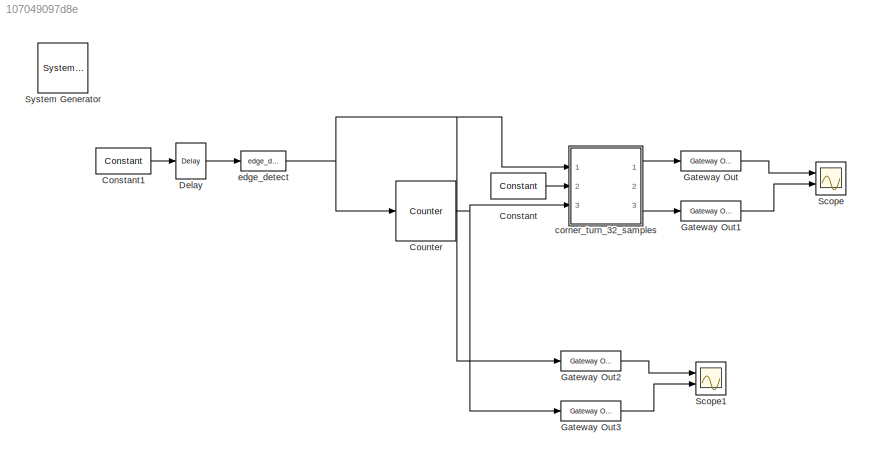
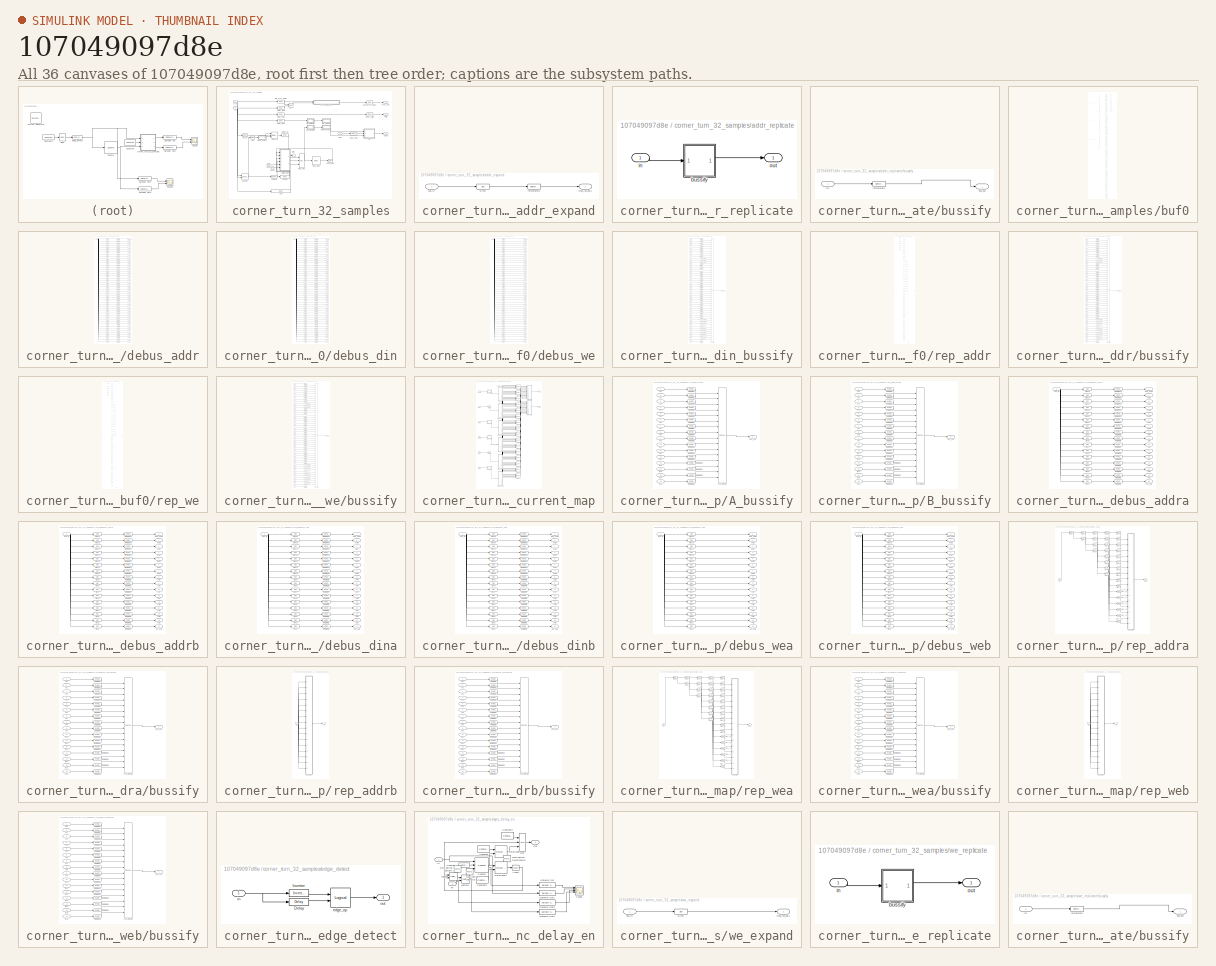
[diagram: thumbnail index - all 36 canvases of the model, root first then tree order]
MODEL slx_107049097d8e
KIND model
CONFIG AbsTol = auto
CONFIG EnableMultiTasking = off
CONFIG FixedStep = auto
CONFIG MaxStep = auto
CONFIG MinStep = auto
CONFIG RelTol = 1e-3
CONFIG SampleTimeConstraint = Unconstrained
CONFIG Solver = VariableStepDiscrete
CONFIG SolverName = VariableStepDiscrete
CONFIG StartTime = 0.0
CONFIG StopTime = 200000
BLOCK [Reference]  System Generator  REF=xbsIndex_r4/ System Generator
  AttributesFormatString = System\nGenerator
  Ports = []
  SourceBlock = xbsIndex_r4/ System Generator
  SourceType = Xilinx System Generator Block
  Tag = genX
  UserDataPersistent = on
BLOCK [Reference] Constant  REF=xbsIndex_r4/Constant
  Ports = [0, 1]
  SourceBlock = xbsIndex_r4/Constant
  SourceType = Xilinx Constant Block Block
BLOCK [Reference] Constant1  REF=xbsIndex_r4/Constant
  Ports = [0, 1]
  SourceBlock = xbsIndex_r4/Constant
  SourceType = Xilinx Constant Block Block
BLOCK [Reference] Counter  REF=xbsIndex_r4/Counter
  Ports = [1, 1]
  SourceBlock = xbsIndex_r4/Counter
  SourceType = Xilinx Counter Block
BLOCK [Reference] Delay  REF=xbsIndex_r4/Delay
  Ports = [1, 1]
  SourceBlock = xbsIndex_r4/Delay
  SourceType = Xilinx Delay Block
BLOCK [Reference] Gateway Out  REF=xbsIndex_r4/Gateway Out
  Ports = [1, 1]
  SourceBlock = xbsIndex_r4/Gateway Out
  SourceType = Xilinx Gateway Out Block
BLOCK [Reference] Gateway Out1  REF=xbsIndex_r4/Gateway Out
  Ports = [1, 1]
  SourceBlock = xbsIndex_r4/Gateway Out
  SourceType = Xilinx Gateway Out Block
BLOCK [Reference] Gateway Out2  REF=xbsIndex_r4/Gateway Out
  Ports = [1, 1]
  SourceBlock = xbsIndex_r4/Gateway Out
  SourceType = Xilinx Gateway Out Block
BLOCK [Reference] Gateway Out3  REF=xbsIndex_r4/Gateway Out
  Ports = [1, 1]
  SourceBlock = xbsIndex_r4/Gateway Out
  SourceType = Xilinx Gateway Out Block
BLOCK [Scope] Scope
  NumInputPorts = 2
  Ports = [2]
  ScopeSpecificationString = Simulink.scopes.TimeScopeBlockCfg('CurrentConfiguration', extmgr.ConfigurationSet(extmgr.Configuration('Core','General UI',true),extmgr.Configuration('Core','Source UI',true),extmgr.Configuration('Sources','WiredSimulink',true),extmgr.Configuration('Visuals','Time Domain',true,'SerializedDisplays',{struct('MinYLimReal','-0.125','MaxYLimReal','1.125','YLabelReal','','MinYLimMag','0.00000','MaxYLimM...<+2086ch>
BLOCK [Scope] Scope1
  NumInputPorts = 2
  Ports = [2]
  ScopeSpecificationString = Simulink.scopes.TimeScopeBlockCfg('CurrentConfiguration', extmgr.ConfigurationSet(extmgr.Configuration('Core','General UI',true),extmgr.Configuration('Core','Source UI',true),extmgr.Configuration('Sources','WiredSimulink',true,'DataLoggingVariableName','ScopeData1'),extmgr.Configuration('Visuals','Time Domain',true,'SerializedDisplays',{struct('MinYLimReal','-0.125','MaxYLimReal','1.125','YLabelRe...<+2124ch>
BLOCK [SubSystem] corner_turn_32_samples
  AncestorBlock = casper_library_reorder/reorder
  AttributesFormatString = order=16
  Ports = [3, 3]
  RequestExecContextInheritance = off
  UserDataPersistent = on
  Variant = off
BLOCK [Reference] corner_turn_32_samples/Counter  REF=xbsIndex_r4/Counter
  Ports = [2, 1]
  SourceBlock = xbsIndex_r4/Counter
  SourceType = Xilinx Counter Block
BLOCK [SubSystem] corner_turn_32_samples/addr_expand
  AncestorBlock = casper_library_flow_control/bus_expand
  AttributesFormatString = 1 outputs
  Ports = [1, 1]
  RequestExecContextInheritance = off
  UserDataPersistent = on
  Variant = off
BLOCK [Inport] corner_turn_32_samples/addr_expand/bus_in
  IconDisplay = Port number
BLOCK [Outport] corner_turn_32_samples/addr_expand/msb_lsb_out1
  IconDisplay = Port number
BLOCK [Reference] corner_turn_32_samples/addr_expand/reinterpret1  REF=xbsIndex_r4/Reinterpret
  Ports = [1, 1]
  SourceBlock = xbsIndex_r4/Reinterpret
  SourceType = Xilinx Type Reinterpreter Block
BLOCK [Reference] corner_turn_32_samples/addr_expand/slice1  REF=xbsIndex_r4/Slice
  Ports = [1, 1]
  SourceBlock = xbsIndex_r4/Slice
  SourceType = Xilinx Bit Slice Extractor Block
BLOCK [SubSystem] corner_turn_32_samples/addr_replicate
  AncestorBlock = casper_library_bus/bus_replicate
  Ports = [1, 1]
  RequestExecContextInheritance = off
  UserDataPersistent = on
  Variant = off
BLOCK [SubSystem] corner_turn_32_samples/addr_replicate/bussify
  AncestorBlock = casper_library_flow_control/bus_create
  Ports = [1, 1]
  RequestExecContextInheritance = off
  UserDataPersistent = on
  Variant = off
BLOCK [Outport] corner_turn_32_samples/addr_replicate/bussify/bus_out
  IconDisplay = Port number
BLOCK [Inport] corner_turn_32_samples/addr_replicate/bussify/in1
  IconDisplay = Port number
BLOCK [Reference] corner_turn_32_samples/addr_replicate/bussify/reinterpret1  REF=xbsIndex_r4/Reinterpret
  Ports = [1, 1]
  SourceBlock = xbsIndex_r4/Reinterpret
  SourceType = Xilinx Type Reinterpreter Block
BLOCK [Inport] corner_turn_32_samples/addr_replicate/in
  IconDisplay = Port number
BLOCK [Outport] corner_turn_32_samples/addr_replicate/out
  IconDisplay = Port number
BLOCK [Reference] corner_turn_32_samples/blank  REF=xbsIndex_r4/Constant
  Ports = [0, 1]
  SourceBlock = xbsIndex_r4/Constant
  SourceType = Xilinx Constant Block Block
BLOCK [SubSystem] corner_turn_32_samples/buf0
  AncestorBlock = casper_library_bus/bus_single_port_ram
  Ports = [3, 1]
  RequestExecContextInheritance = off
  UserDataPersistent = on
  Variant = off
BLOCK [Inport] corner_turn_32_samples/buf0/addr
  IconDisplay = Port number
BLOCK [Reference] corner_turn_32_samples/buf0/bram0  REF=xbsIndex_r4/Single Port RAM
  Ports = [3, 1]
  SourceBlock = xbsIndex_r4/Single Port RAM
  SourceType = Xilinx Single Port Random Access Memory Block
  UserDataPersistent = on
BLOCK [Reference] corner_turn_32_samples/buf0/bram1  REF=xbsIndex_r4/Single Port RAM
  Ports = [3, 1]
  SourceBlock = xbsIndex_r4/Single Port RAM
  SourceType = Xilinx Single Port Random Access Memory Block
  UserDataPersistent = on
BLOCK [Reference] corner_turn_32_samples/buf0/bram10  REF=xbsIndex_r4/Single Port RAM
  Ports = [3, 1]
  SourceBlock = xbsIndex_r4/Single Port RAM
  SourceType = Xilinx Single Port Random Access Memory Block
  UserDataPersistent = on
BLOCK [Reference] corner_turn_32_samples/buf0/bram11  REF=xbsIndex_r4/Single Port RAM
  Ports = [3, 1]
  SourceBlock = xbsIndex_r4/Single Port RAM
  SourceType = Xilinx Single Port Random Access Memory Block
  UserDataPersistent = on
BLOCK [Reference] corner_turn_32_samples/buf0/bram12  REF=xbsIndex_r4/Single Port RAM
  Ports = [3, 1]
  SourceBlock = xbsIndex_r4/Single Port RAM
  SourceType = Xilinx Single Port Random Access Memory Block
  UserDataPersistent = on
BLOCK [Reference] corner_turn_32_samples/buf0/bram13  REF=xbsIndex_r4/Single Port RAM
  Ports = [3, 1]
  SourceBlock = xbsIndex_r4/Single Port RAM
  SourceType = Xilinx Single Port Random Access Memory Block
  UserDataPersistent = on
BLOCK [Reference] corner_turn_32_samples/buf0/bram14  REF=xbsIndex_r4/Single Port RAM
  Ports = [3, 1]
  SourceBlock = xbsIndex_r4/Single Port RAM
  SourceType = Xilinx Single Port Random Access Memory Block
  UserDataPersistent = on
BLOCK [Reference] corner_turn_32_samples/buf0/bram15  REF=xbsIndex_r4/Single Port RAM
  Ports = [3, 1]
  SourceBlock = xbsIndex_r4/Single Port RAM
  SourceType = Xilinx Single Port Random Access Memory Block
  UserDataPersistent = on
BLOCK [Reference] corner_turn_32_samples/buf0/bram16  REF=xbsIndex_r4/Single Port RAM
  Ports = [3, 1]
  SourceBlock = xbsIndex_r4/Single Port RAM
  SourceType = Xilinx Single Port Random Access Memory Block
  UserDataPersistent = on
BLOCK [Reference] corner_turn_32_samples/buf0/bram17  REF=xbsIndex_r4/Single Port RAM
  Ports = [3, 1]
  SourceBlock = xbsIndex_r4/Single Port RAM
  SourceType = Xilinx Single Port Random Access Memory Block
  UserDataPersistent = on
BLOCK [Reference] corner_turn_32_samples/buf0/bram18  REF=xbsIndex_r4/Single Port RAM
  Ports = [3, 1]
  SourceBlock = xbsIndex_r4/Single Port RAM
  SourceType = Xilinx Single Port Random Access Memory Block
  UserDataPersistent = on
BLOCK [Reference] corner_turn_32_samples/buf0/bram19  REF=xbsIndex_r4/Single Port RAM
  Ports = [3, 1]
  SourceBlock = xbsIndex_r4/Single Port RAM
  SourceType = Xilinx Single Port Random Access Memory Block
  UserDataPersistent = on
BLOCK [Reference] corner_turn_32_samples/buf0/bram2  REF=xbsIndex_r4/Single Port RAM
  Ports = [3, 1]
  SourceBlock = xbsIndex_r4/Single Port RAM
  SourceType = Xilinx Single Port Random Access Memory Block
  UserDataPersistent = on
BLOCK [Reference] corner_turn_32_samples/buf0/bram20  REF=xbsIndex_r4/Single Port RAM
  Ports = [3, 1]
  SourceBlock = xbsIndex_r4/Single Port RAM
  SourceType = Xilinx Single Port Random Access Memory Block
  UserDataPersistent = on
BLOCK [Reference] corner_turn_32_samples/buf0/bram21  REF=xbsIndex_r4/Single Port RAM
  Ports = [3, 1]
  SourceBlock = xbsIndex_r4/Single Port RAM
  SourceType = Xilinx Single Port Random Access Memory Block
  UserDataPersistent = on
BLOCK [Reference] corner_turn_32_samples/buf0/bram22  REF=xbsIndex_r4/Single Port RAM
  Ports = [3, 1]
  SourceBlock = xbsIndex_r4/Single Port RAM
  SourceType = Xilinx Single Port Random Access Memory Block
  UserDataPersistent = on
BLOCK [Reference] corner_turn_32_samples/buf0/bram23  REF=xbsIndex_r4/Single Port RAM
  Ports = [3, 1]
  SourceBlock = xbsIndex_r4/Single Port RAM
  SourceType = Xilinx Single Port Random Access Memory Block
  UserDataPersistent = on
BLOCK [Reference] corner_turn_32_samples/buf0/bram24  REF=xbsIndex_r4/Single Port RAM
  Ports = [3, 1]
  SourceBlock = xbsIndex_r4/Single Port RAM
  SourceType = Xilinx Single Port Random Access Memory Block
  UserDataPersistent = on
BLOCK [Reference] corner_turn_32_samples/buf0/bram25  REF=xbsIndex_r4/Single Port RAM
  Ports = [3, 1]
  SourceBlock = xbsIndex_r4/Single Port RAM
  SourceType = Xilinx Single Port Random Access Memory Block
  UserDataPersistent = on
BLOCK [Reference] corner_turn_32_samples/buf0/bram26  REF=xbsIndex_r4/Single Port RAM
  Ports = [3, 1]
  SourceBlock = xbsIndex_r4/Single Port RAM
  SourceType = Xilinx Single Port Random Access Memory Block
  UserDataPersistent = on
BLOCK [Reference] corner_turn_32_samples/buf0/bram27  REF=xbsIndex_r4/Single Port RAM
  Ports = [3, 1]
  SourceBlock = xbsIndex_r4/Single Port RAM
  SourceType = Xilinx Single Port Random Access Memory Block
  UserDataPersistent = on
BLOCK [Reference] corner_turn_32_samples/buf0/bram28  REF=xbsIndex_r4/Single Port RAM
  Ports = [3, 1]
  SourceBlock = xbsIndex_r4/Single Port RAM
  SourceType = Xilinx Single Port Random Access Memory Block
  UserDataPersistent = on
BLOCK [Reference] corner_turn_32_samples/buf0/bram29  REF=xbsIndex_r4/Single Port RAM
  Ports = [3, 1]
  SourceBlock = xbsIndex_r4/Single Port RAM
  SourceType = Xilinx Single Port Random Access Memory Block
  UserDataPersistent = on
BLOCK [Reference] corner_turn_32_samples/buf0/bram3  REF=xbsIndex_r4/Single Port RAM
  Ports = [3, 1]
  SourceBlock = xbsIndex_r4/Single Port RAM
  SourceType = Xilinx Single Port Random Access Memory Block
  UserDataPersistent = on
BLOCK [Reference] corner_turn_32_samples/buf0/bram30  REF=xbsIndex_r4/Single Port RAM
  Ports = [3, 1]
  SourceBlock = xbsIndex_r4/Single Port RAM
  SourceType = Xilinx Single Port Random Access Memory Block
  UserDataPersistent = on
BLOCK [Reference] corner_turn_32_samples/buf0/bram31  REF=xbsIndex_r4/Single Port RAM
  Ports = [3, 1]
  SourceBlock = xbsIndex_r4/Single Port RAM
  SourceType = Xilinx Single Port Random Access Memory Block
  UserDataPersistent = on
BLOCK [Reference] corner_turn_32_samples/buf0/bram32  REF=xbsIndex_r4/Single Port RAM
  Ports = [3, 1]
  SourceBlock = xbsIndex_r4/Single Port RAM
  SourceType = Xilinx Single Port Random Access Memory Block
  UserDataPersistent = on
BLOCK [Reference] corner_turn_32_samples/buf0/bram33  REF=xbsIndex_r4/Single Port RAM
  Ports = [3, 1]
  SourceBlock = xbsIndex_r4/Single Port RAM
  SourceType = Xilinx Single Port Random Access Memory Block
  UserDataPersistent = on
BLOCK [Reference] corner_turn_32_samples/buf0/bram34  REF=xbsIndex_r4/Single Port RAM
  Ports = [3, 1]
  SourceBlock = xbsIndex_r4/Single Port RAM
  SourceType = Xilinx Single Port Random Access Memory Block
  UserDataPersistent = on
BLOCK [Reference] corner_turn_32_samples/buf0/bram35  REF=xbsIndex_r4/Single Port RAM
  Ports = [3, 1]
  SourceBlock = xbsIndex_r4/Single Port RAM
  SourceType = Xilinx Single Port Random Access Memory Block
  UserDataPersistent = on
BLOCK [Reference] corner_turn_32_samples/buf0/bram36  REF=xbsIndex_r4/Single Port RAM
  Ports = [3, 1]
  SourceBlock = xbsIndex_r4/Single Port RAM
  SourceType = Xilinx Single Port Random Access Memory Block
  UserDataPersistent = on
BLOCK [Reference] corner_turn_32_samples/buf0/bram37  REF=xbsIndex_r4/Single Port RAM
  Ports = [3, 1]
  SourceBlock = xbsIndex_r4/Single Port RAM
  SourceType = Xilinx Single Port Random Access Memory Block
  UserDataPersistent = on
BLOCK [Reference] corner_turn_32_samples/buf0/bram38  REF=xbsIndex_r4/Single Port RAM
  Ports = [3, 1]
  SourceBlock = xbsIndex_r4/Single Port RAM
  SourceType = Xilinx Single Port Random Access Memory Block
  UserDataPersistent = on
BLOCK [Reference] corner_turn_32_samples/buf0/bram39  REF=xbsIndex_r4/Single Port RAM
  Ports = [3, 1]
  SourceBlock = xbsIndex_r4/Single Port RAM
  SourceType = Xilinx Single Port Random Access Memory Block
  UserDataPersistent = on
BLOCK [Reference] corner_turn_32_samples/buf0/bram4  REF=xbsIndex_r4/Single Port RAM
  Ports = [3, 1]
  SourceBlock = xbsIndex_r4/Single Port RAM
  SourceType = Xilinx Single Port Random Access Memory Block
  UserDataPersistent = on
BLOCK [Reference] corner_turn_32_samples/buf0/bram40  REF=xbsIndex_r4/Single Port RAM
  Ports = [3, 1]
  SourceBlock = xbsIndex_r4/Single Port RAM
  SourceType = Xilinx Single Port Random Access Memory Block
  UserDataPersistent = on
BLOCK [Reference] corner_turn_32_samples/buf0/bram41  REF=xbsIndex_r4/Single Port RAM
  Ports = [3, 1]
  SourceBlock = xbsIndex_r4/Single Port RAM
  SourceType = Xilinx Single Port Random Access Memory Block
  UserDataPersistent = on
BLOCK [Reference] corner_turn_32_samples/buf0/bram42  REF=xbsIndex_r4/Single Port RAM
  Ports = [3, 1]
  SourceBlock = xbsIndex_r4/Single Port RAM
  SourceType = Xilinx Single Port Random Access Memory Block
  UserDataPersistent = on
BLOCK [Reference] corner_turn_32_samples/buf0/bram43  REF=xbsIndex_r4/Single Port RAM
  Ports = [3, 1]
  SourceBlock = xbsIndex_r4/Single Port RAM
  SourceType = Xilinx Single Port Random Access Memory Block
  UserDataPersistent = on
BLOCK [Reference] corner_turn_32_samples/buf0/bram44  REF=xbsIndex_r4/Single Port RAM
  Ports = [3, 1]
  SourceBlock = xbsIndex_r4/Single Port RAM
  SourceType = Xilinx Single Port Random Access Memory Block
  UserDataPersistent = on
BLOCK [Reference] corner_turn_32_samples/buf0/bram45  REF=xbsIndex_r4/Single Port RAM
  Ports = [3, 1]
  SourceBlock = xbsIndex_r4/Single Port RAM
  SourceType = Xilinx Single Port Random Access Memory Block
  UserDataPersistent = on
BLOCK [Reference] corner_turn_32_samples/buf0/bram46  REF=xbsIndex_r4/Single Port RAM
  Ports = [3, 1]
  SourceBlock = xbsIndex_r4/Single Port RAM
  SourceType = Xilinx Single Port Random Access Memory Block
  UserDataPersistent = on
BLOCK [Reference] corner_turn_32_samples/buf0/bram47  REF=xbsIndex_r4/Single Port RAM
  Ports = [3, 1]
  SourceBlock = xbsIndex_r4/Single Port RAM
  SourceType = Xilinx Single Port Random Access Memory Block
  UserDataPersistent = on
BLOCK [Reference] corner_turn_32_samples/buf0/bram5  REF=xbsIndex_r4/Single Port RAM
  Ports = [3, 1]
  SourceBlock = xbsIndex_r4/Single Port RAM
  SourceType = Xilinx Single Port Random Access Memory Block
  UserDataPersistent = on
BLOCK [Reference] corner_turn_32_samples/buf0/bram6  REF=xbsIndex_r4/Single Port RAM
  Ports = [3, 1]
  SourceBlock = xbsIndex_r4/Single Port RAM
  SourceType = Xilinx Single Port Random Access Memory Block
  UserDataPersistent = on
BLOCK [Reference] corner_turn_32_samples/buf0/bram7  REF=xbsIndex_r4/Single Port RAM
  Ports = [3, 1]
  SourceBlock = xbsIndex_r4/Single Port RAM
  SourceType = Xilinx Single Port Random Access Memory Block
  UserDataPersistent = on
BLOCK [Reference] corner_turn_32_samples/buf0/bram8  REF=xbsIndex_r4/Single Port RAM
  Ports = [3, 1]
  SourceBlock = xbsIndex_r4/Single Port RAM
  SourceType = Xilinx Single Port Random Access Memory Block
  UserDataPersistent = on
BLOCK [Reference] corner_turn_32_samples/buf0/bram9  REF=xbsIndex_r4/Single Port RAM
  Ports = [3, 1]
  SourceBlock = xbsIndex_r4/Single Port RAM
  SourceType = Xilinx Single Port Random Access Memory Block
  UserDataPersistent = on
BLOCK [Reference] corner_turn_32_samples/buf0/ddin  REF=xbsIndex_r4/Delay
  Ports = [1, 1]
  SourceBlock = xbsIndex_r4/Delay
  SourceType = Xilinx Delay Block
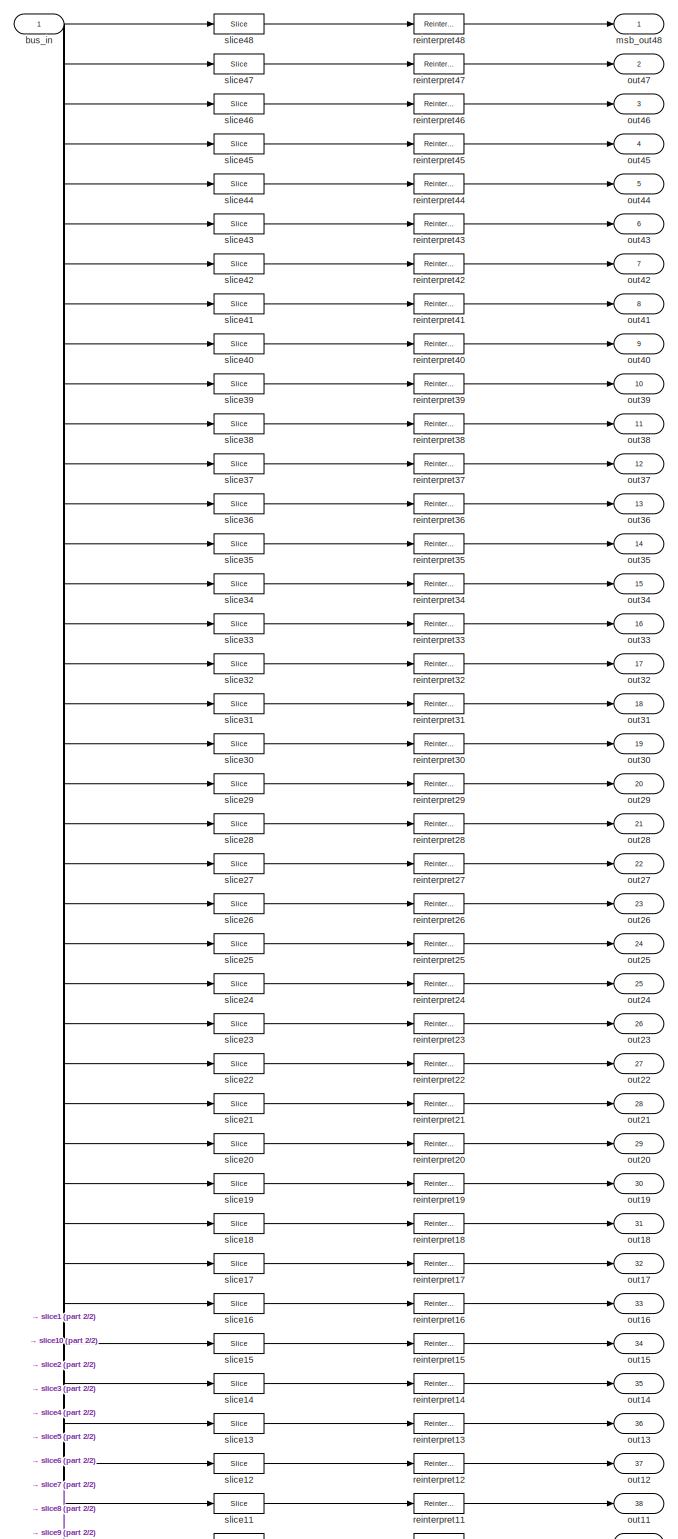
[diagram: corner_turn_32_samples/buf0/debus_addr - part 1/2, most of the canvas]
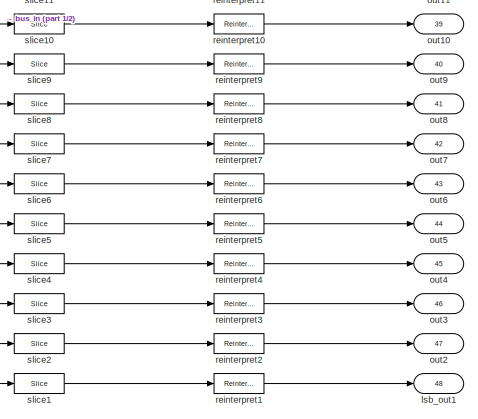
[diagram: corner_turn_32_samples/buf0/debus_addr - part 2/2, bottom center region]
BLOCK [SubSystem] corner_turn_32_samples/buf0/debus_addr
  AncestorBlock = casper_library_flow_control/bus_expand
  AttributesFormatString = 48 outputs: uf16.0,uf16.0,uf16.0,uf16.0,uf16.0,uf16.0,uf16.0,uf16.0,uf16.0,uf16.0,uf16.0,uf16.0,uf16.0,uf16.0,uf16.0,uf16.0,uf16.0,uf16.0,uf16.0,uf16.0,uf16.0,uf16.0,uf16.0,uf16.0,uf16.0,uf16.0,uf16.0,uf16.0,uf16.0,uf16.0,uf16.0,uf16.0,uf16.0,uf16.0,uf16.0,uf16.0,uf16.0,uf16.0,uf16.0,uf16.0,uf16.0,uf16.0,uf16.0,uf16.0,uf16.0,uf16.0,uf16.0,uf16.0,
  Ports = [1, 48]
  RequestExecContextInheritance = off
  UserDataPersistent = on
  Variant = off
BLOCK [Inport] corner_turn_32_samples/buf0/debus_addr/bus_in
  IconDisplay = Port number
BLOCK [Outport] corner_turn_32_samples/buf0/debus_addr/lsb_out1
  IconDisplay = Port number
  Port = 48
BLOCK [Outport] corner_turn_32_samples/buf0/debus_addr/msb_out48
  IconDisplay = Port number
BLOCK [Outport] corner_turn_32_samples/buf0/debus_addr/out10
  IconDisplay = Port number
  Port = 39
BLOCK [Outport] corner_turn_32_samples/buf0/debus_addr/out11
  IconDisplay = Port number
  Port = 38
BLOCK [Outport] corner_turn_32_samples/buf0/debus_addr/out12
  IconDisplay = Port number
  Port = 37
BLOCK [Outport] corner_turn_32_samples/buf0/debus_addr/out13
  IconDisplay = Port number
  Port = 36
BLOCK [Outport] corner_turn_32_samples/buf0/debus_addr/out14
  IconDisplay = Port number
  Port = 35
BLOCK [Outport] corner_turn_32_samples/buf0/debus_addr/out15
  IconDisplay = Port number
  Port = 34
BLOCK [Outport] corner_turn_32_samples/buf0/debus_addr/out16
  IconDisplay = Port number
  Port = 33
BLOCK [Outport] corner_turn_32_samples/buf0/debus_addr/out17
  IconDisplay = Port number
  Port = 32
BLOCK [Outport] corner_turn_32_samples/buf0/debus_addr/out18
  IconDisplay = Port number
  Port = 31
BLOCK [Outport] corner_turn_32_samples/buf0/debus_addr/out19
  IconDisplay = Port number
  Port = 30
BLOCK [Outport] corner_turn_32_samples/buf0/debus_addr/out2
  IconDisplay = Port number
  Port = 47
BLOCK [Outport] corner_turn_32_samples/buf0/debus_addr/out20
  IconDisplay = Port number
  Port = 29
BLOCK [Outport] corner_turn_32_samples/buf0/debus_addr/out21
  IconDisplay = Port number
  Port = 28
BLOCK [Outport] corner_turn_32_samples/buf0/debus_addr/out22
  IconDisplay = Port number
  Port = 27
BLOCK [Outport] corner_turn_32_samples/buf0/debus_addr/out23
  IconDisplay = Port number
  Port = 26
BLOCK [Outport] corner_turn_32_samples/buf0/debus_addr/out24
  IconDisplay = Port number
  Port = 25
BLOCK [Outport] corner_turn_32_samples/buf0/debus_addr/out25
  IconDisplay = Port number
  Port = 24
BLOCK [Outport] corner_turn_32_samples/buf0/debus_addr/out26
  IconDisplay = Port number
  Port = 23
BLOCK [Outport] corner_turn_32_samples/buf0/debus_addr/out27
  IconDisplay = Port number
  Port = 22
BLOCK [Outport] corner_turn_32_samples/buf0/debus_addr/out28
  IconDisplay = Port number
  Port = 21
BLOCK [Outport] corner_turn_32_samples/buf0/debus_addr/out29
  IconDisplay = Port number
  Port = 20
BLOCK [Outport] corner_turn_32_samples/buf0/debus_addr/out3
  IconDisplay = Port number
  Port = 46
BLOCK [Outport] corner_turn_32_samples/buf0/debus_addr/out30
  IconDisplay = Port number
  Port = 19
BLOCK [Outport] corner_turn_32_samples/buf0/debus_addr/out31
  IconDisplay = Port number
  Port = 18
BLOCK [Outport] corner_turn_32_samples/buf0/debus_addr/out32
  IconDisplay = Port number
  Port = 17
BLOCK [Outport] corner_turn_32_samples/buf0/debus_addr/out33
  IconDisplay = Port number
  Port = 16
BLOCK [Outport] corner_turn_32_samples/buf0/debus_addr/out34
  IconDisplay = Port number
  Port = 15
BLOCK [Outport] corner_turn_32_samples/buf0/debus_addr/out35
  IconDisplay = Port number
  Port = 14
BLOCK [Outport] corner_turn_32_samples/buf0/debus_addr/out36
  IconDisplay = Port number
  Port = 13
BLOCK [Outport] corner_turn_32_samples/buf0/debus_addr/out37
  IconDisplay = Port number
  Port = 12
BLOCK [Outport] corner_turn_32_samples/buf0/debus_addr/out38
  IconDisplay = Port number
  Port = 11
BLOCK [Outport] corner_turn_32_samples/buf0/debus_addr/out39
  IconDisplay = Port number
  Port = 10
BLOCK [Outport] corner_turn_32_samples/buf0/debus_addr/out4
  IconDisplay = Port number
  Port = 45
BLOCK [Outport] corner_turn_32_samples/buf0/debus_addr/out40
  IconDisplay = Port number
  Port = 9
BLOCK [Outport] corner_turn_32_samples/buf0/debus_addr/out41
  IconDisplay = Port number
  Port = 8
BLOCK [Outport] corner_turn_32_samples/buf0/debus_addr/out42
  IconDisplay = Port number
  Port = 7
BLOCK [Outport] corner_turn_32_samples/buf0/debus_addr/out43
  IconDisplay = Port number
  Port = 6
BLOCK [Outport] corner_turn_32_samples/buf0/debus_addr/out44
  IconDisplay = Port number
  Port = 5
BLOCK [Outport] corner_turn_32_samples/buf0/debus_addr/out45
  IconDisplay = Port number
  Port = 4
BLOCK [Outport] corner_turn_32_samples/buf0/debus_addr/out46
  IconDisplay = Port number
  Port = 3
BLOCK [Outport] corner_turn_32_samples/buf0/debus_addr/out47
  IconDisplay = Port number
  Port = 2
BLOCK [Outport] corner_turn_32_samples/buf0/debus_addr/out5
  IconDisplay = Port number
  Port = 44
BLOCK [Outport] corner_turn_32_samples/buf0/debus_addr/out6
  IconDisplay = Port number
  Port = 43
BLOCK [Outport] corner_turn_32_samples/buf0/debus_addr/out7
  IconDisplay = Port number
  Port = 42
BLOCK [Outport] corner_turn_32_samples/buf0/debus_addr/out8
  IconDisplay = Port number
  Port = 41
BLOCK [Outport] corner_turn_32_samples/buf0/debus_addr/out9
  IconDisplay = Port number
  Port = 40
BLOCK [Reference] corner_turn_32_samples/buf0/debus_addr/reinterpret1  REF=xbsIndex_r4/Reinterpret
  Ports = [1, 1]
  SourceBlock = xbsIndex_r4/Reinterpret
  SourceType = Xilinx Type Reinterpreter Block
BLOCK [Reference] corner_turn_32_samples/buf0/debus_addr/reinterpret10  REF=xbsIndex_r4/Reinterpret
  Ports = [1, 1]
  SourceBlock = xbsIndex_r4/Reinterpret
  SourceType = Xilinx Type Reinterpreter Block
BLOCK [Reference] corner_turn_32_samples/buf0/debus_addr/reinterpret11  REF=xbsIndex_r4/Reinterpret
  Ports = [1, 1]
  SourceBlock = xbsIndex_r4/Reinterpret
  SourceType = Xilinx Type Reinterpreter Block
BLOCK [Reference] corner_turn_32_samples/buf0/debus_addr/reinterpret12  REF=xbsIndex_r4/Reinterpret
  Ports = [1, 1]
  SourceBlock = xbsIndex_r4/Reinterpret
  SourceType = Xilinx Type Reinterpreter Block
BLOCK [Reference] corner_turn_32_samples/buf0/debus_addr/reinterpret13  REF=xbsIndex_r4/Reinterpret
  Ports = [1, 1]
  SourceBlock = xbsIndex_r4/Reinterpret
  SourceType = Xilinx Type Reinterpreter Block
BLOCK [Reference] corner_turn_32_samples/buf0/debus_addr/reinterpret14  REF=xbsIndex_r4/Reinterpret
  Ports = [1, 1]
  SourceBlock = xbsIndex_r4/Reinterpret
  SourceType = Xilinx Type Reinterpreter Block
BLOCK [Reference] corner_turn_32_samples/buf0/debus_addr/reinterpret15  REF=xbsIndex_r4/Reinterpret
  Ports = [1, 1]
  SourceBlock = xbsIndex_r4/Reinterpret
  SourceType = Xilinx Type Reinterpreter Block
BLOCK [Reference] corner_turn_32_samples/buf0/debus_addr/reinterpret16  REF=xbsIndex_r4/Reinterpret
  Ports = [1, 1]
  SourceBlock = xbsIndex_r4/Reinterpret
  SourceType = Xilinx Type Reinterpreter Block
BLOCK [Reference] corner_turn_32_samples/buf0/debus_addr/reinterpret17  REF=xbsIndex_r4/Reinterpret
  Ports = [1, 1]
  SourceBlock = xbsIndex_r4/Reinterpret
  SourceType = Xilinx Type Reinterpreter Block
BLOCK [Reference] corner_turn_32_samples/buf0/debus_addr/reinterpret18  REF=xbsIndex_r4/Reinterpret
  Ports = [1, 1]
  SourceBlock = xbsIndex_r4/Reinterpret
  SourceType = Xilinx Type Reinterpreter Block
BLOCK [Reference] corner_turn_32_samples/buf0/debus_addr/reinterpret19  REF=xbsIndex_r4/Reinterpret
  Ports = [1, 1]
  SourceBlock = xbsIndex_r4/Reinterpret
  SourceType = Xilinx Type Reinterpreter Block
BLOCK [Reference] corner_turn_32_samples/buf0/debus_addr/reinterpret2  REF=xbsIndex_r4/Reinterpret
  Ports = [1, 1]
  SourceBlock = xbsIndex_r4/Reinterpret
  SourceType = Xilinx Type Reinterpreter Block
BLOCK [Reference] corner_turn_32_samples/buf0/debus_addr/reinterpret20  REF=xbsIndex_r4/Reinterpret
  Ports = [1, 1]
  SourceBlock = xbsIndex_r4/Reinterpret
  SourceType = Xilinx Type Reinterpreter Block
BLOCK [Reference] corner_turn_32_samples/buf0/debus_addr/reinterpret21  REF=xbsIndex_r4/Reinterpret
  Ports = [1, 1]
  SourceBlock = xbsIndex_r4/Reinterpret
  SourceType = Xilinx Type Reinterpreter Block
BLOCK [Reference] corner_turn_32_samples/buf0/debus_addr/reinterpret22  REF=xbsIndex_r4/Reinterpret
  Ports = [1, 1]
  SourceBlock = xbsIndex_r4/Reinterpret
  SourceType = Xilinx Type Reinterpreter Block
BLOCK [Reference] corner_turn_32_samples/buf0/debus_addr/reinterpret23  REF=xbsIndex_r4/Reinterpret
  Ports = [1, 1]
  SourceBlock = xbsIndex_r4/Reinterpret
  SourceType = Xilinx Type Reinterpreter Block
BLOCK [Reference] corner_turn_32_samples/buf0/debus_addr/reinterpret24  REF=xbsIndex_r4/Reinterpret
  Ports = [1, 1]
  SourceBlock = xbsIndex_r4/Reinterpret
  SourceType = Xilinx Type Reinterpreter Block
BLOCK [Reference] corner_turn_32_samples/buf0/debus_addr/reinterpret25  REF=xbsIndex_r4/Reinterpret
  Ports = [1, 1]
  SourceBlock = xbsIndex_r4/Reinterpret
  SourceType = Xilinx Type Reinterpreter Block
BLOCK [Reference] corner_turn_32_samples/buf0/debus_addr/reinterpret26  REF=xbsIndex_r4/Reinterpret
  Ports = [1, 1]
  SourceBlock = xbsIndex_r4/Reinterpret
  SourceType = Xilinx Type Reinterpreter Block
BLOCK [Reference] corner_turn_32_samples/buf0/debus_addr/reinterpret27  REF=xbsIndex_r4/Reinterpret
  Ports = [1, 1]
  SourceBlock = xbsIndex_r4/Reinterpret
  SourceType = Xilinx Type Reinterpreter Block
BLOCK [Reference] corner_turn_32_samples/buf0/debus_addr/reinterpret28  REF=xbsIndex_r4/Reinterpret
  Ports = [1, 1]
  SourceBlock = xbsIndex_r4/Reinterpret
  SourceType = Xilinx Type Reinterpreter Block
BLOCK [Reference] corner_turn_32_samples/buf0/debus_addr/reinterpret29  REF=xbsIndex_r4/Reinterpret
  Ports = [1, 1]
  SourceBlock = xbsIndex_r4/Reinterpret
  SourceType = Xilinx Type Reinterpreter Block
BLOCK [Reference] corner_turn_32_samples/buf0/debus_addr/reinterpret3  REF=xbsIndex_r4/Reinterpret
  Ports = [1, 1]
  SourceBlock = xbsIndex_r4/Reinterpret
  SourceType = Xilinx Type Reinterpreter Block
BLOCK [Reference] corner_turn_32_samples/buf0/debus_addr/reinterpret30  REF=xbsIndex_r4/Reinterpret
  Ports = [1, 1]
  SourceBlock = xbsIndex_r4/Reinterpret
  SourceType = Xilinx Type Reinterpreter Block
BLOCK [Reference] corner_turn_32_samples/buf0/debus_addr/reinterpret31  REF=xbsIndex_r4/Reinterpret
  Ports = [1, 1]
  SourceBlock = xbsIndex_r4/Reinterpret
  SourceType = Xilinx Type Reinterpreter Block
BLOCK [Reference] corner_turn_32_samples/buf0/debus_addr/reinterpret32  REF=xbsIndex_r4/Reinterpret
  Ports = [1, 1]
  SourceBlock = xbsIndex_r4/Reinterpret
  SourceType = Xilinx Type Reinterpreter Block
BLOCK [Reference] corner_turn_32_samples/buf0/debus_addr/reinterpret33  REF=xbsIndex_r4/Reinterpret
  Ports = [1, 1]
  SourceBlock = xbsIndex_r4/Reinterpret
  SourceType = Xilinx Type Reinterpreter Block
BLOCK [Reference] corner_turn_32_samples/buf0/debus_addr/reinterpret34  REF=xbsIndex_r4/Reinterpret
  Ports = [1, 1]
  SourceBlock = xbsIndex_r4/Reinterpret
  SourceType = Xilinx Type Reinterpreter Block
BLOCK [Reference] corner_turn_32_samples/buf0/debus_addr/reinterpret35  REF=xbsIndex_r4/Reinterpret
  Ports = [1, 1]
  SourceBlock = xbsIndex_r4/Reinterpret
  SourceType = Xilinx Type Reinterpreter Block
BLOCK [Reference] corner_turn_32_samples/buf0/debus_addr/reinterpret36  REF=xbsIndex_r4/Reinterpret
  Ports = [1, 1]
  SourceBlock = xbsIndex_r4/Reinterpret
  SourceType = Xilinx Type Reinterpreter Block
BLOCK [Reference] corner_turn_32_samples/buf0/debus_addr/reinterpret37  REF=xbsIndex_r4/Reinterpret
  Ports = [1, 1]
  SourceBlock = xbsIndex_r4/Reinterpret
  SourceType = Xilinx Type Reinterpreter Block
BLOCK [Reference] corner_turn_32_samples/buf0/debus_addr/reinterpret38  REF=xbsIndex_r4/Reinterpret
  Ports = [1, 1]
  SourceBlock = xbsIndex_r4/Reinterpret
  SourceType = Xilinx Type Reinterpreter Block
BLOCK [Reference] corner_turn_32_samples/buf0/debus_addr/reinterpret39  REF=xbsIndex_r4/Reinterpret
  Ports = [1, 1]
  SourceBlock = xbsIndex_r4/Reinterpret
  SourceType = Xilinx Type Reinterpreter Block
BLOCK [Reference] corner_turn_32_samples/buf0/debus_addr/reinterpret4  REF=xbsIndex_r4/Reinterpret
  Ports = [1, 1]
  SourceBlock = xbsIndex_r4/Reinterpret
  SourceType = Xilinx Type Reinterpreter Block
BLOCK [Reference] corner_turn_32_samples/buf0/debus_addr/reinterpret40  REF=xbsIndex_r4/Reinterpret
  Ports = [1, 1]
  SourceBlock = xbsIndex_r4/Reinterpret
  SourceType = Xilinx Type Reinterpreter Block
BLOCK [Reference] corner_turn_32_samples/buf0/debus_addr/reinterpret41  REF=xbsIndex_r4/Reinterpret
  Ports = [1, 1]
  SourceBlock = xbsIndex_r4/Reinterpret
  SourceType = Xilinx Type Reinterpreter Block
BLOCK [Reference] corner_turn_32_samples/buf0/debus_addr/reinterpret42  REF=xbsIndex_r4/Reinterpret
  Ports = [1, 1]
  SourceBlock = xbsIndex_r4/Reinterpret
  SourceType = Xilinx Type Reinterpreter Block
BLOCK [Reference] corner_turn_32_samples/buf0/debus_addr/reinterpret43  REF=xbsIndex_r4/Reinterpret
  Ports = [1, 1]
  SourceBlock = xbsIndex_r4/Reinterpret
  SourceType = Xilinx Type Reinterpreter Block
BLOCK [Reference] corner_turn_32_samples/buf0/debus_addr/reinterpret44  REF=xbsIndex_r4/Reinterpret
  Ports = [1, 1]
  SourceBlock = xbsIndex_r4/Reinterpret
  SourceType = Xilinx Type Reinterpreter Block
BLOCK [Reference] corner_turn_32_samples/buf0/debus_addr/reinterpret45  REF=xbsIndex_r4/Reinterpret
  Ports = [1, 1]
  SourceBlock = xbsIndex_r4/Reinterpret
  SourceType = Xilinx Type Reinterpreter Block
BLOCK [Reference] corner_turn_32_samples/buf0/debus_addr/reinterpret46  REF=xbsIndex_r4/Reinterpret
  Ports = [1, 1]
  SourceBlock = xbsIndex_r4/Reinterpret
  SourceType = Xilinx Type Reinterpreter Block
BLOCK [Reference] corner_turn_32_samples/buf0/debus_addr/reinterpret47  REF=xbsIndex_r4/Reinterpret
  Ports = [1, 1]
  SourceBlock = xbsIndex_r4/Reinterpret
  SourceType = Xilinx Type Reinterpreter Block
BLOCK [Reference] corner_turn_32_samples/buf0/debus_addr/reinterpret48  REF=xbsIndex_r4/Reinterpret
  Ports = [1, 1]
  SourceBlock = xbsIndex_r4/Reinterpret
  SourceType = Xilinx Type Reinterpreter Block
BLOCK [Reference] corner_turn_32_samples/buf0/debus_addr/reinterpret5  REF=xbsIndex_r4/Reinterpret
  Ports = [1, 1]
  SourceBlock = xbsIndex_r4/Reinterpret
  SourceType = Xilinx Type Reinterpreter Block
BLOCK [Reference] corner_turn_32_samples/buf0/debus_addr/reinterpret6  REF=xbsIndex_r4/Reinterpret
  Ports = [1, 1]
  SourceBlock = xbsIndex_r4/Reinterpret
  SourceType = Xilinx Type Reinterpreter Block
BLOCK [Reference] corner_turn_32_samples/buf0/debus_addr/reinterpret7  REF=xbsIndex_r4/Reinterpret
  Ports = [1, 1]
  SourceBlock = xbsIndex_r4/Reinterpret
  SourceType = Xilinx Type Reinterpreter Block
BLOCK [Reference] corner_turn_32_samples/buf0/debus_addr/reinterpret8  REF=xbsIndex_r4/Reinterpret
  Ports = [1, 1]
  SourceBlock = xbsIndex_r4/Reinterpret
  SourceType = Xilinx Type Reinterpreter Block
BLOCK [Reference] corner_turn_32_samples/buf0/debus_addr/reinterpret9  REF=xbsIndex_r4/Reinterpret
  Ports = [1, 1]
  SourceBlock = xbsIndex_r4/Reinterpret
  SourceType = Xilinx Type Reinterpreter Block
BLOCK [Reference] corner_turn_32_samples/buf0/debus_addr/slice1  REF=xbsIndex_r4/Slice
  Ports = [1, 1]
  SourceBlock = xbsIndex_r4/Slice
  SourceType = Xilinx Bit Slice Extractor Block
BLOCK [Reference] corner_turn_32_samples/buf0/debus_addr/slice10  REF=xbsIndex_r4/Slice
  Ports = [1, 1]
  SourceBlock = xbsIndex_r4/Slice
  SourceType = Xilinx Bit Slice Extractor Block
BLOCK [Reference] corner_turn_32_samples/buf0/debus_addr/slice11  REF=xbsIndex_r4/Slice
  Ports = [1, 1]
  SourceBlock = xbsIndex_r4/Slice
  SourceType = Xilinx Bit Slice Extractor Block
BLOCK [Reference] corner_turn_32_samples/buf0/debus_addr/slice12  REF=xbsIndex_r4/Slice
  Ports = [1, 1]
  SourceBlock = xbsIndex_r4/Slice
  SourceType = Xilinx Bit Slice Extractor Block
BLOCK [Reference] corner_turn_32_samples/buf0/debus_addr/slice13  REF=xbsIndex_r4/Slice
  Ports = [1, 1]
  SourceBlock = xbsIndex_r4/Slice
  SourceType = Xilinx Bit Slice Extractor Block
BLOCK [Reference] corner_turn_32_samples/buf0/debus_addr/slice14  REF=xbsIndex_r4/Slice
  Ports = [1, 1]
  SourceBlock = xbsIndex_r4/Slice
  SourceType = Xilinx Bit Slice Extractor Block
BLOCK [Reference] corner_turn_32_samples/buf0/debus_addr/slice15  REF=xbsIndex_r4/Slice
  Ports = [1, 1]
  SourceBlock = xbsIndex_r4/Slice
  SourceType = Xilinx Bit Slice Extractor Block
BLOCK [Reference] corner_turn_32_samples/buf0/debus_addr/slice16  REF=xbsIndex_r4/Slice
  Ports = [1, 1]
  SourceBlock = xbsIndex_r4/Slice
  SourceType = Xilinx Bit Slice Extractor Block
BLOCK [Reference] corner_turn_32_samples/buf0/debus_addr/slice17  REF=xbsIndex_r4/Slice
  Ports = [1, 1]
  SourceBlock = xbsIndex_r4/Slice
  SourceType = Xilinx Bit Slice Extractor Block
BLOCK [Reference] corner_turn_32_samples/buf0/debus_addr/slice18  REF=xbsIndex_r4/Slice
  Ports = [1, 1]
  SourceBlock = xbsIndex_r4/Slice
  SourceType = Xilinx Bit Slice Extractor Block
BLOCK [Reference] corner_turn_32_samples/buf0/debus_addr/slice19  REF=xbsIndex_r4/Slice
  Ports = [1, 1]
  SourceBlock = xbsIndex_r4/Slice
  SourceType = Xilinx Bit Slice Extractor Block
BLOCK [Reference] corner_turn_32_samples/buf0/debus_addr/slice2  REF=xbsIndex_r4/Slice
  Ports = [1, 1]
  SourceBlock = xbsIndex_r4/Slice
  SourceType = Xilinx Bit Slice Extractor Block
BLOCK [Reference] corner_turn_32_samples/buf0/debus_addr/slice20  REF=xbsIndex_r4/Slice
  Ports = [1, 1]
  SourceBlock = xbsIndex_r4/Slice
  SourceType = Xilinx Bit Slice Extractor Block
BLOCK [Reference] corner_turn_32_samples/buf0/debus_addr/slice21  REF=xbsIndex_r4/Slice
  Ports = [1, 1]
  SourceBlock = xbsIndex_r4/Slice
  SourceType = Xilinx Bit Slice Extractor Block
BLOCK [Reference] corner_turn_32_samples/buf0/debus_addr/slice22  REF=xbsIndex_r4/Slice
  Ports = [1, 1]
  SourceBlock = xbsIndex_r4/Slice
  SourceType = Xilinx Bit Slice Extractor Block
BLOCK [Reference] corner_turn_32_samples/buf0/debus_addr/slice23  REF=xbsIndex_r4/Slice
  Ports = [1, 1]
  SourceBlock = xbsIndex_r4/Slice
  SourceType = Xilinx Bit Slice Extractor Block
BLOCK [Reference] corner_turn_32_samples/buf0/debus_addr/slice24  REF=xbsIndex_r4/Slice
  Ports = [1, 1]
  SourceBlock = xbsIndex_r4/Slice
  SourceType = Xilinx Bit Slice Extractor Block
BLOCK [Reference] corner_turn_32_samples/buf0/debus_addr/slice25  REF=xbsIndex_r4/Slice
  Ports = [1, 1]
  SourceBlock = xbsIndex_r4/Slice
  SourceType = Xilinx Bit Slice Extractor Block
BLOCK [Reference] corner_turn_32_samples/buf0/debus_addr/slice26  REF=xbsIndex_r4/Slice
  Ports = [1, 1]
  SourceBlock = xbsIndex_r4/Slice
  SourceType = Xilinx Bit Slice Extractor Block
BLOCK [Reference] corner_turn_32_samples/buf0/debus_addr/slice27  REF=xbsIndex_r4/Slice
  Ports = [1, 1]
  SourceBlock = xbsIndex_r4/Slice
  SourceType = Xilinx Bit Slice Extractor Block
BLOCK [Reference] corner_turn_32_samples/buf0/debus_addr/slice28  REF=xbsIndex_r4/Slice
  Ports = [1, 1]
  SourceBlock = xbsIndex_r4/Slice
  SourceType = Xilinx Bit Slice Extractor Block
BLOCK [Reference] corner_turn_32_samples/buf0/debus_addr/slice29  REF=xbsIndex_r4/Slice
  Ports = [1, 1]
  SourceBlock = xbsIndex_r4/Slice
  SourceType = Xilinx Bit Slice Extractor Block
BLOCK [Reference] corner_turn_32_samples/buf0/debus_addr/slice3  REF=xbsIndex_r4/Slice
  Ports = [1, 1]
  SourceBlock = xbsIndex_r4/Slice
  SourceType = Xilinx Bit Slice Extractor Block
BLOCK [Reference] corner_turn_32_samples/buf0/debus_addr/slice30  REF=xbsIndex_r4/Slice
  Ports = [1, 1]
  SourceBlock = xbsIndex_r4/Slice
  SourceType = Xilinx Bit Slice Extractor Block
BLOCK [Reference] corner_turn_32_samples/buf0/debus_addr/slice31  REF=xbsIndex_r4/Slice
  Ports = [1, 1]
  SourceBlock = xbsIndex_r4/Slice
  SourceType = Xilinx Bit Slice Extractor Block
BLOCK [Reference] corner_turn_32_samples/buf0/debus_addr/slice32  REF=xbsIndex_r4/Slice
  Ports = [1, 1]
  SourceBlock = xbsIndex_r4/Slice
  SourceType = Xilinx Bit Slice Extractor Block
BLOCK [Reference] corner_turn_32_samples/buf0/debus_addr/slice33  REF=xbsIndex_r4/Slice
  Ports = [1, 1]
  SourceBlock = xbsIndex_r4/Slice
  SourceType = Xilinx Bit Slice Extractor Block
BLOCK [Reference] corner_turn_32_samples/buf0/debus_addr/slice34  REF=xbsIndex_r4/Slice
  Ports = [1, 1]
  SourceBlock = xbsIndex_r4/Slice
  SourceType = Xilinx Bit Slice Extractor Block
BLOCK [Reference] corner_turn_32_samples/buf0/debus_addr/slice35  REF=xbsIndex_r4/Slice
  Ports = [1, 1]
  SourceBlock = xbsIndex_r4/Slice
  SourceType = Xilinx Bit Slice Extractor Block
BLOCK [Reference] corner_turn_32_samples/buf0/debus_addr/slice36  REF=xbsIndex_r4/Slice
  Ports = [1, 1]
  SourceBlock = xbsIndex_r4/Slice
  SourceType = Xilinx Bit Slice Extractor Block
BLOCK [Reference] corner_turn_32_samples/buf0/debus_addr/slice37  REF=xbsIndex_r4/Slice
  Ports = [1, 1]
  SourceBlock = xbsIndex_r4/Slice
  SourceType = Xilinx Bit Slice Extractor Block
BLOCK [Reference] corner_turn_32_samples/buf0/debus_addr/slice38  REF=xbsIndex_r4/Slice
  Ports = [1, 1]
  SourceBlock = xbsIndex_r4/Slice
  SourceType = Xilinx Bit Slice Extractor Block
BLOCK [Reference] corner_turn_32_samples/buf0/debus_addr/slice39  REF=xbsIndex_r4/Slice
  Ports = [1, 1]
  SourceBlock = xbsIndex_r4/Slice
  SourceType = Xilinx Bit Slice Extractor Block
BLOCK [Reference] corner_turn_32_samples/buf0/debus_addr/slice4  REF=xbsIndex_r4/Slice
  Ports = [1, 1]
  SourceBlock = xbsIndex_r4/Slice
  SourceType = Xilinx Bit Slice Extractor Block
BLOCK [Reference] corner_turn_32_samples/buf0/debus_addr/slice40  REF=xbsIndex_r4/Slice
  Ports = [1, 1]
  SourceBlock = xbsIndex_r4/Slice
  SourceType = Xilinx Bit Slice Extractor Block
BLOCK [Reference] corner_turn_32_samples/buf0/debus_addr/slice41  REF=xbsIndex_r4/Slice
  Ports = [1, 1]
  SourceBlock = xbsIndex_r4/Slice
  SourceType = Xilinx Bit Slice Extractor Block
BLOCK [Reference] corner_turn_32_samples/buf0/debus_addr/slice42  REF=xbsIndex_r4/Slice
  Ports = [1, 1]
  SourceBlock = xbsIndex_r4/Slice
  SourceType = Xilinx Bit Slice Extractor Block
BLOCK [Reference] corner_turn_32_samples/buf0/debus_addr/slice43  REF=xbsIndex_r4/Slice
  Ports = [1, 1]
  SourceBlock = xbsIndex_r4/Slice
  SourceType = Xilinx Bit Slice Extractor Block
BLOCK [Reference] corner_turn_32_samples/buf0/debus_addr/slice44  REF=xbsIndex_r4/Slice
  Ports = [1, 1]
  SourceBlock = xbsIndex_r4/Slice
  SourceType = Xilinx Bit Slice Extractor Block
BLOCK [Reference] corner_turn_32_samples/buf0/debus_addr/slice45  REF=xbsIndex_r4/Slice
  Ports = [1, 1]
  SourceBlock = xbsIndex_r4/Slice
  SourceType = Xilinx Bit Slice Extractor Block
BLOCK [Reference] corner_turn_32_samples/buf0/debus_addr/slice46  REF=xbsIndex_r4/Slice
  Ports = [1, 1]
  SourceBlock = xbsIndex_r4/Slice
  SourceType = Xilinx Bit Slice Extractor Block
BLOCK [Reference] corner_turn_32_samples/buf0/debus_addr/slice47  REF=xbsIndex_r4/Slice
  Ports = [1, 1]
  SourceBlock = xbsIndex_r4/Slice
  SourceType = Xilinx Bit Slice Extractor Block
BLOCK [Reference] corner_turn_32_samples/buf0/debus_addr/slice48  REF=xbsIndex_r4/Slice
  Ports = [1, 1]
  SourceBlock = xbsIndex_r4/Slice
  SourceType = Xilinx Bit Slice Extractor Block
BLOCK [Reference] corner_turn_32_samples/buf0/debus_addr/slice5  REF=xbsIndex_r4/Slice
  Ports = [1, 1]
  SourceBlock = xbsIndex_r4/Slice
  SourceType = Xilinx Bit Slice Extractor Block
BLOCK [Reference] corner_turn_32_samples/buf0/debus_addr/slice6  REF=xbsIndex_r4/Slice
  Ports = [1, 1]
  SourceBlock = xbsIndex_r4/Slice
  SourceType = Xilinx Bit Slice Extractor Block
BLOCK [Reference] corner_turn_32_samples/buf0/debus_addr/slice7  REF=xbsIndex_r4/Slice
  Ports = [1, 1]
  SourceBlock = xbsIndex_r4/Slice
  SourceType = Xilinx Bit Slice Extractor Block
BLOCK [Reference] corner_turn_32_samples/buf0/debus_addr/slice8  REF=xbsIndex_r4/Slice
  Ports = [1, 1]
  SourceBlock = xbsIndex_r4/Slice
  SourceType = Xilinx Bit Slice Extractor Block
BLOCK [Reference] corner_turn_32_samples/buf0/debus_addr/slice9  REF=xbsIndex_r4/Slice
  Ports = [1, 1]
  SourceBlock = xbsIndex_r4/Slice
  SourceType = Xilinx Bit Slice Extractor Block
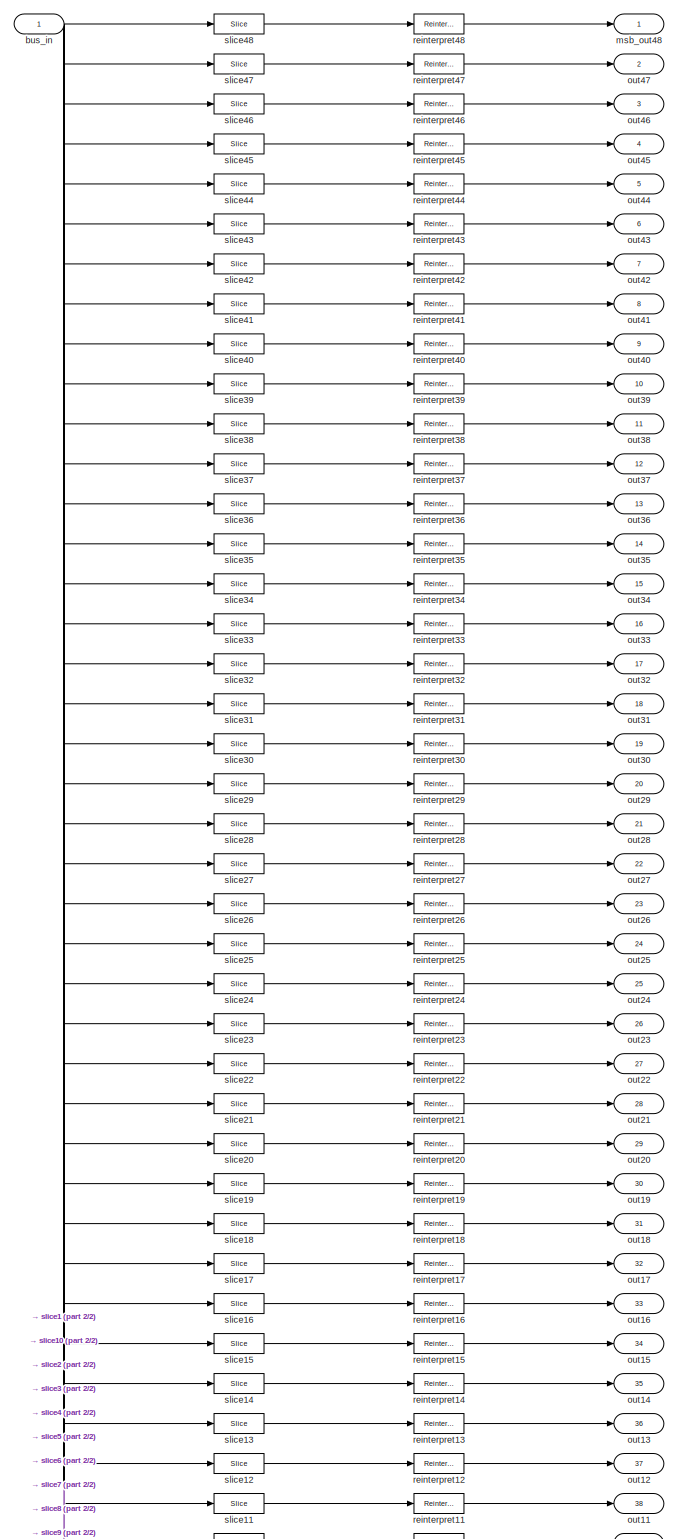
[diagram: corner_turn_32_samples/buf0/debus_din - part 1/2, most of the canvas]
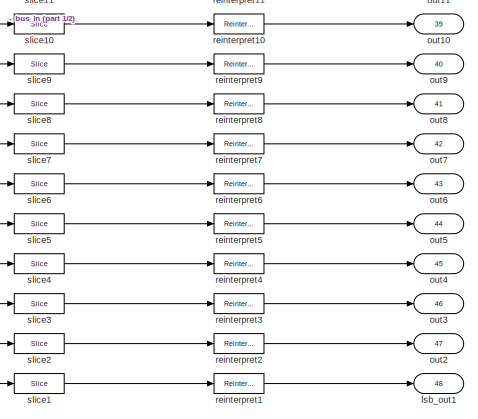
[diagram: corner_turn_32_samples/buf0/debus_din - part 2/2, bottom center region]
BLOCK [SubSystem] corner_turn_32_samples/buf0/debus_din
  AncestorBlock = casper_library_flow_control/bus_expand
  AttributesFormatString = 48 outputs: uf1.0,uf1.0,uf1.0,uf1.0,uf1.0,uf1.0,uf1.0,uf1.0,uf1.0,uf1.0,uf1.0,uf1.0,uf1.0,uf1.0,uf1.0,uf1.0,uf1.0,uf1.0,uf1.0,uf1.0,uf1.0,uf1.0,uf1.0,uf1.0,uf1.0,uf1.0,uf1.0,uf1.0,uf1.0,uf1.0,uf1.0,uf1.0,uf1.0,uf1.0,uf1.0,uf1.0,uf1.0,uf1.0,uf1.0,uf1.0,uf1.0,uf1.0,uf1.0,uf1.0,uf1.0,uf1.0,uf1.0,uf1.0,
  Ports = [1, 48]
  RequestExecContextInheritance = off
  UserDataPersistent = on
  Variant = off
BLOCK [Inport] corner_turn_32_samples/buf0/debus_din/bus_in
  IconDisplay = Port number
BLOCK [Outport] corner_turn_32_samples/buf0/debus_din/lsb_out1
  IconDisplay = Port number
  Port = 48
BLOCK [Outport] corner_turn_32_samples/buf0/debus_din/msb_out48
  IconDisplay = Port number
BLOCK [Outport] corner_turn_32_samples/buf0/debus_din/out10
  IconDisplay = Port number
  Port = 39
BLOCK [Outport] corner_turn_32_samples/buf0/debus_din/out11
  IconDisplay = Port number
  Port = 38
BLOCK [Outport] corner_turn_32_samples/buf0/debus_din/out12
  IconDisplay = Port number
  Port = 37
BLOCK [Outport] corner_turn_32_samples/buf0/debus_din/out13
  IconDisplay = Port number
  Port = 36
BLOCK [Outport] corner_turn_32_samples/buf0/debus_din/out14
  IconDisplay = Port number
  Port = 35
BLOCK [Outport] corner_turn_32_samples/buf0/debus_din/out15
  IconDisplay = Port number
  Port = 34
BLOCK [Outport] corner_turn_32_samples/buf0/debus_din/out16
  IconDisplay = Port number
  Port = 33
BLOCK [Outport] corner_turn_32_samples/buf0/debus_din/out17
  IconDisplay = Port number
  Port = 32
BLOCK [Outport] corner_turn_32_samples/buf0/debus_din/out18
  IconDisplay = Port number
  Port = 31
BLOCK [Outport] corner_turn_32_samples/buf0/debus_din/out19
  IconDisplay = Port number
  Port = 30
BLOCK [Outport] corner_turn_32_samples/buf0/debus_din/out2
  IconDisplay = Port number
  Port = 47
BLOCK [Outport] corner_turn_32_samples/buf0/debus_din/out20
  IconDisplay = Port number
  Port = 29
BLOCK [Outport] corner_turn_32_samples/buf0/debus_din/out21
  IconDisplay = Port number
  Port = 28
BLOCK [Outport] corner_turn_32_samples/buf0/debus_din/out22
  IconDisplay = Port number
  Port = 27
BLOCK [Outport] corner_turn_32_samples/buf0/debus_din/out23
  IconDisplay = Port number
  Port = 26
BLOCK [Outport] corner_turn_32_samples/buf0/debus_din/out24
  IconDisplay = Port number
  Port = 25
BLOCK [Outport] corner_turn_32_samples/buf0/debus_din/out25
  IconDisplay = Port number
  Port = 24
BLOCK [Outport] corner_turn_32_samples/buf0/debus_din/out26
  IconDisplay = Port number
  Port = 23
BLOCK [Outport] corner_turn_32_samples/buf0/debus_din/out27
  IconDisplay = Port number
  Port = 22
BLOCK [Outport] corner_turn_32_samples/buf0/debus_din/out28
  IconDisplay = Port number
  Port = 21
BLOCK [Outport] corner_turn_32_samples/buf0/debus_din/out29
  IconDisplay = Port number
  Port = 20
BLOCK [Outport] corner_turn_32_samples/buf0/debus_din/out3
  IconDisplay = Port number
  Port = 46
BLOCK [Outport] corner_turn_32_samples/buf0/debus_din/out30
  IconDisplay = Port number
  Port = 19
BLOCK [Outport] corner_turn_32_samples/buf0/debus_din/out31
  IconDisplay = Port number
  Port = 18
BLOCK [Outport] corner_turn_32_samples/buf0/debus_din/out32
  IconDisplay = Port number
  Port = 17
BLOCK [Outport] corner_turn_32_samples/buf0/debus_din/out33
  IconDisplay = Port number
  Port = 16
BLOCK [Outport] corner_turn_32_samples/buf0/debus_din/out34
  IconDisplay = Port number
  Port = 15
BLOCK [Outport] corner_turn_32_samples/buf0/debus_din/out35
  IconDisplay = Port number
  Port = 14
BLOCK [Outport] corner_turn_32_samples/buf0/debus_din/out36
  IconDisplay = Port number
  Port = 13
BLOCK [Outport] corner_turn_32_samples/buf0/debus_din/out37
  IconDisplay = Port number
  Port = 12
BLOCK [Outport] corner_turn_32_samples/buf0/debus_din/out38
  IconDisplay = Port number
  Port = 11
BLOCK [Outport] corner_turn_32_samples/buf0/debus_din/out39
  IconDisplay = Port number
  Port = 10
BLOCK [Outport] corner_turn_32_samples/buf0/debus_din/out4
  IconDisplay = Port number
  Port = 45
BLOCK [Outport] corner_turn_32_samples/buf0/debus_din/out40
  IconDisplay = Port number
  Port = 9
BLOCK [Outport] corner_turn_32_samples/buf0/debus_din/out41
  IconDisplay = Port number
  Port = 8
BLOCK [Outport] corner_turn_32_samples/buf0/debus_din/out42
  IconDisplay = Port number
  Port = 7
BLOCK [Outport] corner_turn_32_samples/buf0/debus_din/out43
  IconDisplay = Port number
  Port = 6
BLOCK [Outport] corner_turn_32_samples/buf0/debus_din/out44
  IconDisplay = Port number
  Port = 5
BLOCK [Outport] corner_turn_32_samples/buf0/debus_din/out45
  IconDisplay = Port number
  Port = 4
BLOCK [Outport] corner_turn_32_samples/buf0/debus_din/out46
  IconDisplay = Port number
  Port = 3
BLOCK [Outport] corner_turn_32_samples/buf0/debus_din/out47
  IconDisplay = Port number
  Port = 2
BLOCK [Outport] corner_turn_32_samples/buf0/debus_din/out5
  IconDisplay = Port number
  Port = 44
BLOCK [Outport] corner_turn_32_samples/buf0/debus_din/out6
  IconDisplay = Port number
  Port = 43
BLOCK [Outport] corner_turn_32_samples/buf0/debus_din/out7
  IconDisplay = Port number
  Port = 42
BLOCK [Outport] corner_turn_32_samples/buf0/debus_din/out8
  IconDisplay = Port number
  Port = 41
BLOCK [Outport] corner_turn_32_samples/buf0/debus_din/out9
  IconDisplay = Port number
  Port = 40
BLOCK [Reference] corner_turn_32_samples/buf0/debus_din/reinterpret1  REF=xbsIndex_r4/Reinterpret
  Ports = [1, 1]
  SourceBlock = xbsIndex_r4/Reinterpret
  SourceType = Xilinx Type Reinterpreter Block
BLOCK [Reference] corner_turn_32_samples/buf0/debus_din/reinterpret10  REF=xbsIndex_r4/Reinterpret
  Ports = [1, 1]
  SourceBlock = xbsIndex_r4/Reinterpret
  SourceType = Xilinx Type Reinterpreter Block
BLOCK [Reference] corner_turn_32_samples/buf0/debus_din/reinterpret11  REF=xbsIndex_r4/Reinterpret
  Ports = [1, 1]
  SourceBlock = xbsIndex_r4/Reinterpret
  SourceType = Xilinx Type Reinterpreter Block
BLOCK [Reference] corner_turn_32_samples/buf0/debus_din/reinterpret12  REF=xbsIndex_r4/Reinterpret
  Ports = [1, 1]
  SourceBlock = xbsIndex_r4/Reinterpret
  SourceType = Xilinx Type Reinterpreter Block
BLOCK [Reference] corner_turn_32_samples/buf0/debus_din/reinterpret13  REF=xbsIndex_r4/Reinterpret
  Ports = [1, 1]
  SourceBlock = xbsIndex_r4/Reinterpret
  SourceType = Xilinx Type Reinterpreter Block
BLOCK [Reference] corner_turn_32_samples/buf0/debus_din/reinterpret14  REF=xbsIndex_r4/Reinterpret
  Ports = [1, 1]
  SourceBlock = xbsIndex_r4/Reinterpret
  SourceType = Xilinx Type Reinterpreter Block
BLOCK [Reference] corner_turn_32_samples/buf0/debus_din/reinterpret15  REF=xbsIndex_r4/Reinterpret
  Ports = [1, 1]
  SourceBlock = xbsIndex_r4/Reinterpret
  SourceType = Xilinx Type Reinterpreter Block
BLOCK [Reference] corner_turn_32_samples/buf0/debus_din/reinterpret16  REF=xbsIndex_r4/Reinterpret
  Ports = [1, 1]
  SourceBlock = xbsIndex_r4/Reinterpret
  SourceType = Xilinx Type Reinterpreter Block
BLOCK [Reference] corner_turn_32_samples/buf0/debus_din/reinterpret17  REF=xbsIndex_r4/Reinterpret
  Ports = [1, 1]
  SourceBlock = xbsIndex_r4/Reinterpret
  SourceType = Xilinx Type Reinterpreter Block
BLOCK [Reference] corner_turn_32_samples/buf0/debus_din/reinterpret18  REF=xbsIndex_r4/Reinterpret
  Ports = [1, 1]
  SourceBlock = xbsIndex_r4/Reinterpret
  SourceType = Xilinx Type Reinterpreter Block
BLOCK [Reference] corner_turn_32_samples/buf0/debus_din/reinterpret19  REF=xbsIndex_r4/Reinterpret
  Ports = [1, 1]
  SourceBlock = xbsIndex_r4/Reinterpret
  SourceType = Xilinx Type Reinterpreter Block
BLOCK [Reference] corner_turn_32_samples/buf0/debus_din/reinterpret2  REF=xbsIndex_r4/Reinterpret
  Ports = [1, 1]
  SourceBlock = xbsIndex_r4/Reinterpret
  SourceType = Xilinx Type Reinterpreter Block
BLOCK [Reference] corner_turn_32_samples/buf0/debus_din/reinterpret20  REF=xbsIndex_r4/Reinterpret
  Ports = [1, 1]
  SourceBlock = xbsIndex_r4/Reinterpret
  SourceType = Xilinx Type Reinterpreter Block
BLOCK [Reference] corner_turn_32_samples/buf0/debus_din/reinterpret21  REF=xbsIndex_r4/Reinterpret
  Ports = [1, 1]
  SourceBlock = xbsIndex_r4/Reinterpret
  SourceType = Xilinx Type Reinterpreter Block
BLOCK [Reference] corner_turn_32_samples/buf0/debus_din/reinterpret22  REF=xbsIndex_r4/Reinterpret
  Ports = [1, 1]
  SourceBlock = xbsIndex_r4/Reinterpret
  SourceType = Xilinx Type Reinterpreter Block
BLOCK [Reference] corner_turn_32_samples/buf0/debus_din/reinterpret23  REF=xbsIndex_r4/Reinterpret
  Ports = [1, 1]
  SourceBlock = xbsIndex_r4/Reinterpret
  SourceType = Xilinx Type Reinterpreter Block
BLOCK [Reference] corner_turn_32_samples/buf0/debus_din/reinterpret24  REF=xbsIndex_r4/Reinterpret
  Ports = [1, 1]
  SourceBlock = xbsIndex_r4/Reinterpret
  SourceType = Xilinx Type Reinterpreter Block
BLOCK [Reference] corner_turn_32_samples/buf0/debus_din/reinterpret25  REF=xbsIndex_r4/Reinterpret
  Ports = [1, 1]
  SourceBlock = xbsIndex_r4/Reinterpret
  SourceType = Xilinx Type Reinterpreter Block
BLOCK [Reference] corner_turn_32_samples/buf0/debus_din/reinterpret26  REF=xbsIndex_r4/Reinterpret
  Ports = [1, 1]
  SourceBlock = xbsIndex_r4/Reinterpret
  SourceType = Xilinx Type Reinterpreter Block
BLOCK [Reference] corner_turn_32_samples/buf0/debus_din/reinterpret27  REF=xbsIndex_r4/Reinterpret
  Ports = [1, 1]
  SourceBlock = xbsIndex_r4/Reinterpret
  SourceType = Xilinx Type Reinterpreter Block
BLOCK [Reference] corner_turn_32_samples/buf0/debus_din/reinterpret28  REF=xbsIndex_r4/Reinterpret
  Ports = [1, 1]
  SourceBlock = xbsIndex_r4/Reinterpret
  SourceType = Xilinx Type Reinterpreter Block
BLOCK [Reference] corner_turn_32_samples/buf0/debus_din/reinterpret29  REF=xbsIndex_r4/Reinterpret
  Ports = [1, 1]
  SourceBlock = xbsIndex_r4/Reinterpret
  SourceType = Xilinx Type Reinterpreter Block
BLOCK [Reference] corner_turn_32_samples/buf0/debus_din/reinterpret3  REF=xbsIndex_r4/Reinterpret
  Ports = [1, 1]
  SourceBlock = xbsIndex_r4/Reinterpret
  SourceType = Xilinx Type Reinterpreter Block
BLOCK [Reference] corner_turn_32_samples/buf0/debus_din/reinterpret30  REF=xbsIndex_r4/Reinterpret
  Ports = [1, 1]
  SourceBlock = xbsIndex_r4/Reinterpret
  SourceType = Xilinx Type Reinterpreter Block
BLOCK [Reference] corner_turn_32_samples/buf0/debus_din/reinterpret31  REF=xbsIndex_r4/Reinterpret
  Ports = [1, 1]
  SourceBlock = xbsIndex_r4/Reinterpret
  SourceType = Xilinx Type Reinterpreter Block
BLOCK [Reference] corner_turn_32_samples/buf0/debus_din/reinterpret32  REF=xbsIndex_r4/Reinterpret
  Ports = [1, 1]
  SourceBlock = xbsIndex_r4/Reinterpret
  SourceType = Xilinx Type Reinterpreter Block
BLOCK [Reference] corner_turn_32_samples/buf0/debus_din/reinterpret33  REF=xbsIndex_r4/Reinterpret
  Ports = [1, 1]
  SourceBlock = xbsIndex_r4/Reinterpret
  SourceType = Xilinx Type Reinterpreter Block
BLOCK [Reference] corner_turn_32_samples/buf0/debus_din/reinterpret34  REF=xbsIndex_r4/Reinterpret
  Ports = [1, 1]
  SourceBlock = xbsIndex_r4/Reinterpret
  SourceType = Xilinx Type Reinterpreter Block
BLOCK [Reference] corner_turn_32_samples/buf0/debus_din/reinterpret35  REF=xbsIndex_r4/Reinterpret
  Ports = [1, 1]
  SourceBlock = xbsIndex_r4/Reinterpret
  SourceType = Xilinx Type Reinterpreter Block
BLOCK [Reference] corner_turn_32_samples/buf0/debus_din/reinterpret36  REF=xbsIndex_r4/Reinterpret
  Ports = [1, 1]
  SourceBlock = xbsIndex_r4/Reinterpret
  SourceType = Xilinx Type Reinterpreter Block
BLOCK [Reference] corner_turn_32_samples/buf0/debus_din/reinterpret37  REF=xbsIndex_r4/Reinterpret
  Ports = [1, 1]
  SourceBlock = xbsIndex_r4/Reinterpret
  SourceType = Xilinx Type Reinterpreter Block
BLOCK [Reference] corner_turn_32_samples/buf0/debus_din/reinterpret38  REF=xbsIndex_r4/Reinterpret
  Ports = [1, 1]
  SourceBlock = xbsIndex_r4/Reinterpret
  SourceType = Xilinx Type Reinterpreter Block
BLOCK [Reference] corner_turn_32_samples/buf0/debus_din/reinterpret39  REF=xbsIndex_r4/Reinterpret
  Ports = [1, 1]
  SourceBlock = xbsIndex_r4/Reinterpret
  SourceType = Xilinx Type Reinterpreter Block
BLOCK [Reference] corner_turn_32_samples/buf0/debus_din/reinterpret4  REF=xbsIndex_r4/Reinterpret
  Ports = [1, 1]
  SourceBlock = xbsIndex_r4/Reinterpret
  SourceType = Xilinx Type Reinterpreter Block
BLOCK [Reference] corner_turn_32_samples/buf0/debus_din/reinterpret40  REF=xbsIndex_r4/Reinterpret
  Ports = [1, 1]
  SourceBlock = xbsIndex_r4/Reinterpret
  SourceType = Xilinx Type Reinterpreter Block
BLOCK [Reference] corner_turn_32_samples/buf0/debus_din/reinterpret41  REF=xbsIndex_r4/Reinterpret
  Ports = [1, 1]
  SourceBlock = xbsIndex_r4/Reinterpret
  SourceType = Xilinx Type Reinterpreter Block
BLOCK [Reference] corner_turn_32_samples/buf0/debus_din/reinterpret42  REF=xbsIndex_r4/Reinterpret
  Ports = [1, 1]
  SourceBlock = xbsIndex_r4/Reinterpret
  SourceType = Xilinx Type Reinterpreter Block
BLOCK [Reference] corner_turn_32_samples/buf0/debus_din/reinterpret43  REF=xbsIndex_r4/Reinterpret
  Ports = [1, 1]
  SourceBlock = xbsIndex_r4/Reinterpret
  SourceType = Xilinx Type Reinterpreter Block
BLOCK [Reference] corner_turn_32_samples/buf0/debus_din/reinterpret44  REF=xbsIndex_r4/Reinterpret
  Ports = [1, 1]
  SourceBlock = xbsIndex_r4/Reinterpret
  SourceType = Xilinx Type Reinterpreter Block
BLOCK [Reference] corner_turn_32_samples/buf0/debus_din/reinterpret45  REF=xbsIndex_r4/Reinterpret
  Ports = [1, 1]
  SourceBlock = xbsIndex_r4/Reinterpret
  SourceType = Xilinx Type Reinterpreter Block
BLOCK [Reference] corner_turn_32_samples/buf0/debus_din/reinterpret46  REF=xbsIndex_r4/Reinterpret
  Ports = [1, 1]
  SourceBlock = xbsIndex_r4/Reinterpret
  SourceType = Xilinx Type Reinterpreter Block
BLOCK [Reference] corner_turn_32_samples/buf0/debus_din/reinterpret47  REF=xbsIndex_r4/Reinterpret
  Ports = [1, 1]
  SourceBlock = xbsIndex_r4/Reinterpret
  SourceType = Xilinx Type Reinterpreter Block
BLOCK [Reference] corner_turn_32_samples/buf0/debus_din/reinterpret48  REF=xbsIndex_r4/Reinterpret
  Ports = [1, 1]
  SourceBlock = xbsIndex_r4/Reinterpret
  SourceType = Xilinx Type Reinterpreter Block
BLOCK [Reference] corner_turn_32_samples/buf0/debus_din/reinterpret5  REF=xbsIndex_r4/Reinterpret
  Ports = [1, 1]
  SourceBlock = xbsIndex_r4/Reinterpret
  SourceType = Xilinx Type Reinterpreter Block
BLOCK [Reference] corner_turn_32_samples/buf0/debus_din/reinterpret6  REF=xbsIndex_r4/Reinterpret
  Ports = [1, 1]
  SourceBlock = xbsIndex_r4/Reinterpret
  SourceType = Xilinx Type Reinterpreter Block
BLOCK [Reference] corner_turn_32_samples/buf0/debus_din/reinterpret7  REF=xbsIndex_r4/Reinterpret
  Ports = [1, 1]
  SourceBlock = xbsIndex_r4/Reinterpret
  SourceType = Xilinx Type Reinterpreter Block
BLOCK [Reference] corner_turn_32_samples/buf0/debus_din/reinterpret8  REF=xbsIndex_r4/Reinterpret
  Ports = [1, 1]
  SourceBlock = xbsIndex_r4/Reinterpret
  SourceType = Xilinx Type Reinterpreter Block
BLOCK [Reference] corner_turn_32_samples/buf0/debus_din/reinterpret9  REF=xbsIndex_r4/Reinterpret
  Ports = [1, 1]
  SourceBlock = xbsIndex_r4/Reinterpret
  SourceType = Xilinx Type Reinterpreter Block
BLOCK [Reference] corner_turn_32_samples/buf0/debus_din/slice1  REF=xbsIndex_r4/Slice
  Ports = [1, 1]
  SourceBlock = xbsIndex_r4/Slice
  SourceType = Xilinx Bit Slice Extractor Block
BLOCK [Reference] corner_turn_32_samples/buf0/debus_din/slice10  REF=xbsIndex_r4/Slice
  Ports = [1, 1]
  SourceBlock = xbsIndex_r4/Slice
  SourceType = Xilinx Bit Slice Extractor Block
BLOCK [Reference] corner_turn_32_samples/buf0/debus_din/slice11  REF=xbsIndex_r4/Slice
  Ports = [1, 1]
  SourceBlock = xbsIndex_r4/Slice
  SourceType = Xilinx Bit Slice Extractor Block
BLOCK [Reference] corner_turn_32_samples/buf0/debus_din/slice12  REF=xbsIndex_r4/Slice
  Ports = [1, 1]
  SourceBlock = xbsIndex_r4/Slice
  SourceType = Xilinx Bit Slice Extractor Block
BLOCK [Reference] corner_turn_32_samples/buf0/debus_din/slice13  REF=xbsIndex_r4/Slice
  Ports = [1, 1]
  SourceBlock = xbsIndex_r4/Slice
  SourceType = Xilinx Bit Slice Extractor Block
BLOCK [Reference] corner_turn_32_samples/buf0/debus_din/slice14  REF=xbsIndex_r4/Slice
  Ports = [1, 1]
  SourceBlock = xbsIndex_r4/Slice
  SourceType = Xilinx Bit Slice Extractor Block
BLOCK [Reference] corner_turn_32_samples/buf0/debus_din/slice15  REF=xbsIndex_r4/Slice
  Ports = [1, 1]
  SourceBlock = xbsIndex_r4/Slice
  SourceType = Xilinx Bit Slice Extractor Block
BLOCK [Reference] corner_turn_32_samples/buf0/debus_din/slice16  REF=xbsIndex_r4/Slice
  Ports = [1, 1]
  SourceBlock = xbsIndex_r4/Slice
  SourceType = Xilinx Bit Slice Extractor Block
BLOCK [Reference] corner_turn_32_samples/buf0/debus_din/slice17  REF=xbsIndex_r4/Slice
  Ports = [1, 1]
  SourceBlock = xbsIndex_r4/Slice
  SourceType = Xilinx Bit Slice Extractor Block
BLOCK [Reference] corner_turn_32_samples/buf0/debus_din/slice18  REF=xbsIndex_r4/Slice
  Ports = [1, 1]
  SourceBlock = xbsIndex_r4/Slice
  SourceType = Xilinx Bit Slice Extractor Block
BLOCK [Reference] corner_turn_32_samples/buf0/debus_din/slice19  REF=xbsIndex_r4/Slice
  Ports = [1, 1]
  SourceBlock = xbsIndex_r4/Slice
  SourceType = Xilinx Bit Slice Extractor Block
BLOCK [Reference] corner_turn_32_samples/buf0/debus_din/slice2  REF=xbsIndex_r4/Slice
  Ports = [1, 1]
  SourceBlock = xbsIndex_r4/Slice
  SourceType = Xilinx Bit Slice Extractor Block
BLOCK [Reference] corner_turn_32_samples/buf0/debus_din/slice20  REF=xbsIndex_r4/Slice
  Ports = [1, 1]
  SourceBlock = xbsIndex_r4/Slice
  SourceType = Xilinx Bit Slice Extractor Block
BLOCK [Reference] corner_turn_32_samples/buf0/debus_din/slice21  REF=xbsIndex_r4/Slice
  Ports = [1, 1]
  SourceBlock = xbsIndex_r4/Slice
  SourceType = Xilinx Bit Slice Extractor Block
BLOCK [Reference] corner_turn_32_samples/buf0/debus_din/slice22  REF=xbsIndex_r4/Slice
  Ports = [1, 1]
  SourceBlock = xbsIndex_r4/Slice
  SourceType = Xilinx Bit Slice Extractor Block
BLOCK [Reference] corner_turn_32_samples/buf0/debus_din/slice23  REF=xbsIndex_r4/Slice
  Ports = [1, 1]
  SourceBlock = xbsIndex_r4/Slice
  SourceType = Xilinx Bit Slice Extractor Block
BLOCK [Reference] corner_turn_32_samples/buf0/debus_din/slice24  REF=xbsIndex_r4/Slice
  Ports = [1, 1]
  SourceBlock = xbsIndex_r4/Slice
  SourceType = Xilinx Bit Slice Extractor Block
BLOCK [Reference] corner_turn_32_samples/buf0/debus_din/slice25  REF=xbsIndex_r4/Slice
  Ports = [1, 1]
  SourceBlock = xbsIndex_r4/Slice
  SourceType = Xilinx Bit Slice Extractor Block
BLOCK [Reference] corner_turn_32_samples/buf0/debus_din/slice26  REF=xbsIndex_r4/Slice
  Ports = [1, 1]
  SourceBlock = xbsIndex_r4/Slice
  SourceType = Xilinx Bit Slice Extractor Block
BLOCK [Reference] corner_turn_32_samples/buf0/debus_din/slice27  REF=xbsIndex_r4/Slice
  Ports = [1, 1]
  SourceBlock = xbsIndex_r4/Slice
  SourceType = Xilinx Bit Slice Extractor Block
BLOCK [Reference] corner_turn_32_samples/buf0/debus_din/slice28  REF=xbsIndex_r4/Slice
  Ports = [1, 1]
  SourceBlock = xbsIndex_r4/Slice
  SourceType = Xilinx Bit Slice Extractor Block
BLOCK [Reference] corner_turn_32_samples/buf0/debus_din/slice29  REF=xbsIndex_r4/Slice
  Ports = [1, 1]
  SourceBlock = xbsIndex_r4/Slice
  SourceType = Xilinx Bit Slice Extractor Block
BLOCK [Reference] corner_turn_32_samples/buf0/debus_din/slice3  REF=xbsIndex_r4/Slice
  Ports = [1, 1]
  SourceBlock = xbsIndex_r4/Slice
  SourceType = Xilinx Bit Slice Extractor Block
BLOCK [Reference] corner_turn_32_samples/buf0/debus_din/slice30  REF=xbsIndex_r4/Slice
  Ports = [1, 1]
  SourceBlock = xbsIndex_r4/Slice
  SourceType = Xilinx Bit Slice Extractor Block
BLOCK [Reference] corner_turn_32_samples/buf0/debus_din/slice31  REF=xbsIndex_r4/Slice
  Ports = [1, 1]
  SourceBlock = xbsIndex_r4/Slice
  SourceType = Xilinx Bit Slice Extractor Block
BLOCK [Reference] corner_turn_32_samples/buf0/debus_din/slice32  REF=xbsIndex_r4/Slice
  Ports = [1, 1]
  SourceBlock = xbsIndex_r4/Slice
  SourceType = Xilinx Bit Slice Extractor Block
BLOCK [Reference] corner_turn_32_samples/buf0/debus_din/slice33  REF=xbsIndex_r4/Slice
  Ports = [1, 1]
  SourceBlock = xbsIndex_r4/Slice
  SourceType = Xilinx Bit Slice Extractor Block
BLOCK [Reference] corner_turn_32_samples/buf0/debus_din/slice34  REF=xbsIndex_r4/Slice
  Ports = [1, 1]
  SourceBlock = xbsIndex_r4/Slice
  SourceType = Xilinx Bit Slice Extractor Block
BLOCK [Reference] corner_turn_32_samples/buf0/debus_din/slice35  REF=xbsIndex_r4/Slice
  Ports = [1, 1]
  SourceBlock = xbsIndex_r4/Slice
  SourceType = Xilinx Bit Slice Extractor Block
BLOCK [Reference] corner_turn_32_samples/buf0/debus_din/slice36  REF=xbsIndex_r4/Slice
  Ports = [1, 1]
  SourceBlock = xbsIndex_r4/Slice
  SourceType = Xilinx Bit Slice Extractor Block
BLOCK [Reference] corner_turn_32_samples/buf0/debus_din/slice37  REF=xbsIndex_r4/Slice
  Ports = [1, 1]
  SourceBlock = xbsIndex_r4/Slice
  SourceType = Xilinx Bit Slice Extractor Block
BLOCK [Reference] corner_turn_32_samples/buf0/debus_din/slice38  REF=xbsIndex_r4/Slice
  Ports = [1, 1]
  SourceBlock = xbsIndex_r4/Slice
  SourceType = Xilinx Bit Slice Extractor Block
BLOCK [Reference] corner_turn_32_samples/buf0/debus_din/slice39  REF=xbsIndex_r4/Slice
  Ports = [1, 1]
  SourceBlock = xbsIndex_r4/Slice
  SourceType = Xilinx Bit Slice Extractor Block
BLOCK [Reference] corner_turn_32_samples/buf0/debus_din/slice4  REF=xbsIndex_r4/Slice
  Ports = [1, 1]
  SourceBlock = xbsIndex_r4/Slice
  SourceType = Xilinx Bit Slice Extractor Block
BLOCK [Reference] corner_turn_32_samples/buf0/debus_din/slice40  REF=xbsIndex_r4/Slice
  Ports = [1, 1]
  SourceBlock = xbsIndex_r4/Slice
  SourceType = Xilinx Bit Slice Extractor Block
BLOCK [Reference] corner_turn_32_samples/buf0/debus_din/slice41  REF=xbsIndex_r4/Slice
  Ports = [1, 1]
  SourceBlock = xbsIndex_r4/Slice
  SourceType = Xilinx Bit Slice Extractor Block
BLOCK [Reference] corner_turn_32_samples/buf0/debus_din/slice42  REF=xbsIndex_r4/Slice
  Ports = [1, 1]
  SourceBlock = xbsIndex_r4/Slice
  SourceType = Xilinx Bit Slice Extractor Block
BLOCK [Reference] corner_turn_32_samples/buf0/debus_din/slice43  REF=xbsIndex_r4/Slice
  Ports = [1, 1]
  SourceBlock = xbsIndex_r4/Slice
  SourceType = Xilinx Bit Slice Extractor Block
BLOCK [Reference] corner_turn_32_samples/buf0/debus_din/slice44  REF=xbsIndex_r4/Slice
  Ports = [1, 1]
  SourceBlock = xbsIndex_r4/Slice
  SourceType = Xilinx Bit Slice Extractor Block
BLOCK [Reference] corner_turn_32_samples/buf0/debus_din/slice45  REF=xbsIndex_r4/Slice
  Ports = [1, 1]
  SourceBlock = xbsIndex_r4/Slice
  SourceType = Xilinx Bit Slice Extractor Block
BLOCK [Reference] corner_turn_32_samples/buf0/debus_din/slice46  REF=xbsIndex_r4/Slice
  Ports = [1, 1]
  SourceBlock = xbsIndex_r4/Slice
  SourceType = Xilinx Bit Slice Extractor Block
BLOCK [Reference] corner_turn_32_samples/buf0/debus_din/slice47  REF=xbsIndex_r4/Slice
  Ports = [1, 1]
  SourceBlock = xbsIndex_r4/Slice
  SourceType = Xilinx Bit Slice Extractor Block
BLOCK [Reference] corner_turn_32_samples/buf0/debus_din/slice48  REF=xbsIndex_r4/Slice
  Ports = [1, 1]
  SourceBlock = xbsIndex_r4/Slice
  SourceType = Xilinx Bit Slice Extractor Block
BLOCK [Reference] corner_turn_32_samples/buf0/debus_din/slice5  REF=xbsIndex_r4/Slice
  Ports = [1, 1]
  SourceBlock = xbsIndex_r4/Slice
  SourceType = Xilinx Bit Slice Extractor Block
BLOCK [Reference] corner_turn_32_samples/buf0/debus_din/slice6  REF=xbsIndex_r4/Slice
  Ports = [1, 1]
  SourceBlock = xbsIndex_r4/Slice
  SourceType = Xilinx Bit Slice Extractor Block
BLOCK [Reference] corner_turn_32_samples/buf0/debus_din/slice7  REF=xbsIndex_r4/Slice
  Ports = [1, 1]
  SourceBlock = xbsIndex_r4/Slice
  SourceType = Xilinx Bit Slice Extractor Block
BLOCK [Reference] corner_turn_32_samples/buf0/debus_din/slice8  REF=xbsIndex_r4/Slice
  Ports = [1, 1]
  SourceBlock = xbsIndex_r4/Slice
  SourceType = Xilinx Bit Slice Extractor Block
BLOCK [Reference] corner_turn_32_samples/buf0/debus_din/slice9  REF=xbsIndex_r4/Slice
  Ports = [1, 1]
  SourceBlock = xbsIndex_r4/Slice
  SourceType = Xilinx Bit Slice Extractor Block
BLOCK [SubSystem] corner_turn_32_samples/buf0/debus_we
  AncestorBlock = casper_library_flow_control/bus_expand
  AttributesFormatString = 48 outputs: b,b,b,b,b,b,b,b,b,b,b,b,b,b,b,b,b,b,b,b,b,b,b,b,b,b,b,b,b,b,b,b,b,b,b,b,b,b,b,b,b,b,b,b,b,b,b,b,
  Ports = [1, 48]
  RequestExecContextInheritance = off
  UserDataPersistent = on
  Variant = off
BLOCK [Inport] corner_turn_32_samples/buf0/debus_we/bus_in
  IconDisplay = Port number
BLOCK [Outport] corner_turn_32_samples/buf0/debus_we/lsb_out1
  IconDisplay = Port number
  Port = 48
BLOCK [Outport] corner_turn_32_samples/buf0/debus_we/msb_out48
  IconDisplay = Port number
BLOCK [Outport] corner_turn_32_samples/buf0/debus_we/out10
  IconDisplay = Port number
  Port = 39
BLOCK [Outport] corner_turn_32_samples/buf0/debus_we/out11
  IconDisplay = Port number
  Port = 38
BLOCK [Outport] corner_turn_32_samples/buf0/debus_we/out12
  IconDisplay = Port number
  Port = 37
BLOCK [Outport] corner_turn_32_samples/buf0/debus_we/out13
  IconDisplay = Port number
  Port = 36
BLOCK [Outport] corner_turn_32_samples/buf0/debus_we/out14
  IconDisplay = Port number
  Port = 35
BLOCK [Outport] corner_turn_32_samples/buf0/debus_we/out15
  IconDisplay = Port number
  Port = 34
BLOCK [Outport] corner_turn_32_samples/buf0/debus_we/out16
  IconDisplay = Port number
  Port = 33
BLOCK [Outport] corner_turn_32_samples/buf0/debus_we/out17
  IconDisplay = Port number
  Port = 32
BLOCK [Outport] corner_turn_32_samples/buf0/debus_we/out18
  IconDisplay = Port number
  Port = 31
BLOCK [Outport] corner_turn_32_samples/buf0/debus_we/out19
  IconDisplay = Port number
  Port = 30
BLOCK [Outport] corner_turn_32_samples/buf0/debus_we/out2
  IconDisplay = Port number
  Port = 47
BLOCK [Outport] corner_turn_32_samples/buf0/debus_we/out20
  IconDisplay = Port number
  Port = 29
BLOCK [Outport] corner_turn_32_samples/buf0/debus_we/out21
  IconDisplay = Port number
  Port = 28
BLOCK [Outport] corner_turn_32_samples/buf0/debus_we/out22
  IconDisplay = Port number
  Port = 27
BLOCK [Outport] corner_turn_32_samples/buf0/debus_we/out23
  IconDisplay = Port number
  Port = 26
BLOCK [Outport] corner_turn_32_samples/buf0/debus_we/out24
  IconDisplay = Port number
  Port = 25
BLOCK [Outport] corner_turn_32_samples/buf0/debus_we/out25
  IconDisplay = Port number
  Port = 24
BLOCK [Outport] corner_turn_32_samples/buf0/debus_we/out26
  IconDisplay = Port number
  Port = 23
BLOCK [Outport] corner_turn_32_samples/buf0/debus_we/out27
  IconDisplay = Port number
  Port = 22
BLOCK [Outport] corner_turn_32_samples/buf0/debus_we/out28
  IconDisplay = Port number
  Port = 21
BLOCK [Outport] corner_turn_32_samples/buf0/debus_we/out29
  IconDisplay = Port number
  Port = 20
BLOCK [Outport] corner_turn_32_samples/buf0/debus_we/out3
  IconDisplay = Port number
  Port = 46
BLOCK [Outport] corner_turn_32_samples/buf0/debus_we/out30
  IconDisplay = Port number
  Port = 19
BLOCK [Outport] corner_turn_32_samples/buf0/debus_we/out31
  IconDisplay = Port number
  Port = 18
BLOCK [Outport] corner_turn_32_samples/buf0/debus_we/out32
  IconDisplay = Port number
  Port = 17
BLOCK [Outport] corner_turn_32_samples/buf0/debus_we/out33
  IconDisplay = Port number
  Port = 16
BLOCK [Outport] corner_turn_32_samples/buf0/debus_we/out34
  IconDisplay = Port number
  Port = 15
BLOCK [Outport] corner_turn_32_samples/buf0/debus_we/out35
  IconDisplay = Port number
  Port = 14
BLOCK [Outport] corner_turn_32_samples/buf0/debus_we/out36
  IconDisplay = Port number
  Port = 13
BLOCK [Outport] corner_turn_32_samples/buf0/debus_we/out37
  IconDisplay = Port number
  Port = 12
BLOCK [Outport] corner_turn_32_samples/buf0/debus_we/out38
  IconDisplay = Port number
  Port = 11
BLOCK [Outport] corner_turn_32_samples/buf0/debus_we/out39
  IconDisplay = Port number
  Port = 10
BLOCK [Outport] corner_turn_32_samples/buf0/debus_we/out4
  IconDisplay = Port number
  Port = 45
BLOCK [Outport] corner_turn_32_samples/buf0/debus_we/out40
  IconDisplay = Port number
  Port = 9
BLOCK [Outport] corner_turn_32_samples/buf0/debus_we/out41
  IconDisplay = Port number
  Port = 8
BLOCK [Outport] corner_turn_32_samples/buf0/debus_we/out42
  IconDisplay = Port number
  Port = 7
BLOCK [Outport] corner_turn_32_samples/buf0/debus_we/out43
  IconDisplay = Port number
  Port = 6
BLOCK [Outport] corner_turn_32_samples/buf0/debus_we/out44
  IconDisplay = Port number
  Port = 5
BLOCK [Outport] corner_turn_32_samples/buf0/debus_we/out45
  IconDisplay = Port number
  Port = 4
BLOCK [Outport] corner_turn_32_samples/buf0/debus_we/out46
  IconDisplay = Port number
  Port = 3
BLOCK [Outport] corner_turn_32_samples/buf0/debus_we/out47
  IconDisplay = Port number
  Port = 2
BLOCK [Outport] corner_turn_32_samples/buf0/debus_we/out5
  IconDisplay = Port number
  Port = 44
BLOCK [Outport] corner_turn_32_samples/buf0/debus_we/out6
  IconDisplay = Port number
  Port = 43
BLOCK [Outport] corner_turn_32_samples/buf0/debus_we/out7
  IconDisplay = Port number
  Port = 42
BLOCK [Outport] corner_turn_32_samples/buf0/debus_we/out8
  IconDisplay = Port number
  Port = 41
BLOCK [Outport] corner_turn_32_samples/buf0/debus_we/out9
  IconDisplay = Port number
  Port = 40
BLOCK [Reference] corner_turn_32_samples/buf0/debus_we/slice1  REF=xbsIndex_r4/Slice
  Ports = [1, 1]
  SourceBlock = xbsIndex_r4/Slice
  SourceType = Xilinx Bit Slice Extractor Block
BLOCK [Reference] corner_turn_32_samples/buf0/debus_we/slice10  REF=xbsIndex_r4/Slice
  Ports = [1, 1]
  SourceBlock = xbsIndex_r4/Slice
  SourceType = Xilinx Bit Slice Extractor Block
BLOCK [Reference] corner_turn_32_samples/buf0/debus_we/slice11  REF=xbsIndex_r4/Slice
  Ports = [1, 1]
  SourceBlock = xbsIndex_r4/Slice
  SourceType = Xilinx Bit Slice Extractor Block
BLOCK [Reference] corner_turn_32_samples/buf0/debus_we/slice12  REF=xbsIndex_r4/Slice
  Ports = [1, 1]
  SourceBlock = xbsIndex_r4/Slice
  SourceType = Xilinx Bit Slice Extractor Block
BLOCK [Reference] corner_turn_32_samples/buf0/debus_we/slice13  REF=xbsIndex_r4/Slice
  Ports = [1, 1]
  SourceBlock = xbsIndex_r4/Slice
  SourceType = Xilinx Bit Slice Extractor Block
BLOCK [Reference] corner_turn_32_samples/buf0/debus_we/slice14  REF=xbsIndex_r4/Slice
  Ports = [1, 1]
  SourceBlock = xbsIndex_r4/Slice
  SourceType = Xilinx Bit Slice Extractor Block
BLOCK [Reference] corner_turn_32_samples/buf0/debus_we/slice15  REF=xbsIndex_r4/Slice
  Ports = [1, 1]
  SourceBlock = xbsIndex_r4/Slice
  SourceType = Xilinx Bit Slice Extractor Block
BLOCK [Reference] corner_turn_32_samples/buf0/debus_we/slice16  REF=xbsIndex_r4/Slice
  Ports = [1, 1]
  SourceBlock = xbsIndex_r4/Slice
  SourceType = Xilinx Bit Slice Extractor Block
BLOCK [Reference] corner_turn_32_samples/buf0/debus_we/slice17  REF=xbsIndex_r4/Slice
  Ports = [1, 1]
  SourceBlock = xbsIndex_r4/Slice
  SourceType = Xilinx Bit Slice Extractor Block
BLOCK [Reference] corner_turn_32_samples/buf0/debus_we/slice18  REF=xbsIndex_r4/Slice
  Ports = [1, 1]
  SourceBlock = xbsIndex_r4/Slice
  SourceType = Xilinx Bit Slice Extractor Block
BLOCK [Reference] corner_turn_32_samples/buf0/debus_we/slice19  REF=xbsIndex_r4/Slice
  Ports = [1, 1]
  SourceBlock = xbsIndex_r4/Slice
  SourceType = Xilinx Bit Slice Extractor Block
BLOCK [Reference] corner_turn_32_samples/buf0/debus_we/slice2  REF=xbsIndex_r4/Slice
  Ports = [1, 1]
  SourceBlock = xbsIndex_r4/Slice
  SourceType = Xilinx Bit Slice Extractor Block
BLOCK [Reference] corner_turn_32_samples/buf0/debus_we/slice20  REF=xbsIndex_r4/Slice
  Ports = [1, 1]
  SourceBlock = xbsIndex_r4/Slice
  SourceType = Xilinx Bit Slice Extractor Block
BLOCK [Reference] corner_turn_32_samples/buf0/debus_we/slice21  REF=xbsIndex_r4/Slice
  Ports = [1, 1]
  SourceBlock = xbsIndex_r4/Slice
  SourceType = Xilinx Bit Slice Extractor Block
BLOCK [Reference] corner_turn_32_samples/buf0/debus_we/slice22  REF=xbsIndex_r4/Slice
  Ports = [1, 1]
  SourceBlock = xbsIndex_r4/Slice
  SourceType = Xilinx Bit Slice Extractor Block
BLOCK [Reference] corner_turn_32_samples/buf0/debus_we/slice23  REF=xbsIndex_r4/Slice
  Ports = [1, 1]
  SourceBlock = xbsIndex_r4/Slice
  SourceType = Xilinx Bit Slice Extractor Block
BLOCK [Reference] corner_turn_32_samples/buf0/debus_we/slice24  REF=xbsIndex_r4/Slice
  Ports = [1, 1]
  SourceBlock = xbsIndex_r4/Slice
  SourceType = Xilinx Bit Slice Extractor Block
BLOCK [Reference] corner_turn_32_samples/buf0/debus_we/slice25  REF=xbsIndex_r4/Slice
  Ports = [1, 1]
  SourceBlock = xbsIndex_r4/Slice
  SourceType = Xilinx Bit Slice Extractor Block
BLOCK [Reference] corner_turn_32_samples/buf0/debus_we/slice26  REF=xbsIndex_r4/Slice
  Ports = [1, 1]
  SourceBlock = xbsIndex_r4/Slice
  SourceType = Xilinx Bit Slice Extractor Block
BLOCK [Reference] corner_turn_32_samples/buf0/debus_we/slice27  REF=xbsIndex_r4/Slice
  Ports = [1, 1]
  SourceBlock = xbsIndex_r4/Slice
  SourceType = Xilinx Bit Slice Extractor Block
BLOCK [Reference] corner_turn_32_samples/buf0/debus_we/slice28  REF=xbsIndex_r4/Slice
  Ports = [1, 1]
  SourceBlock = xbsIndex_r4/Slice
  SourceType = Xilinx Bit Slice Extractor Block
BLOCK [Reference] corner_turn_32_samples/buf0/debus_we/slice29  REF=xbsIndex_r4/Slice
  Ports = [1, 1]
  SourceBlock = xbsIndex_r4/Slice
  SourceType = Xilinx Bit Slice Extractor Block
BLOCK [Reference] corner_turn_32_samples/buf0/debus_we/slice3  REF=xbsIndex_r4/Slice
  Ports = [1, 1]
  SourceBlock = xbsIndex_r4/Slice
  SourceType = Xilinx Bit Slice Extractor Block
BLOCK [Reference] corner_turn_32_samples/buf0/debus_we/slice30  REF=xbsIndex_r4/Slice
  Ports = [1, 1]
  SourceBlock = xbsIndex_r4/Slice
  SourceType = Xilinx Bit Slice Extractor Block
BLOCK [Reference] corner_turn_32_samples/buf0/debus_we/slice31  REF=xbsIndex_r4/Slice
  Ports = [1, 1]
  SourceBlock = xbsIndex_r4/Slice
  SourceType = Xilinx Bit Slice Extractor Block
BLOCK [Reference] corner_turn_32_samples/buf0/debus_we/slice32  REF=xbsIndex_r4/Slice
  Ports = [1, 1]
  SourceBlock = xbsIndex_r4/Slice
  SourceType = Xilinx Bit Slice Extractor Block
BLOCK [Reference] corner_turn_32_samples/buf0/debus_we/slice33  REF=xbsIndex_r4/Slice
  Ports = [1, 1]
  SourceBlock = xbsIndex_r4/Slice
  SourceType = Xilinx Bit Slice Extractor Block
BLOCK [Reference] corner_turn_32_samples/buf0/debus_we/slice34  REF=xbsIndex_r4/Slice
  Ports = [1, 1]
  SourceBlock = xbsIndex_r4/Slice
  SourceType = Xilinx Bit Slice Extractor Block
BLOCK [Reference] corner_turn_32_samples/buf0/debus_we/slice35  REF=xbsIndex_r4/Slice
  Ports = [1, 1]
  SourceBlock = xbsIndex_r4/Slice
  SourceType = Xilinx Bit Slice Extractor Block
BLOCK [Reference] corner_turn_32_samples/buf0/debus_we/slice36  REF=xbsIndex_r4/Slice
  Ports = [1, 1]
  SourceBlock = xbsIndex_r4/Slice
  SourceType = Xilinx Bit Slice Extractor Block
BLOCK [Reference] corner_turn_32_samples/buf0/debus_we/slice37  REF=xbsIndex_r4/Slice
  Ports = [1, 1]
  SourceBlock = xbsIndex_r4/Slice
  SourceType = Xilinx Bit Slice Extractor Block
BLOCK [Reference] corner_turn_32_samples/buf0/debus_we/slice38  REF=xbsIndex_r4/Slice
  Ports = [1, 1]
  SourceBlock = xbsIndex_r4/Slice
  SourceType = Xilinx Bit Slice Extractor Block
BLOCK [Reference] corner_turn_32_samples/buf0/debus_we/slice39  REF=xbsIndex_r4/Slice
  Ports = [1, 1]
  SourceBlock = xbsIndex_r4/Slice
  SourceType = Xilinx Bit Slice Extractor Block
BLOCK [Reference] corner_turn_32_samples/buf0/debus_we/slice4  REF=xbsIndex_r4/Slice
  Ports = [1, 1]
  SourceBlock = xbsIndex_r4/Slice
  SourceType = Xilinx Bit Slice Extractor Block
BLOCK [Reference] corner_turn_32_samples/buf0/debus_we/slice40  REF=xbsIndex_r4/Slice
  Ports = [1, 1]
  SourceBlock = xbsIndex_r4/Slice
  SourceType = Xilinx Bit Slice Extractor Block
BLOCK [Reference] corner_turn_32_samples/buf0/debus_we/slice41  REF=xbsIndex_r4/Slice
  Ports = [1, 1]
  SourceBlock = xbsIndex_r4/Slice
  SourceType = Xilinx Bit Slice Extractor Block
BLOCK [Reference] corner_turn_32_samples/buf0/debus_we/slice42  REF=xbsIndex_r4/Slice
  Ports = [1, 1]
  SourceBlock = xbsIndex_r4/Slice
  SourceType = Xilinx Bit Slice Extractor Block
BLOCK [Reference] corner_turn_32_samples/buf0/debus_we/slice43  REF=xbsIndex_r4/Slice
  Ports = [1, 1]
  SourceBlock = xbsIndex_r4/Slice
  SourceType = Xilinx Bit Slice Extractor Block
BLOCK [Reference] corner_turn_32_samples/buf0/debus_we/slice44  REF=xbsIndex_r4/Slice
  Ports = [1, 1]
  SourceBlock = xbsIndex_r4/Slice
  SourceType = Xilinx Bit Slice Extractor Block
BLOCK [Reference] corner_turn_32_samples/buf0/debus_we/slice45  REF=xbsIndex_r4/Slice
  Ports = [1, 1]
  SourceBlock = xbsIndex_r4/Slice
  SourceType = Xilinx Bit Slice Extractor Block
BLOCK [Reference] corner_turn_32_samples/buf0/debus_we/slice46  REF=xbsIndex_r4/Slice
  Ports = [1, 1]
  SourceBlock = xbsIndex_r4/Slice
  SourceType = Xilinx Bit Slice Extractor Block
BLOCK [Reference] corner_turn_32_samples/buf0/debus_we/slice47  REF=xbsIndex_r4/Slice
  Ports = [1, 1]
  SourceBlock = xbsIndex_r4/Slice
  SourceType = Xilinx Bit Slice Extractor Block
BLOCK [Reference] corner_turn_32_samples/buf0/debus_we/slice48  REF=xbsIndex_r4/Slice
  Ports = [1, 1]
  SourceBlock = xbsIndex_r4/Slice
  SourceType = Xilinx Bit Slice Extractor Block
BLOCK [Reference] corner_turn_32_samples/buf0/debus_we/slice5  REF=xbsIndex_r4/Slice
  Ports = [1, 1]
  SourceBlock = xbsIndex_r4/Slice
  SourceType = Xilinx Bit Slice Extractor Block
BLOCK [Reference] corner_turn_32_samples/buf0/debus_we/slice6  REF=xbsIndex_r4/Slice
  Ports = [1, 1]
  SourceBlock = xbsIndex_r4/Slice
  SourceType = Xilinx Bit Slice Extractor Block
BLOCK [Reference] corner_turn_32_samples/buf0/debus_we/slice7  REF=xbsIndex_r4/Slice
  Ports = [1, 1]
  SourceBlock = xbsIndex_r4/Slice
  SourceType = Xilinx Bit Slice Extractor Block
BLOCK [Reference] corner_turn_32_samples/buf0/debus_we/slice8  REF=xbsIndex_r4/Slice
  Ports = [1, 1]
  SourceBlock = xbsIndex_r4/Slice
  SourceType = Xilinx Bit Slice Extractor Block
BLOCK [Reference] corner_turn_32_samples/buf0/debus_we/slice9  REF=xbsIndex_r4/Slice
  Ports = [1, 1]
  SourceBlock = xbsIndex_r4/Slice
  SourceType = Xilinx Bit Slice Extractor Block
BLOCK [Inport] corner_turn_32_samples/buf0/din
  IconDisplay = Port number
  Port = 2
BLOCK [SubSystem] corner_turn_32_samples/buf0/din_bussify
  AncestorBlock = casper_library_flow_control/bus_create
  Ports = [48, 1]
  RequestExecContextInheritance = off
  UserDataPersistent = on
  Variant = off
BLOCK [Outport] corner_turn_32_samples/buf0/din_bussify/bus_out
  IconDisplay = Port number
BLOCK [Reference] corner_turn_32_samples/buf0/din_bussify/concatenate  REF=xbsIndex_r4/Concat
  Ports = [48, 1]
  SourceBlock = xbsIndex_r4/Concat
  SourceType = Xilinx Bus Concatenator Block
BLOCK [Inport] corner_turn_32_samples/buf0/din_bussify/in1
  IconDisplay = Port number
BLOCK [Inport] corner_turn_32_samples/buf0/din_bussify/in10
  IconDisplay = Port number
  Port = 10
BLOCK [Inport] corner_turn_32_samples/buf0/din_bussify/in11
  IconDisplay = Port number
  Port = 11
BLOCK [Inport] corner_turn_32_samples/buf0/din_bussify/in12
  IconDisplay = Port number
  Port = 12
BLOCK [Inport] corner_turn_32_samples/buf0/din_bussify/in13
  IconDisplay = Port number
  Port = 13
BLOCK [Inport] corner_turn_32_samples/buf0/din_bussify/in14
  IconDisplay = Port number
  Port = 14
BLOCK [Inport] corner_turn_32_samples/buf0/din_bussify/in15
  IconDisplay = Port number
  Port = 15
BLOCK [Inport] corner_turn_32_samples/buf0/din_bussify/in16
  IconDisplay = Port number
  Port = 16
BLOCK [Inport] corner_turn_32_samples/buf0/din_bussify/in17
  IconDisplay = Port number
  Port = 17
BLOCK [Inport] corner_turn_32_samples/buf0/din_bussify/in18
  IconDisplay = Port number
  Port = 18
BLOCK [Inport] corner_turn_32_samples/buf0/din_bussify/in19
  IconDisplay = Port number
  Port = 19
BLOCK [Inport] corner_turn_32_samples/buf0/din_bussify/in2
  IconDisplay = Port number
  Port = 2
BLOCK [Inport] corner_turn_32_samples/buf0/din_bussify/in20
  IconDisplay = Port number
  Port = 20
BLOCK [Inport] corner_turn_32_samples/buf0/din_bussify/in21
  IconDisplay = Port number
  Port = 21
BLOCK [Inport] corner_turn_32_samples/buf0/din_bussify/in22
  IconDisplay = Port number
  Port = 22
BLOCK [Inport] corner_turn_32_samples/buf0/din_bussify/in23
  IconDisplay = Port number
  Port = 23
BLOCK [Inport] corner_turn_32_samples/buf0/din_bussify/in24
  IconDisplay = Port number
  Port = 24
BLOCK [Inport] corner_turn_32_samples/buf0/din_bussify/in25
  IconDisplay = Port number
  Port = 25
BLOCK [Inport] corner_turn_32_samples/buf0/din_bussify/in26
  IconDisplay = Port number
  Port = 26
BLOCK [Inport] corner_turn_32_samples/buf0/din_bussify/in27
  IconDisplay = Port number
  Port = 27
BLOCK [Inport] corner_turn_32_samples/buf0/din_bussify/in28
  IconDisplay = Port number
  Port = 28
BLOCK [Inport] corner_turn_32_samples/buf0/din_bussify/in29
  IconDisplay = Port number
  Port = 29
BLOCK [Inport] corner_turn_32_samples/buf0/din_bussify/in3
  IconDisplay = Port number
  Port = 3
BLOCK [Inport] corner_turn_32_samples/buf0/din_bussify/in30
  IconDisplay = Port number
  Port = 30
BLOCK [Inport] corner_turn_32_samples/buf0/din_bussify/in31
  IconDisplay = Port number
  Port = 31
BLOCK [Inport] corner_turn_32_samples/buf0/din_bussify/in32
  IconDisplay = Port number
  Port = 32
BLOCK [Inport] corner_turn_32_samples/buf0/din_bussify/in33
  IconDisplay = Port number
  Port = 33
BLOCK [Inport] corner_turn_32_samples/buf0/din_bussify/in34
  IconDisplay = Port number
  Port = 34
BLOCK [Inport] corner_turn_32_samples/buf0/din_bussify/in35
  IconDisplay = Port number
  Port = 35
BLOCK [Inport] corner_turn_32_samples/buf0/din_bussify/in36
  IconDisplay = Port number
  Port = 36
BLOCK [Inport] corner_turn_32_samples/buf0/din_bussify/in37
  IconDisplay = Port number
  Port = 37
BLOCK [Inport] corner_turn_32_samples/buf0/din_bussify/in38
  IconDisplay = Port number
  Port = 38
BLOCK [Inport] corner_turn_32_samples/buf0/din_bussify/in39
  IconDisplay = Port number
  Port = 39
BLOCK [Inport] corner_turn_32_samples/buf0/din_bussify/in4
  IconDisplay = Port number
  Port = 4
BLOCK [Inport] corner_turn_32_samples/buf0/din_bussify/in40
  IconDisplay = Port number
  Port = 40
BLOCK [Inport] corner_turn_32_samples/buf0/din_bussify/in41
  IconDisplay = Port number
  Port = 41
BLOCK [Inport] corner_turn_32_samples/buf0/din_bussify/in42
  IconDisplay = Port number
  Port = 42
BLOCK [Inport] corner_turn_32_samples/buf0/din_bussify/in43
  IconDisplay = Port number
  Port = 43
BLOCK [Inport] corner_turn_32_samples/buf0/din_bussify/in44
  IconDisplay = Port number
  Port = 44
BLOCK [Inport] corner_turn_32_samples/buf0/din_bussify/in45
  IconDisplay = Port number
  Port = 45
BLOCK [Inport] corner_turn_32_samples/buf0/din_bussify/in46
  IconDisplay = Port number
  Port = 46
BLOCK [Inport] corner_turn_32_samples/buf0/din_bussify/in47
  IconDisplay = Port number
  Port = 47
BLOCK [Inport] corner_turn_32_samples/buf0/din_bussify/in48
  IconDisplay = Port number
  Port = 48
BLOCK [Inport] corner_turn_32_samples/buf0/din_bussify/in5
  IconDisplay = Port number
  Port = 5
BLOCK [Inport] corner_turn_32_samples/buf0/din_bussify/in6
  IconDisplay = Port number
  Port = 6
BLOCK [Inport] corner_turn_32_samples/buf0/din_bussify/in7
  IconDisplay = Port number
  Port = 7
BLOCK [Inport] corner_turn_32_samples/buf0/din_bussify/in8
  IconDisplay = Port number
  Port = 8
BLOCK [Inport] corner_turn_32_samples/buf0/din_bussify/in9
  IconDisplay = Port number
  Port = 9
BLOCK [Reference] corner_turn_32_samples/buf0/din_bussify/reinterpret1  REF=xbsIndex_r4/Reinterpret
  Ports = [1, 1]
  SourceBlock = xbsIndex_r4/Reinterpret
  SourceType = Xilinx Type Reinterpreter Block
BLOCK [Reference] corner_turn_32_samples/buf0/din_bussify/reinterpret10  REF=xbsIndex_r4/Reinterpret
  Ports = [1, 1]
  SourceBlock = xbsIndex_r4/Reinterpret
  SourceType = Xilinx Type Reinterpreter Block
BLOCK [Reference] corner_turn_32_samples/buf0/din_bussify/reinterpret11  REF=xbsIndex_r4/Reinterpret
  Ports = [1, 1]
  SourceBlock = xbsIndex_r4/Reinterpret
  SourceType = Xilinx Type Reinterpreter Block
BLOCK [Reference] corner_turn_32_samples/buf0/din_bussify/reinterpret12  REF=xbsIndex_r4/Reinterpret
  Ports = [1, 1]
  SourceBlock = xbsIndex_r4/Reinterpret
  SourceType = Xilinx Type Reinterpreter Block
BLOCK [Reference] corner_turn_32_samples/buf0/din_bussify/reinterpret13  REF=xbsIndex_r4/Reinterpret
  Ports = [1, 1]
  SourceBlock = xbsIndex_r4/Reinterpret
  SourceType = Xilinx Type Reinterpreter Block
BLOCK [Reference] corner_turn_32_samples/buf0/din_bussify/reinterpret14  REF=xbsIndex_r4/Reinterpret
  Ports = [1, 1]
  SourceBlock = xbsIndex_r4/Reinterpret
  SourceType = Xilinx Type Reinterpreter Block
BLOCK [Reference] corner_turn_32_samples/buf0/din_bussify/reinterpret15  REF=xbsIndex_r4/Reinterpret
  Ports = [1, 1]
  SourceBlock = xbsIndex_r4/Reinterpret
  SourceType = Xilinx Type Reinterpreter Block
BLOCK [Reference] corner_turn_32_samples/buf0/din_bussify/reinterpret16  REF=xbsIndex_r4/Reinterpret
  Ports = [1, 1]
  SourceBlock = xbsIndex_r4/Reinterpret
  SourceType = Xilinx Type Reinterpreter Block
BLOCK [Reference] corner_turn_32_samples/buf0/din_bussify/reinterpret17  REF=xbsIndex_r4/Reinterpret
  Ports = [1, 1]
  SourceBlock = xbsIndex_r4/Reinterpret
  SourceType = Xilinx Type Reinterpreter Block
BLOCK [Reference] corner_turn_32_samples/buf0/din_bussify/reinterpret18  REF=xbsIndex_r4/Reinterpret
  Ports = [1, 1]
  SourceBlock = xbsIndex_r4/Reinterpret
  SourceType = Xilinx Type Reinterpreter Block
BLOCK [Reference] corner_turn_32_samples/buf0/din_bussify/reinterpret19  REF=xbsIndex_r4/Reinterpret
  Ports = [1, 1]
  SourceBlock = xbsIndex_r4/Reinterpret
  SourceType = Xilinx Type Reinterpreter Block
BLOCK [Reference] corner_turn_32_samples/buf0/din_bussify/reinterpret2  REF=xbsIndex_r4/Reinterpret
  Ports = [1, 1]
  SourceBlock = xbsIndex_r4/Reinterpret
  SourceType = Xilinx Type Reinterpreter Block
BLOCK [Reference] corner_turn_32_samples/buf0/din_bussify/reinterpret20  REF=xbsIndex_r4/Reinterpret
  Ports = [1, 1]
  SourceBlock = xbsIndex_r4/Reinterpret
  SourceType = Xilinx Type Reinterpreter Block
BLOCK [Reference] corner_turn_32_samples/buf0/din_bussify/reinterpret21  REF=xbsIndex_r4/Reinterpret
  Ports = [1, 1]
  SourceBlock = xbsIndex_r4/Reinterpret
  SourceType = Xilinx Type Reinterpreter Block
BLOCK [Reference] corner_turn_32_samples/buf0/din_bussify/reinterpret22  REF=xbsIndex_r4/Reinterpret
  Ports = [1, 1]
  SourceBlock = xbsIndex_r4/Reinterpret
  SourceType = Xilinx Type Reinterpreter Block
BLOCK [Reference] corner_turn_32_samples/buf0/din_bussify/reinterpret23  REF=xbsIndex_r4/Reinterpret
  Ports = [1, 1]
  SourceBlock = xbsIndex_r4/Reinterpret
  SourceType = Xilinx Type Reinterpreter Block
BLOCK [Reference] corner_turn_32_samples/buf0/din_bussify/reinterpret24  REF=xbsIndex_r4/Reinterpret
  Ports = [1, 1]
  SourceBlock = xbsIndex_r4/Reinterpret
  SourceType = Xilinx Type Reinterpreter Block
BLOCK [Reference] corner_turn_32_samples/buf0/din_bussify/reinterpret25  REF=xbsIndex_r4/Reinterpret
  Ports = [1, 1]
  SourceBlock = xbsIndex_r4/Reinterpret
  SourceType = Xilinx Type Reinterpreter Block
BLOCK [Reference] corner_turn_32_samples/buf0/din_bussify/reinterpret26  REF=xbsIndex_r4/Reinterpret
  Ports = [1, 1]
  SourceBlock = xbsIndex_r4/Reinterpret
  SourceType = Xilinx Type Reinterpreter Block
BLOCK [Reference] corner_turn_32_samples/buf0/din_bussify/reinterpret27  REF=xbsIndex_r4/Reinterpret
  Ports = [1, 1]
  SourceBlock = xbsIndex_r4/Reinterpret
  SourceType = Xilinx Type Reinterpreter Block
BLOCK [Reference] corner_turn_32_samples/buf0/din_bussify/reinterpret28  REF=xbsIndex_r4/Reinterpret
  Ports = [1, 1]
  SourceBlock = xbsIndex_r4/Reinterpret
  SourceType = Xilinx Type Reinterpreter Block
BLOCK [Reference] corner_turn_32_samples/buf0/din_bussify/reinterpret29  REF=xbsIndex_r4/Reinterpret
  Ports = [1, 1]
  SourceBlock = xbsIndex_r4/Reinterpret
  SourceType = Xilinx Type Reinterpreter Block
BLOCK [Reference] corner_turn_32_samples/buf0/din_bussify/reinterpret3  REF=xbsIndex_r4/Reinterpret
  Ports = [1, 1]
  SourceBlock = xbsIndex_r4/Reinterpret
  SourceType = Xilinx Type Reinterpreter Block
BLOCK [Reference] corner_turn_32_samples/buf0/din_bussify/reinterpret30  REF=xbsIndex_r4/Reinterpret
  Ports = [1, 1]
  SourceBlock = xbsIndex_r4/Reinterpret
  SourceType = Xilinx Type Reinterpreter Block
BLOCK [Reference] corner_turn_32_samples/buf0/din_bussify/reinterpret31  REF=xbsIndex_r4/Reinterpret
  Ports = [1, 1]
  SourceBlock = xbsIndex_r4/Reinterpret
  SourceType = Xilinx Type Reinterpreter Block
BLOCK [Reference] corner_turn_32_samples/buf0/din_bussify/reinterpret32  REF=xbsIndex_r4/Reinterpret
  Ports = [1, 1]
  SourceBlock = xbsIndex_r4/Reinterpret
  SourceType = Xilinx Type Reinterpreter Block
BLOCK [Reference] corner_turn_32_samples/buf0/din_bussify/reinterpret33  REF=xbsIndex_r4/Reinterpret
  Ports = [1, 1]
  SourceBlock = xbsIndex_r4/Reinterpret
  SourceType = Xilinx Type Reinterpreter Block
BLOCK [Reference] corner_turn_32_samples/buf0/din_bussify/reinterpret34  REF=xbsIndex_r4/Reinterpret
  Ports = [1, 1]
  SourceBlock = xbsIndex_r4/Reinterpret
  SourceType = Xilinx Type Reinterpreter Block
BLOCK [Reference] corner_turn_32_samples/buf0/din_bussify/reinterpret35  REF=xbsIndex_r4/Reinterpret
  Ports = [1, 1]
  SourceBlock = xbsIndex_r4/Reinterpret
  SourceType = Xilinx Type Reinterpreter Block
BLOCK [Reference] corner_turn_32_samples/buf0/din_bussify/reinterpret36  REF=xbsIndex_r4/Reinterpret
  Ports = [1, 1]
  SourceBlock = xbsIndex_r4/Reinterpret
  SourceType = Xilinx Type Reinterpreter Block
BLOCK [Reference] corner_turn_32_samples/buf0/din_bussify/reinterpret37  REF=xbsIndex_r4/Reinterpret
  Ports = [1, 1]
  SourceBlock = xbsIndex_r4/Reinterpret
  SourceType = Xilinx Type Reinterpreter Block
BLOCK [Reference] corner_turn_32_samples/buf0/din_bussify/reinterpret38  REF=xbsIndex_r4/Reinterpret
  Ports = [1, 1]
  SourceBlock = xbsIndex_r4/Reinterpret
  SourceType = Xilinx Type Reinterpreter Block
BLOCK [Reference] corner_turn_32_samples/buf0/din_bussify/reinterpret39  REF=xbsIndex_r4/Reinterpret
  Ports = [1, 1]
  SourceBlock = xbsIndex_r4/Reinterpret
  SourceType = Xilinx Type Reinterpreter Block
BLOCK [Reference] corner_turn_32_samples/buf0/din_bussify/reinterpret4  REF=xbsIndex_r4/Reinterpret
  Ports = [1, 1]
  SourceBlock = xbsIndex_r4/Reinterpret
  SourceType = Xilinx Type Reinterpreter Block
BLOCK [Reference] corner_turn_32_samples/buf0/din_bussify/reinterpret40  REF=xbsIndex_r4/Reinterpret
  Ports = [1, 1]
  SourceBlock = xbsIndex_r4/Reinterpret
  SourceType = Xilinx Type Reinterpreter Block
BLOCK [Reference] corner_turn_32_samples/buf0/din_bussify/reinterpret41  REF=xbsIndex_r4/Reinterpret
  Ports = [1, 1]
  SourceBlock = xbsIndex_r4/Reinterpret
  SourceType = Xilinx Type Reinterpreter Block
BLOCK [Reference] corner_turn_32_samples/buf0/din_bussify/reinterpret42  REF=xbsIndex_r4/Reinterpret
  Ports = [1, 1]
  SourceBlock = xbsIndex_r4/Reinterpret
  SourceType = Xilinx Type Reinterpreter Block
BLOCK [Reference] corner_turn_32_samples/buf0/din_bussify/reinterpret43  REF=xbsIndex_r4/Reinterpret
  Ports = [1, 1]
  SourceBlock = xbsIndex_r4/Reinterpret
  SourceType = Xilinx Type Reinterpreter Block
BLOCK [Reference] corner_turn_32_samples/buf0/din_bussify/reinterpret44  REF=xbsIndex_r4/Reinterpret
  Ports = [1, 1]
  SourceBlock = xbsIndex_r4/Reinterpret
  SourceType = Xilinx Type Reinterpreter Block
BLOCK [Reference] corner_turn_32_samples/buf0/din_bussify/reinterpret45  REF=xbsIndex_r4/Reinterpret
  Ports = [1, 1]
  SourceBlock = xbsIndex_r4/Reinterpret
  SourceType = Xilinx Type Reinterpreter Block
BLOCK [Reference] corner_turn_32_samples/buf0/din_bussify/reinterpret46  REF=xbsIndex_r4/Reinterpret
  Ports = [1, 1]
  SourceBlock = xbsIndex_r4/Reinterpret
  SourceType = Xilinx Type Reinterpreter Block
BLOCK [Reference] corner_turn_32_samples/buf0/din_bussify/reinterpret47  REF=xbsIndex_r4/Reinterpret
  Ports = [1, 1]
  SourceBlock = xbsIndex_r4/Reinterpret
  SourceType = Xilinx Type Reinterpreter Block
BLOCK [Reference] corner_turn_32_samples/buf0/din_bussify/reinterpret48  REF=xbsIndex_r4/Reinterpret
  Ports = [1, 1]
  SourceBlock = xbsIndex_r4/Reinterpret
  SourceType = Xilinx Type Reinterpreter Block
BLOCK [Reference] corner_turn_32_samples/buf0/din_bussify/reinterpret5  REF=xbsIndex_r4/Reinterpret
  Ports = [1, 1]
  SourceBlock = xbsIndex_r4/Reinterpret
  SourceType = Xilinx Type Reinterpreter Block
BLOCK [Reference] corner_turn_32_samples/buf0/din_bussify/reinterpret6  REF=xbsIndex_r4/Reinterpret
  Ports = [1, 1]
  SourceBlock = xbsIndex_r4/Reinterpret
  SourceType = Xilinx Type Reinterpreter Block
BLOCK [Reference] corner_turn_32_samples/buf0/din_bussify/reinterpret7  REF=xbsIndex_r4/Reinterpret
  Ports = [1, 1]
  SourceBlock = xbsIndex_r4/Reinterpret
  SourceType = Xilinx Type Reinterpreter Block
BLOCK [Reference] corner_turn_32_samples/buf0/din_bussify/reinterpret8  REF=xbsIndex_r4/Reinterpret
  Ports = [1, 1]
  SourceBlock = xbsIndex_r4/Reinterpret
  SourceType = Xilinx Type Reinterpreter Block
BLOCK [Reference] corner_turn_32_samples/buf0/din_bussify/reinterpret9  REF=xbsIndex_r4/Reinterpret
  Ports = [1, 1]
  SourceBlock = xbsIndex_r4/Reinterpret
  SourceType = Xilinx Type Reinterpreter Block
BLOCK [Outport] corner_turn_32_samples/buf0/dout
  IconDisplay = Port number
BLOCK [SubSystem] corner_turn_32_samples/buf0/rep_addr
  AncestorBlock = casper_library_bus/bus_replicate
  Ports = [1, 1]
  RequestExecContextInheritance = off
  UserDataPersistent = on
  Variant = off
BLOCK [SubSystem] corner_turn_32_samples/buf0/rep_addr/bussify
  AncestorBlock = casper_library_flow_control/bus_create
  Ports = [48, 1]
  RequestExecContextInheritance = off
  UserDataPersistent = on
  Variant = off
BLOCK [Outport] corner_turn_32_samples/buf0/rep_addr/bussify/bus_out
  IconDisplay = Port number
BLOCK [Reference] corner_turn_32_samples/buf0/rep_addr/bussify/concatenate  REF=xbsIndex_r4/Concat
  Ports = [48, 1]
  SourceBlock = xbsIndex_r4/Concat
  SourceType = Xilinx Bus Concatenator Block
BLOCK [Inport] corner_turn_32_samples/buf0/rep_addr/bussify/in1
  IconDisplay = Port number
BLOCK [Inport] corner_turn_32_samples/buf0/rep_addr/bussify/in10
  IconDisplay = Port number
  Port = 10
BLOCK [Inport] corner_turn_32_samples/buf0/rep_addr/bussify/in11
  IconDisplay = Port number
  Port = 11
BLOCK [Inport] corner_turn_32_samples/buf0/rep_addr/bussify/in12
  IconDisplay = Port number
  Port = 12
BLOCK [Inport] corner_turn_32_samples/buf0/rep_addr/bussify/in13
  IconDisplay = Port number
  Port = 13
BLOCK [Inport] corner_turn_32_samples/buf0/rep_addr/bussify/in14
  IconDisplay = Port number
  Port = 14
BLOCK [Inport] corner_turn_32_samples/buf0/rep_addr/bussify/in15
  IconDisplay = Port number
  Port = 15
BLOCK [Inport] corner_turn_32_samples/buf0/rep_addr/bussify/in16
  IconDisplay = Port number
  Port = 16
BLOCK [Inport] corner_turn_32_samples/buf0/rep_addr/bussify/in17
  IconDisplay = Port number
  Port = 17
BLOCK [Inport] corner_turn_32_samples/buf0/rep_addr/bussify/in18
  IconDisplay = Port number
  Port = 18
BLOCK [Inport] corner_turn_32_samples/buf0/rep_addr/bussify/in19
  IconDisplay = Port number
  Port = 19
BLOCK [Inport] corner_turn_32_samples/buf0/rep_addr/bussify/in2
  IconDisplay = Port number
  Port = 2
BLOCK [Inport] corner_turn_32_samples/buf0/rep_addr/bussify/in20
  IconDisplay = Port number
  Port = 20
BLOCK [Inport] corner_turn_32_samples/buf0/rep_addr/bussify/in21
  IconDisplay = Port number
  Port = 21
BLOCK [Inport] corner_turn_32_samples/buf0/rep_addr/bussify/in22
  IconDisplay = Port number
  Port = 22
BLOCK [Inport] corner_turn_32_samples/buf0/rep_addr/bussify/in23
  IconDisplay = Port number
  Port = 23
BLOCK [Inport] corner_turn_32_samples/buf0/rep_addr/bussify/in24
  IconDisplay = Port number
  Port = 24
BLOCK [Inport] corner_turn_32_samples/buf0/rep_addr/bussify/in25
  IconDisplay = Port number
  Port = 25
BLOCK [Inport] corner_turn_32_samples/buf0/rep_addr/bussify/in26
  IconDisplay = Port number
  Port = 26
BLOCK [Inport] corner_turn_32_samples/buf0/rep_addr/bussify/in27
  IconDisplay = Port number
  Port = 27
BLOCK [Inport] corner_turn_32_samples/buf0/rep_addr/bussify/in28
  IconDisplay = Port number
  Port = 28
BLOCK [Inport] corner_turn_32_samples/buf0/rep_addr/bussify/in29
  IconDisplay = Port number
  Port = 29
BLOCK [Inport] corner_turn_32_samples/buf0/rep_addr/bussify/in3
  IconDisplay = Port number
  Port = 3
BLOCK [Inport] corner_turn_32_samples/buf0/rep_addr/bussify/in30
  IconDisplay = Port number
  Port = 30
BLOCK [Inport] corner_turn_32_samples/buf0/rep_addr/bussify/in31
  IconDisplay = Port number
  Port = 31
BLOCK [Inport] corner_turn_32_samples/buf0/rep_addr/bussify/in32
  IconDisplay = Port number
  Port = 32
BLOCK [Inport] corner_turn_32_samples/buf0/rep_addr/bussify/in33
  IconDisplay = Port number
  Port = 33
BLOCK [Inport] corner_turn_32_samples/buf0/rep_addr/bussify/in34
  IconDisplay = Port number
  Port = 34
BLOCK [Inport] corner_turn_32_samples/buf0/rep_addr/bussify/in35
  IconDisplay = Port number
  Port = 35
BLOCK [Inport] corner_turn_32_samples/buf0/rep_addr/bussify/in36
  IconDisplay = Port number
  Port = 36
BLOCK [Inport] corner_turn_32_samples/buf0/rep_addr/bussify/in37
  IconDisplay = Port number
  Port = 37
BLOCK [Inport] corner_turn_32_samples/buf0/rep_addr/bussify/in38
  IconDisplay = Port number
  Port = 38
BLOCK [Inport] corner_turn_32_samples/buf0/rep_addr/bussify/in39
  IconDisplay = Port number
  Port = 39
BLOCK [Inport] corner_turn_32_samples/buf0/rep_addr/bussify/in4
  IconDisplay = Port number
  Port = 4
BLOCK [Inport] corner_turn_32_samples/buf0/rep_addr/bussify/in40
  IconDisplay = Port number
  Port = 40
BLOCK [Inport] corner_turn_32_samples/buf0/rep_addr/bussify/in41
  IconDisplay = Port number
  Port = 41
BLOCK [Inport] corner_turn_32_samples/buf0/rep_addr/bussify/in42
  IconDisplay = Port number
  Port = 42
BLOCK [Inport] corner_turn_32_samples/buf0/rep_addr/bussify/in43
  IconDisplay = Port number
  Port = 43
BLOCK [Inport] corner_turn_32_samples/buf0/rep_addr/bussify/in44
  IconDisplay = Port number
  Port = 44
BLOCK [Inport] corner_turn_32_samples/buf0/rep_addr/bussify/in45
  IconDisplay = Port number
  Port = 45
BLOCK [Inport] corner_turn_32_samples/buf0/rep_addr/bussify/in46
  IconDisplay = Port number
  Port = 46
BLOCK [Inport] corner_turn_32_samples/buf0/rep_addr/bussify/in47
  IconDisplay = Port number
  Port = 47
BLOCK [Inport] corner_turn_32_samples/buf0/rep_addr/bussify/in48
  IconDisplay = Port number
  Port = 48
BLOCK [Inport] corner_turn_32_samples/buf0/rep_addr/bussify/in5
  IconDisplay = Port number
  Port = 5
BLOCK [Inport] corner_turn_32_samples/buf0/rep_addr/bussify/in6
  IconDisplay = Port number
  Port = 6
BLOCK [Inport] corner_turn_32_samples/buf0/rep_addr/bussify/in7
  IconDisplay = Port number
  Port = 7
BLOCK [Inport] corner_turn_32_samples/buf0/rep_addr/bussify/in8
  IconDisplay = Port number
  Port = 8
BLOCK [Inport] corner_turn_32_samples/buf0/rep_addr/bussify/in9
  IconDisplay = Port number
  Port = 9
BLOCK [Reference] corner_turn_32_samples/buf0/rep_addr/bussify/reinterpret1  REF=xbsIndex_r4/Reinterpret
  Ports = [1, 1]
  SourceBlock = xbsIndex_r4/Reinterpret
  SourceType = Xilinx Type Reinterpreter Block
BLOCK [Reference] corner_turn_32_samples/buf0/rep_addr/bussify/reinterpret10  REF=xbsIndex_r4/Reinterpret
  Ports = [1, 1]
  SourceBlock = xbsIndex_r4/Reinterpret
  SourceType = Xilinx Type Reinterpreter Block
BLOCK [Reference] corner_turn_32_samples/buf0/rep_addr/bussify/reinterpret11  REF=xbsIndex_r4/Reinterpret
  Ports = [1, 1]
  SourceBlock = xbsIndex_r4/Reinterpret
  SourceType = Xilinx Type Reinterpreter Block
BLOCK [Reference] corner_turn_32_samples/buf0/rep_addr/bussify/reinterpret12  REF=xbsIndex_r4/Reinterpret
  Ports = [1, 1]
  SourceBlock = xbsIndex_r4/Reinterpret
  SourceType = Xilinx Type Reinterpreter Block
BLOCK [Reference] corner_turn_32_samples/buf0/rep_addr/bussify/reinterpret13  REF=xbsIndex_r4/Reinterpret
  Ports = [1, 1]
  SourceBlock = xbsIndex_r4/Reinterpret
  SourceType = Xilinx Type Reinterpreter Block
BLOCK [Reference] corner_turn_32_samples/buf0/rep_addr/bussify/reinterpret14  REF=xbsIndex_r4/Reinterpret
  Ports = [1, 1]
  SourceBlock = xbsIndex_r4/Reinterpret
  SourceType = Xilinx Type Reinterpreter Block
BLOCK [Reference] corner_turn_32_samples/buf0/rep_addr/bussify/reinterpret15  REF=xbsIndex_r4/Reinterpret
  Ports = [1, 1]
  SourceBlock = xbsIndex_r4/Reinterpret
  SourceType = Xilinx Type Reinterpreter Block
BLOCK [Reference] corner_turn_32_samples/buf0/rep_addr/bussify/reinterpret16  REF=xbsIndex_r4/Reinterpret
  Ports = [1, 1]
  SourceBlock = xbsIndex_r4/Reinterpret
  SourceType = Xilinx Type Reinterpreter Block
BLOCK [Reference] corner_turn_32_samples/buf0/rep_addr/bussify/reinterpret17  REF=xbsIndex_r4/Reinterpret
  Ports = [1, 1]
  SourceBlock = xbsIndex_r4/Reinterpret
  SourceType = Xilinx Type Reinterpreter Block
BLOCK [Reference] corner_turn_32_samples/buf0/rep_addr/bussify/reinterpret18  REF=xbsIndex_r4/Reinterpret
  Ports = [1, 1]
  SourceBlock = xbsIndex_r4/Reinterpret
  SourceType = Xilinx Type Reinterpreter Block
BLOCK [Reference] corner_turn_32_samples/buf0/rep_addr/bussify/reinterpret19  REF=xbsIndex_r4/Reinterpret
  Ports = [1, 1]
  SourceBlock = xbsIndex_r4/Reinterpret
  SourceType = Xilinx Type Reinterpreter Block
BLOCK [Reference] corner_turn_32_samples/buf0/rep_addr/bussify/reinterpret2  REF=xbsIndex_r4/Reinterpret
  Ports = [1, 1]
  SourceBlock = xbsIndex_r4/Reinterpret
  SourceType = Xilinx Type Reinterpreter Block
BLOCK [Reference] corner_turn_32_samples/buf0/rep_addr/bussify/reinterpret20  REF=xbsIndex_r4/Reinterpret
  Ports = [1, 1]
  SourceBlock = xbsIndex_r4/Reinterpret
  SourceType = Xilinx Type Reinterpreter Block
BLOCK [Reference] corner_turn_32_samples/buf0/rep_addr/bussify/reinterpret21  REF=xbsIndex_r4/Reinterpret
  Ports = [1, 1]
  SourceBlock = xbsIndex_r4/Reinterpret
  SourceType = Xilinx Type Reinterpreter Block
BLOCK [Reference] corner_turn_32_samples/buf0/rep_addr/bussify/reinterpret22  REF=xbsIndex_r4/Reinterpret
  Ports = [1, 1]
  SourceBlock = xbsIndex_r4/Reinterpret
  SourceType = Xilinx Type Reinterpreter Block
BLOCK [Reference] corner_turn_32_samples/buf0/rep_addr/bussify/reinterpret23  REF=xbsIndex_r4/Reinterpret
  Ports = [1, 1]
  SourceBlock = xbsIndex_r4/Reinterpret
  SourceType = Xilinx Type Reinterpreter Block
BLOCK [Reference] corner_turn_32_samples/buf0/rep_addr/bussify/reinterpret24  REF=xbsIndex_r4/Reinterpret
  Ports = [1, 1]
  SourceBlock = xbsIndex_r4/Reinterpret
  SourceType = Xilinx Type Reinterpreter Block
BLOCK [Reference] corner_turn_32_samples/buf0/rep_addr/bussify/reinterpret25  REF=xbsIndex_r4/Reinterpret
  Ports = [1, 1]
  SourceBlock = xbsIndex_r4/Reinterpret
  SourceType = Xilinx Type Reinterpreter Block
BLOCK [Reference] corner_turn_32_samples/buf0/rep_addr/bussify/reinterpret26  REF=xbsIndex_r4/Reinterpret
  Ports = [1, 1]
  SourceBlock = xbsIndex_r4/Reinterpret
  SourceType = Xilinx Type Reinterpreter Block
BLOCK [Reference] corner_turn_32_samples/buf0/rep_addr/bussify/reinterpret27  REF=xbsIndex_r4/Reinterpret
  Ports = [1, 1]
  SourceBlock = xbsIndex_r4/Reinterpret
  SourceType = Xilinx Type Reinterpreter Block
BLOCK [Reference] corner_turn_32_samples/buf0/rep_addr/bussify/reinterpret28  REF=xbsIndex_r4/Reinterpret
  Ports = [1, 1]
  SourceBlock = xbsIndex_r4/Reinterpret
  SourceType = Xilinx Type Reinterpreter Block
BLOCK [Reference] corner_turn_32_samples/buf0/rep_addr/bussify/reinterpret29  REF=xbsIndex_r4/Reinterpret
  Ports = [1, 1]
  SourceBlock = xbsIndex_r4/Reinterpret
  SourceType = Xilinx Type Reinterpreter Block
BLOCK [Reference] corner_turn_32_samples/buf0/rep_addr/bussify/reinterpret3  REF=xbsIndex_r4/Reinterpret
  Ports = [1, 1]
  SourceBlock = xbsIndex_r4/Reinterpret
  SourceType = Xilinx Type Reinterpreter Block
BLOCK [Reference] corner_turn_32_samples/buf0/rep_addr/bussify/reinterpret30  REF=xbsIndex_r4/Reinterpret
  Ports = [1, 1]
  SourceBlock = xbsIndex_r4/Reinterpret
  SourceType = Xilinx Type Reinterpreter Block
BLOCK [Reference] corner_turn_32_samples/buf0/rep_addr/bussify/reinterpret31  REF=xbsIndex_r4/Reinterpret
  Ports = [1, 1]
  SourceBlock = xbsIndex_r4/Reinterpret
  SourceType = Xilinx Type Reinterpreter Block
BLOCK [Reference] corner_turn_32_samples/buf0/rep_addr/bussify/reinterpret32  REF=xbsIndex_r4/Reinterpret
  Ports = [1, 1]
  SourceBlock = xbsIndex_r4/Reinterpret
  SourceType = Xilinx Type Reinterpreter Block
BLOCK [Reference] corner_turn_32_samples/buf0/rep_addr/bussify/reinterpret33  REF=xbsIndex_r4/Reinterpret
  Ports = [1, 1]
  SourceBlock = xbsIndex_r4/Reinterpret
  SourceType = Xilinx Type Reinterpreter Block
BLOCK [Reference] corner_turn_32_samples/buf0/rep_addr/bussify/reinterpret34  REF=xbsIndex_r4/Reinterpret
  Ports = [1, 1]
  SourceBlock = xbsIndex_r4/Reinterpret
  SourceType = Xilinx Type Reinterpreter Block
BLOCK [Reference] corner_turn_32_samples/buf0/rep_addr/bussify/reinterpret35  REF=xbsIndex_r4/Reinterpret
  Ports = [1, 1]
  SourceBlock = xbsIndex_r4/Reinterpret
  SourceType = Xilinx Type Reinterpreter Block
BLOCK [Reference] corner_turn_32_samples/buf0/rep_addr/bussify/reinterpret36  REF=xbsIndex_r4/Reinterpret
  Ports = [1, 1]
  SourceBlock = xbsIndex_r4/Reinterpret
  SourceType = Xilinx Type Reinterpreter Block
BLOCK [Reference] corner_turn_32_samples/buf0/rep_addr/bussify/reinterpret37  REF=xbsIndex_r4/Reinterpret
  Ports = [1, 1]
  SourceBlock = xbsIndex_r4/Reinterpret
  SourceType = Xilinx Type Reinterpreter Block
BLOCK [Reference] corner_turn_32_samples/buf0/rep_addr/bussify/reinterpret38  REF=xbsIndex_r4/Reinterpret
  Ports = [1, 1]
  SourceBlock = xbsIndex_r4/Reinterpret
  SourceType = Xilinx Type Reinterpreter Block
BLOCK [Reference] corner_turn_32_samples/buf0/rep_addr/bussify/reinterpret39  REF=xbsIndex_r4/Reinterpret
  Ports = [1, 1]
  SourceBlock = xbsIndex_r4/Reinterpret
  SourceType = Xilinx Type Reinterpreter Block
BLOCK [Reference] corner_turn_32_samples/buf0/rep_addr/bussify/reinterpret4  REF=xbsIndex_r4/Reinterpret
  Ports = [1, 1]
  SourceBlock = xbsIndex_r4/Reinterpret
  SourceType = Xilinx Type Reinterpreter Block
BLOCK [Reference] corner_turn_32_samples/buf0/rep_addr/bussify/reinterpret40  REF=xbsIndex_r4/Reinterpret
  Ports = [1, 1]
  SourceBlock = xbsIndex_r4/Reinterpret
  SourceType = Xilinx Type Reinterpreter Block
BLOCK [Reference] corner_turn_32_samples/buf0/rep_addr/bussify/reinterpret41  REF=xbsIndex_r4/Reinterpret
  Ports = [1, 1]
  SourceBlock = xbsIndex_r4/Reinterpret
  SourceType = Xilinx Type Reinterpreter Block
BLOCK [Reference] corner_turn_32_samples/buf0/rep_addr/bussify/reinterpret42  REF=xbsIndex_r4/Reinterpret
  Ports = [1, 1]
  SourceBlock = xbsIndex_r4/Reinterpret
  SourceType = Xilinx Type Reinterpreter Block
BLOCK [Reference] corner_turn_32_samples/buf0/rep_addr/bussify/reinterpret43  REF=xbsIndex_r4/Reinterpret
  Ports = [1, 1]
  SourceBlock = xbsIndex_r4/Reinterpret
  SourceType = Xilinx Type Reinterpreter Block
BLOCK [Reference] corner_turn_32_samples/buf0/rep_addr/bussify/reinterpret44  REF=xbsIndex_r4/Reinterpret
  Ports = [1, 1]
  SourceBlock = xbsIndex_r4/Reinterpret
  SourceType = Xilinx Type Reinterpreter Block
BLOCK [Reference] corner_turn_32_samples/buf0/rep_addr/bussify/reinterpret45  REF=xbsIndex_r4/Reinterpret
  Ports = [1, 1]
  SourceBlock = xbsIndex_r4/Reinterpret
  SourceType = Xilinx Type Reinterpreter Block
BLOCK [Reference] corner_turn_32_samples/buf0/rep_addr/bussify/reinterpret46  REF=xbsIndex_r4/Reinterpret
  Ports = [1, 1]
  SourceBlock = xbsIndex_r4/Reinterpret
  SourceType = Xilinx Type Reinterpreter Block
BLOCK [Reference] corner_turn_32_samples/buf0/rep_addr/bussify/reinterpret47  REF=xbsIndex_r4/Reinterpret
  Ports = [1, 1]
  SourceBlock = xbsIndex_r4/Reinterpret
  SourceType = Xilinx Type Reinterpreter Block
BLOCK [Reference] corner_turn_32_samples/buf0/rep_addr/bussify/reinterpret48  REF=xbsIndex_r4/Reinterpret
  Ports = [1, 1]
  SourceBlock = xbsIndex_r4/Reinterpret
  SourceType = Xilinx Type Reinterpreter Block
BLOCK [Reference] corner_turn_32_samples/buf0/rep_addr/bussify/reinterpret5  REF=xbsIndex_r4/Reinterpret
  Ports = [1, 1]
  SourceBlock = xbsIndex_r4/Reinterpret
  SourceType = Xilinx Type Reinterpreter Block
BLOCK [Reference] corner_turn_32_samples/buf0/rep_addr/bussify/reinterpret6  REF=xbsIndex_r4/Reinterpret
  Ports = [1, 1]
  SourceBlock = xbsIndex_r4/Reinterpret
  SourceType = Xilinx Type Reinterpreter Block
BLOCK [Reference] corner_turn_32_samples/buf0/rep_addr/bussify/reinterpret7  REF=xbsIndex_r4/Reinterpret
  Ports = [1, 1]
  SourceBlock = xbsIndex_r4/Reinterpret
  SourceType = Xilinx Type Reinterpreter Block
BLOCK [Reference] corner_turn_32_samples/buf0/rep_addr/bussify/reinterpret8  REF=xbsIndex_r4/Reinterpret
  Ports = [1, 1]
  SourceBlock = xbsIndex_r4/Reinterpret
  SourceType = Xilinx Type Reinterpreter Block
BLOCK [Reference] corner_turn_32_samples/buf0/rep_addr/bussify/reinterpret9  REF=xbsIndex_r4/Reinterpret
  Ports = [1, 1]
  SourceBlock = xbsIndex_r4/Reinterpret
  SourceType = Xilinx Type Reinterpreter Block
BLOCK [Reference] corner_turn_32_samples/buf0/rep_addr/din0_0  REF=xbsIndex_r4/Delay
  Ports = [1, 1]
  SourceBlock = xbsIndex_r4/Delay
  SourceType = Xilinx Delay Block
BLOCK [Reference] corner_turn_32_samples/buf0/rep_addr/din0_1  REF=xbsIndex_r4/Delay
  Ports = [1, 1]
  SourceBlock = xbsIndex_r4/Delay
  SourceType = Xilinx Delay Block
BLOCK [Reference] corner_turn_32_samples/buf0/rep_addr/din0_2  REF=xbsIndex_r4/Delay
  Ports = [1, 1]
  SourceBlock = xbsIndex_r4/Delay
  SourceType = Xilinx Delay Block
BLOCK [Reference] corner_turn_32_samples/buf0/rep_addr/din0_3  REF=xbsIndex_r4/Delay
  Ports = [1, 1]
  SourceBlock = xbsIndex_r4/Delay
  SourceType = Xilinx Delay Block
BLOCK [Reference] corner_turn_32_samples/buf0/rep_addr/din0_4  REF=xbsIndex_r4/Delay
  Ports = [1, 1]
  SourceBlock = xbsIndex_r4/Delay
  SourceType = Xilinx Delay Block
BLOCK [Reference] corner_turn_32_samples/buf0/rep_addr/din0_5  REF=xbsIndex_r4/Delay
  Ports = [1, 1]
  SourceBlock = xbsIndex_r4/Delay
  SourceType = Xilinx Delay Block
BLOCK [Reference] corner_turn_32_samples/buf0/rep_addr/din1_0  REF=xbsIndex_r4/Delay
  Ports = [1, 1]
  SourceBlock = xbsIndex_r4/Delay
  SourceType = Xilinx Delay Block
BLOCK [Reference] corner_turn_32_samples/buf0/rep_addr/din1_1  REF=xbsIndex_r4/Delay
  Ports = [1, 1]
  SourceBlock = xbsIndex_r4/Delay
  SourceType = Xilinx Delay Block
BLOCK [Reference] corner_turn_32_samples/buf0/rep_addr/din1_10  REF=xbsIndex_r4/Delay
  Ports = [1, 1]
  SourceBlock = xbsIndex_r4/Delay
  SourceType = Xilinx Delay Block
BLOCK [Reference] corner_turn_32_samples/buf0/rep_addr/din1_11  REF=xbsIndex_r4/Delay
  Ports = [1, 1]
  SourceBlock = xbsIndex_r4/Delay
  SourceType = Xilinx Delay Block
BLOCK [Reference] corner_turn_32_samples/buf0/rep_addr/din1_12  REF=xbsIndex_r4/Delay
  Ports = [1, 1]
  SourceBlock = xbsIndex_r4/Delay
  SourceType = Xilinx Delay Block
BLOCK [Reference] corner_turn_32_samples/buf0/rep_addr/din1_13  REF=xbsIndex_r4/Delay
  Ports = [1, 1]
  SourceBlock = xbsIndex_r4/Delay
  SourceType = Xilinx Delay Block
BLOCK [Reference] corner_turn_32_samples/buf0/rep_addr/din1_14  REF=xbsIndex_r4/Delay
  Ports = [1, 1]
  SourceBlock = xbsIndex_r4/Delay
  SourceType = Xilinx Delay Block
BLOCK [Reference] corner_turn_32_samples/buf0/rep_addr/din1_15  REF=xbsIndex_r4/Delay
  Ports = [1, 1]
  SourceBlock = xbsIndex_r4/Delay
  SourceType = Xilinx Delay Block
BLOCK [Reference] corner_turn_32_samples/buf0/rep_addr/din1_16  REF=xbsIndex_r4/Delay
  Ports = [1, 1]
  SourceBlock = xbsIndex_r4/Delay
  SourceType = Xilinx Delay Block
BLOCK [Reference] corner_turn_32_samples/buf0/rep_addr/din1_17  REF=xbsIndex_r4/Delay
  Ports = [1, 1]
  SourceBlock = xbsIndex_r4/Delay
  SourceType = Xilinx Delay Block
BLOCK [Reference] corner_turn_32_samples/buf0/rep_addr/din1_18  REF=xbsIndex_r4/Delay
  Ports = [1, 1]
  SourceBlock = xbsIndex_r4/Delay
  SourceType = Xilinx Delay Block
BLOCK [Reference] corner_turn_32_samples/buf0/rep_addr/din1_19  REF=xbsIndex_r4/Delay
  Ports = [1, 1]
  SourceBlock = xbsIndex_r4/Delay
  SourceType = Xilinx Delay Block
BLOCK [Reference] corner_turn_32_samples/buf0/rep_addr/din1_2  REF=xbsIndex_r4/Delay
  Ports = [1, 1]
  SourceBlock = xbsIndex_r4/Delay
  SourceType = Xilinx Delay Block
BLOCK [Reference] corner_turn_32_samples/buf0/rep_addr/din1_20  REF=xbsIndex_r4/Delay
  Ports = [1, 1]
  SourceBlock = xbsIndex_r4/Delay
  SourceType = Xilinx Delay Block
BLOCK [Reference] corner_turn_32_samples/buf0/rep_addr/din1_21  REF=xbsIndex_r4/Delay
  Ports = [1, 1]
  SourceBlock = xbsIndex_r4/Delay
  SourceType = Xilinx Delay Block
BLOCK [Reference] corner_turn_32_samples/buf0/rep_addr/din1_22  REF=xbsIndex_r4/Delay
  Ports = [1, 1]
  SourceBlock = xbsIndex_r4/Delay
  SourceType = Xilinx Delay Block
BLOCK [Reference] corner_turn_32_samples/buf0/rep_addr/din1_23  REF=xbsIndex_r4/Delay
  Ports = [1, 1]
  SourceBlock = xbsIndex_r4/Delay
  SourceType = Xilinx Delay Block
BLOCK [Reference] corner_turn_32_samples/buf0/rep_addr/din1_24  REF=xbsIndex_r4/Delay
  Ports = [1, 1]
  SourceBlock = xbsIndex_r4/Delay
  SourceType = Xilinx Delay Block
BLOCK [Reference] corner_turn_32_samples/buf0/rep_addr/din1_25  REF=xbsIndex_r4/Delay
  Ports = [1, 1]
  SourceBlock = xbsIndex_r4/Delay
  SourceType = Xilinx Delay Block
BLOCK [Reference] corner_turn_32_samples/buf0/rep_addr/din1_26  REF=xbsIndex_r4/Delay
  Ports = [1, 1]
  SourceBlock = xbsIndex_r4/Delay
  SourceType = Xilinx Delay Block
BLOCK [Reference] corner_turn_32_samples/buf0/rep_addr/din1_27  REF=xbsIndex_r4/Delay
  Ports = [1, 1]
  SourceBlock = xbsIndex_r4/Delay
  SourceType = Xilinx Delay Block
BLOCK [Reference] corner_turn_32_samples/buf0/rep_addr/din1_28  REF=xbsIndex_r4/Delay
  Ports = [1, 1]
  SourceBlock = xbsIndex_r4/Delay
  SourceType = Xilinx Delay Block
BLOCK [Reference] corner_turn_32_samples/buf0/rep_addr/din1_29  REF=xbsIndex_r4/Delay
  Ports = [1, 1]
  SourceBlock = xbsIndex_r4/Delay
  SourceType = Xilinx Delay Block
BLOCK [Reference] corner_turn_32_samples/buf0/rep_addr/din1_3  REF=xbsIndex_r4/Delay
  Ports = [1, 1]
  SourceBlock = xbsIndex_r4/Delay
  SourceType = Xilinx Delay Block
BLOCK [Reference] corner_turn_32_samples/buf0/rep_addr/din1_30  REF=xbsIndex_r4/Delay
  Ports = [1, 1]
  SourceBlock = xbsIndex_r4/Delay
  SourceType = Xilinx Delay Block
BLOCK [Reference] corner_turn_32_samples/buf0/rep_addr/din1_31  REF=xbsIndex_r4/Delay
  Ports = [1, 1]
  SourceBlock = xbsIndex_r4/Delay
  SourceType = Xilinx Delay Block
BLOCK [Reference] corner_turn_32_samples/buf0/rep_addr/din1_32  REF=xbsIndex_r4/Delay
  Ports = [1, 1]
  SourceBlock = xbsIndex_r4/Delay
  SourceType = Xilinx Delay Block
BLOCK [Reference] corner_turn_32_samples/buf0/rep_addr/din1_33  REF=xbsIndex_r4/Delay
  Ports = [1, 1]
  SourceBlock = xbsIndex_r4/Delay
  SourceType = Xilinx Delay Block
BLOCK [Reference] corner_turn_32_samples/buf0/rep_addr/din1_34  REF=xbsIndex_r4/Delay
  Ports = [1, 1]
  SourceBlock = xbsIndex_r4/Delay
  SourceType = Xilinx Delay Block
BLOCK [Reference] corner_turn_32_samples/buf0/rep_addr/din1_35  REF=xbsIndex_r4/Delay
  Ports = [1, 1]
  SourceBlock = xbsIndex_r4/Delay
  SourceType = Xilinx Delay Block
BLOCK [Reference] corner_turn_32_samples/buf0/rep_addr/din1_36  REF=xbsIndex_r4/Delay
  Ports = [1, 1]
  SourceBlock = xbsIndex_r4/Delay
  SourceType = Xilinx Delay Block
BLOCK [Reference] corner_turn_32_samples/buf0/rep_addr/din1_37  REF=xbsIndex_r4/Delay
  Ports = [1, 1]
  SourceBlock = xbsIndex_r4/Delay
  SourceType = Xilinx Delay Block
BLOCK [Reference] corner_turn_32_samples/buf0/rep_addr/din1_38  REF=xbsIndex_r4/Delay
  Ports = [1, 1]
  SourceBlock = xbsIndex_r4/Delay
  SourceType = Xilinx Delay Block
BLOCK [Reference] corner_turn_32_samples/buf0/rep_addr/din1_39  REF=xbsIndex_r4/Delay
  Ports = [1, 1]
  SourceBlock = xbsIndex_r4/Delay
  SourceType = Xilinx Delay Block
BLOCK [Reference] corner_turn_32_samples/buf0/rep_addr/din1_4  REF=xbsIndex_r4/Delay
  Ports = [1, 1]
  SourceBlock = xbsIndex_r4/Delay
  SourceType = Xilinx Delay Block
BLOCK [Reference] corner_turn_32_samples/buf0/rep_addr/din1_40  REF=xbsIndex_r4/Delay
  Ports = [1, 1]
  SourceBlock = xbsIndex_r4/Delay
  SourceType = Xilinx Delay Block
BLOCK [Reference] corner_turn_32_samples/buf0/rep_addr/din1_41  REF=xbsIndex_r4/Delay
  Ports = [1, 1]
  SourceBlock = xbsIndex_r4/Delay
  SourceType = Xilinx Delay Block
BLOCK [Reference] corner_turn_32_samples/buf0/rep_addr/din1_42  REF=xbsIndex_r4/Delay
  Ports = [1, 1]
  SourceBlock = xbsIndex_r4/Delay
  SourceType = Xilinx Delay Block
BLOCK [Reference] corner_turn_32_samples/buf0/rep_addr/din1_43  REF=xbsIndex_r4/Delay
  Ports = [1, 1]
  SourceBlock = xbsIndex_r4/Delay
  SourceType = Xilinx Delay Block
BLOCK [Reference] corner_turn_32_samples/buf0/rep_addr/din1_44  REF=xbsIndex_r4/Delay
  Ports = [1, 1]
  SourceBlock = xbsIndex_r4/Delay
  SourceType = Xilinx Delay Block
BLOCK [Reference] corner_turn_32_samples/buf0/rep_addr/din1_45  REF=xbsIndex_r4/Delay
  Ports = [1, 1]
  SourceBlock = xbsIndex_r4/Delay
  SourceType = Xilinx Delay Block
BLOCK [Reference] corner_turn_32_samples/buf0/rep_addr/din1_46  REF=xbsIndex_r4/Delay
  Ports = [1, 1]
  SourceBlock = xbsIndex_r4/Delay
  SourceType = Xilinx Delay Block
BLOCK [Reference] corner_turn_32_samples/buf0/rep_addr/din1_47  REF=xbsIndex_r4/Delay
  Ports = [1, 1]
  SourceBlock = xbsIndex_r4/Delay
  SourceType = Xilinx Delay Block
BLOCK [Reference] corner_turn_32_samples/buf0/rep_addr/din1_5  REF=xbsIndex_r4/Delay
  Ports = [1, 1]
  SourceBlock = xbsIndex_r4/Delay
  SourceType = Xilinx Delay Block
BLOCK [Reference] corner_turn_32_samples/buf0/rep_addr/din1_6  REF=xbsIndex_r4/Delay
  Ports = [1, 1]
  SourceBlock = xbsIndex_r4/Delay
  SourceType = Xilinx Delay Block
BLOCK [Reference] corner_turn_32_samples/buf0/rep_addr/din1_7  REF=xbsIndex_r4/Delay
  Ports = [1, 1]
  SourceBlock = xbsIndex_r4/Delay
  SourceType = Xilinx Delay Block
BLOCK [Reference] corner_turn_32_samples/buf0/rep_addr/din1_8  REF=xbsIndex_r4/Delay
  Ports = [1, 1]
  SourceBlock = xbsIndex_r4/Delay
  SourceType = Xilinx Delay Block
BLOCK [Reference] corner_turn_32_samples/buf0/rep_addr/din1_9  REF=xbsIndex_r4/Delay
  Ports = [1, 1]
  SourceBlock = xbsIndex_r4/Delay
  SourceType = Xilinx Delay Block
BLOCK [Inport] corner_turn_32_samples/buf0/rep_addr/in
  IconDisplay = Port number
BLOCK [Outport] corner_turn_32_samples/buf0/rep_addr/out
  IconDisplay = Port number
BLOCK [SubSystem] corner_turn_32_samples/buf0/rep_we
  AncestorBlock = casper_library_bus/bus_replicate
  Ports = [1, 1]
  RequestExecContextInheritance = off
  UserDataPersistent = on
  Variant = off
BLOCK [SubSystem] corner_turn_32_samples/buf0/rep_we/bussify
  AncestorBlock = casper_library_flow_control/bus_create
  Ports = [48, 1]
  RequestExecContextInheritance = off
  UserDataPersistent = on
  Variant = off
BLOCK [Outport] corner_turn_32_samples/buf0/rep_we/bussify/bus_out
  IconDisplay = Port number
BLOCK [Reference] corner_turn_32_samples/buf0/rep_we/bussify/concatenate  REF=xbsIndex_r4/Concat
  Ports = [48, 1]
  SourceBlock = xbsIndex_r4/Concat
  SourceType = Xilinx Bus Concatenator Block
BLOCK [Inport] corner_turn_32_samples/buf0/rep_we/bussify/in1
  IconDisplay = Port number
BLOCK [Inport] corner_turn_32_samples/buf0/rep_we/bussify/in10
  IconDisplay = Port number
  Port = 10
BLOCK [Inport] corner_turn_32_samples/buf0/rep_we/bussify/in11
  IconDisplay = Port number
  Port = 11
BLOCK [Inport] corner_turn_32_samples/buf0/rep_we/bussify/in12
  IconDisplay = Port number
  Port = 12
BLOCK [Inport] corner_turn_32_samples/buf0/rep_we/bussify/in13
  IconDisplay = Port number
  Port = 13
BLOCK [Inport] corner_turn_32_samples/buf0/rep_we/bussify/in14
  IconDisplay = Port number
  Port = 14
BLOCK [Inport] corner_turn_32_samples/buf0/rep_we/bussify/in15
  IconDisplay = Port number
  Port = 15
BLOCK [Inport] corner_turn_32_samples/buf0/rep_we/bussify/in16
  IconDisplay = Port number
  Port = 16
BLOCK [Inport] corner_turn_32_samples/buf0/rep_we/bussify/in17
  IconDisplay = Port number
  Port = 17
BLOCK [Inport] corner_turn_32_samples/buf0/rep_we/bussify/in18
  IconDisplay = Port number
  Port = 18
BLOCK [Inport] corner_turn_32_samples/buf0/rep_we/bussify/in19
  IconDisplay = Port number
  Port = 19
BLOCK [Inport] corner_turn_32_samples/buf0/rep_we/bussify/in2
  IconDisplay = Port number
  Port = 2
BLOCK [Inport] corner_turn_32_samples/buf0/rep_we/bussify/in20
  IconDisplay = Port number
  Port = 20
BLOCK [Inport] corner_turn_32_samples/buf0/rep_we/bussify/in21
  IconDisplay = Port number
  Port = 21
BLOCK [Inport] corner_turn_32_samples/buf0/rep_we/bussify/in22
  IconDisplay = Port number
  Port = 22
BLOCK [Inport] corner_turn_32_samples/buf0/rep_we/bussify/in23
  IconDisplay = Port number
  Port = 23
BLOCK [Inport] corner_turn_32_samples/buf0/rep_we/bussify/in24
  IconDisplay = Port number
  Port = 24
BLOCK [Inport] corner_turn_32_samples/buf0/rep_we/bussify/in25
  IconDisplay = Port number
  Port = 25
BLOCK [Inport] corner_turn_32_samples/buf0/rep_we/bussify/in26
  IconDisplay = Port number
  Port = 26
BLOCK [Inport] corner_turn_32_samples/buf0/rep_we/bussify/in27
  IconDisplay = Port number
  Port = 27
BLOCK [Inport] corner_turn_32_samples/buf0/rep_we/bussify/in28
  IconDisplay = Port number
  Port = 28
BLOCK [Inport] corner_turn_32_samples/buf0/rep_we/bussify/in29
  IconDisplay = Port number
  Port = 29
BLOCK [Inport] corner_turn_32_samples/buf0/rep_we/bussify/in3
  IconDisplay = Port number
  Port = 3
BLOCK [Inport] corner_turn_32_samples/buf0/rep_we/bussify/in30
  IconDisplay = Port number
  Port = 30
BLOCK [Inport] corner_turn_32_samples/buf0/rep_we/bussify/in31
  IconDisplay = Port number
  Port = 31
BLOCK [Inport] corner_turn_32_samples/buf0/rep_we/bussify/in32
  IconDisplay = Port number
  Port = 32
BLOCK [Inport] corner_turn_32_samples/buf0/rep_we/bussify/in33
  IconDisplay = Port number
  Port = 33
BLOCK [Inport] corner_turn_32_samples/buf0/rep_we/bussify/in34
  IconDisplay = Port number
  Port = 34
BLOCK [Inport] corner_turn_32_samples/buf0/rep_we/bussify/in35
  IconDisplay = Port number
  Port = 35
BLOCK [Inport] corner_turn_32_samples/buf0/rep_we/bussify/in36
  IconDisplay = Port number
  Port = 36
BLOCK [Inport] corner_turn_32_samples/buf0/rep_we/bussify/in37
  IconDisplay = Port number
  Port = 37
BLOCK [Inport] corner_turn_32_samples/buf0/rep_we/bussify/in38
  IconDisplay = Port number
  Port = 38
BLOCK [Inport] corner_turn_32_samples/buf0/rep_we/bussify/in39
  IconDisplay = Port number
  Port = 39
BLOCK [Inport] corner_turn_32_samples/buf0/rep_we/bussify/in4
  IconDisplay = Port number
  Port = 4
BLOCK [Inport] corner_turn_32_samples/buf0/rep_we/bussify/in40
  IconDisplay = Port number
  Port = 40
BLOCK [Inport] corner_turn_32_samples/buf0/rep_we/bussify/in41
  IconDisplay = Port number
  Port = 41
BLOCK [Inport] corner_turn_32_samples/buf0/rep_we/bussify/in42
  IconDisplay = Port number
  Port = 42
BLOCK [Inport] corner_turn_32_samples/buf0/rep_we/bussify/in43
  IconDisplay = Port number
  Port = 43
BLOCK [Inport] corner_turn_32_samples/buf0/rep_we/bussify/in44
  IconDisplay = Port number
  Port = 44
BLOCK [Inport] corner_turn_32_samples/buf0/rep_we/bussify/in45
  IconDisplay = Port number
  Port = 45
BLOCK [Inport] corner_turn_32_samples/buf0/rep_we/bussify/in46
  IconDisplay = Port number
  Port = 46
BLOCK [Inport] corner_turn_32_samples/buf0/rep_we/bussify/in47
  IconDisplay = Port number
  Port = 47
BLOCK [Inport] corner_turn_32_samples/buf0/rep_we/bussify/in48
  IconDisplay = Port number
  Port = 48
BLOCK [Inport] corner_turn_32_samples/buf0/rep_we/bussify/in5
  IconDisplay = Port number
  Port = 5
BLOCK [Inport] corner_turn_32_samples/buf0/rep_we/bussify/in6
  IconDisplay = Port number
  Port = 6
BLOCK [Inport] corner_turn_32_samples/buf0/rep_we/bussify/in7
  IconDisplay = Port number
  Port = 7
BLOCK [Inport] corner_turn_32_samples/buf0/rep_we/bussify/in8
  IconDisplay = Port number
  Port = 8
BLOCK [Inport] corner_turn_32_samples/buf0/rep_we/bussify/in9
  IconDisplay = Port number
  Port = 9
BLOCK [Reference] corner_turn_32_samples/buf0/rep_we/bussify/reinterpret1  REF=xbsIndex_r4/Reinterpret
  Ports = [1, 1]
  SourceBlock = xbsIndex_r4/Reinterpret
  SourceType = Xilinx Type Reinterpreter Block
BLOCK [Reference] corner_turn_32_samples/buf0/rep_we/bussify/reinterpret10  REF=xbsIndex_r4/Reinterpret
  Ports = [1, 1]
  SourceBlock = xbsIndex_r4/Reinterpret
  SourceType = Xilinx Type Reinterpreter Block
BLOCK [Reference] corner_turn_32_samples/buf0/rep_we/bussify/reinterpret11  REF=xbsIndex_r4/Reinterpret
  Ports = [1, 1]
  SourceBlock = xbsIndex_r4/Reinterpret
  SourceType = Xilinx Type Reinterpreter Block
BLOCK [Reference] corner_turn_32_samples/buf0/rep_we/bussify/reinterpret12  REF=xbsIndex_r4/Reinterpret
  Ports = [1, 1]
  SourceBlock = xbsIndex_r4/Reinterpret
  SourceType = Xilinx Type Reinterpreter Block
BLOCK [Reference] corner_turn_32_samples/buf0/rep_we/bussify/reinterpret13  REF=xbsIndex_r4/Reinterpret
  Ports = [1, 1]
  SourceBlock = xbsIndex_r4/Reinterpret
  SourceType = Xilinx Type Reinterpreter Block
BLOCK [Reference] corner_turn_32_samples/buf0/rep_we/bussify/reinterpret14  REF=xbsIndex_r4/Reinterpret
  Ports = [1, 1]
  SourceBlock = xbsIndex_r4/Reinterpret
  SourceType = Xilinx Type Reinterpreter Block
BLOCK [Reference] corner_turn_32_samples/buf0/rep_we/bussify/reinterpret15  REF=xbsIndex_r4/Reinterpret
  Ports = [1, 1]
  SourceBlock = xbsIndex_r4/Reinterpret
  SourceType = Xilinx Type Reinterpreter Block
BLOCK [Reference] corner_turn_32_samples/buf0/rep_we/bussify/reinterpret16  REF=xbsIndex_r4/Reinterpret
  Ports = [1, 1]
  SourceBlock = xbsIndex_r4/Reinterpret
  SourceType = Xilinx Type Reinterpreter Block
BLOCK [Reference] corner_turn_32_samples/buf0/rep_we/bussify/reinterpret17  REF=xbsIndex_r4/Reinterpret
  Ports = [1, 1]
  SourceBlock = xbsIndex_r4/Reinterpret
  SourceType = Xilinx Type Reinterpreter Block
BLOCK [Reference] corner_turn_32_samples/buf0/rep_we/bussify/reinterpret18  REF=xbsIndex_r4/Reinterpret
  Ports = [1, 1]
  SourceBlock = xbsIndex_r4/Reinterpret
  SourceType = Xilinx Type Reinterpreter Block
BLOCK [Reference] corner_turn_32_samples/buf0/rep_we/bussify/reinterpret19  REF=xbsIndex_r4/Reinterpret
  Ports = [1, 1]
  SourceBlock = xbsIndex_r4/Reinterpret
  SourceType = Xilinx Type Reinterpreter Block
BLOCK [Reference] corner_turn_32_samples/buf0/rep_we/bussify/reinterpret2  REF=xbsIndex_r4/Reinterpret
  Ports = [1, 1]
  SourceBlock = xbsIndex_r4/Reinterpret
  SourceType = Xilinx Type Reinterpreter Block
BLOCK [Reference] corner_turn_32_samples/buf0/rep_we/bussify/reinterpret20  REF=xbsIndex_r4/Reinterpret
  Ports = [1, 1]
  SourceBlock = xbsIndex_r4/Reinterpret
  SourceType = Xilinx Type Reinterpreter Block
BLOCK [Reference] corner_turn_32_samples/buf0/rep_we/bussify/reinterpret21  REF=xbsIndex_r4/Reinterpret
  Ports = [1, 1]
  SourceBlock = xbsIndex_r4/Reinterpret
  SourceType = Xilinx Type Reinterpreter Block
BLOCK [Reference] corner_turn_32_samples/buf0/rep_we/bussify/reinterpret22  REF=xbsIndex_r4/Reinterpret
  Ports = [1, 1]
  SourceBlock = xbsIndex_r4/Reinterpret
  SourceType = Xilinx Type Reinterpreter Block
BLOCK [Reference] corner_turn_32_samples/buf0/rep_we/bussify/reinterpret23  REF=xbsIndex_r4/Reinterpret
  Ports = [1, 1]
  SourceBlock = xbsIndex_r4/Reinterpret
  SourceType = Xilinx Type Reinterpreter Block
BLOCK [Reference] corner_turn_32_samples/buf0/rep_we/bussify/reinterpret24  REF=xbsIndex_r4/Reinterpret
  Ports = [1, 1]
  SourceBlock = xbsIndex_r4/Reinterpret
  SourceType = Xilinx Type Reinterpreter Block
BLOCK [Reference] corner_turn_32_samples/buf0/rep_we/bussify/reinterpret25  REF=xbsIndex_r4/Reinterpret
  Ports = [1, 1]
  SourceBlock = xbsIndex_r4/Reinterpret
  SourceType = Xilinx Type Reinterpreter Block
BLOCK [Reference] corner_turn_32_samples/buf0/rep_we/bussify/reinterpret26  REF=xbsIndex_r4/Reinterpret
  Ports = [1, 1]
  SourceBlock = xbsIndex_r4/Reinterpret
  SourceType = Xilinx Type Reinterpreter Block
BLOCK [Reference] corner_turn_32_samples/buf0/rep_we/bussify/reinterpret27  REF=xbsIndex_r4/Reinterpret
  Ports = [1, 1]
  SourceBlock = xbsIndex_r4/Reinterpret
  SourceType = Xilinx Type Reinterpreter Block
BLOCK [Reference] corner_turn_32_samples/buf0/rep_we/bussify/reinterpret28  REF=xbsIndex_r4/Reinterpret
  Ports = [1, 1]
  SourceBlock = xbsIndex_r4/Reinterpret
  SourceType = Xilinx Type Reinterpreter Block
BLOCK [Reference] corner_turn_32_samples/buf0/rep_we/bussify/reinterpret29  REF=xbsIndex_r4/Reinterpret
  Ports = [1, 1]
  SourceBlock = xbsIndex_r4/Reinterpret
  SourceType = Xilinx Type Reinterpreter Block
BLOCK [Reference] corner_turn_32_samples/buf0/rep_we/bussify/reinterpret3  REF=xbsIndex_r4/Reinterpret
  Ports = [1, 1]
  SourceBlock = xbsIndex_r4/Reinterpret
  SourceType = Xilinx Type Reinterpreter Block
BLOCK [Reference] corner_turn_32_samples/buf0/rep_we/bussify/reinterpret30  REF=xbsIndex_r4/Reinterpret
  Ports = [1, 1]
  SourceBlock = xbsIndex_r4/Reinterpret
  SourceType = Xilinx Type Reinterpreter Block
BLOCK [Reference] corner_turn_32_samples/buf0/rep_we/bussify/reinterpret31  REF=xbsIndex_r4/Reinterpret
  Ports = [1, 1]
  SourceBlock = xbsIndex_r4/Reinterpret
  SourceType = Xilinx Type Reinterpreter Block
BLOCK [Reference] corner_turn_32_samples/buf0/rep_we/bussify/reinterpret32  REF=xbsIndex_r4/Reinterpret
  Ports = [1, 1]
  SourceBlock = xbsIndex_r4/Reinterpret
  SourceType = Xilinx Type Reinterpreter Block
BLOCK [Reference] corner_turn_32_samples/buf0/rep_we/bussify/reinterpret33  REF=xbsIndex_r4/Reinterpret
  Ports = [1, 1]
  SourceBlock = xbsIndex_r4/Reinterpret
  SourceType = Xilinx Type Reinterpreter Block
BLOCK [Reference] corner_turn_32_samples/buf0/rep_we/bussify/reinterpret34  REF=xbsIndex_r4/Reinterpret
  Ports = [1, 1]
  SourceBlock = xbsIndex_r4/Reinterpret
  SourceType = Xilinx Type Reinterpreter Block
BLOCK [Reference] corner_turn_32_samples/buf0/rep_we/bussify/reinterpret35  REF=xbsIndex_r4/Reinterpret
  Ports = [1, 1]
  SourceBlock = xbsIndex_r4/Reinterpret
  SourceType = Xilinx Type Reinterpreter Block
BLOCK [Reference] corner_turn_32_samples/buf0/rep_we/bussify/reinterpret36  REF=xbsIndex_r4/Reinterpret
  Ports = [1, 1]
  SourceBlock = xbsIndex_r4/Reinterpret
  SourceType = Xilinx Type Reinterpreter Block
BLOCK [Reference] corner_turn_32_samples/buf0/rep_we/bussify/reinterpret37  REF=xbsIndex_r4/Reinterpret
  Ports = [1, 1]
  SourceBlock = xbsIndex_r4/Reinterpret
  SourceType = Xilinx Type Reinterpreter Block
BLOCK [Reference] corner_turn_32_samples/buf0/rep_we/bussify/reinterpret38  REF=xbsIndex_r4/Reinterpret
  Ports = [1, 1]
  SourceBlock = xbsIndex_r4/Reinterpret
  SourceType = Xilinx Type Reinterpreter Block
BLOCK [Reference] corner_turn_32_samples/buf0/rep_we/bussify/reinterpret39  REF=xbsIndex_r4/Reinterpret
  Ports = [1, 1]
  SourceBlock = xbsIndex_r4/Reinterpret
  SourceType = Xilinx Type Reinterpreter Block
BLOCK [Reference] corner_turn_32_samples/buf0/rep_we/bussify/reinterpret4  REF=xbsIndex_r4/Reinterpret
  Ports = [1, 1]
  SourceBlock = xbsIndex_r4/Reinterpret
  SourceType = Xilinx Type Reinterpreter Block
BLOCK [Reference] corner_turn_32_samples/buf0/rep_we/bussify/reinterpret40  REF=xbsIndex_r4/Reinterpret
  Ports = [1, 1]
  SourceBlock = xbsIndex_r4/Reinterpret
  SourceType = Xilinx Type Reinterpreter Block
BLOCK [Reference] corner_turn_32_samples/buf0/rep_we/bussify/reinterpret41  REF=xbsIndex_r4/Reinterpret
  Ports = [1, 1]
  SourceBlock = xbsIndex_r4/Reinterpret
  SourceType = Xilinx Type Reinterpreter Block
BLOCK [Reference] corner_turn_32_samples/buf0/rep_we/bussify/reinterpret42  REF=xbsIndex_r4/Reinterpret
  Ports = [1, 1]
  SourceBlock = xbsIndex_r4/Reinterpret
  SourceType = Xilinx Type Reinterpreter Block
BLOCK [Reference] corner_turn_32_samples/buf0/rep_we/bussify/reinterpret43  REF=xbsIndex_r4/Reinterpret
  Ports = [1, 1]
  SourceBlock = xbsIndex_r4/Reinterpret
  SourceType = Xilinx Type Reinterpreter Block
BLOCK [Reference] corner_turn_32_samples/buf0/rep_we/bussify/reinterpret44  REF=xbsIndex_r4/Reinterpret
  Ports = [1, 1]
  SourceBlock = xbsIndex_r4/Reinterpret
  SourceType = Xilinx Type Reinterpreter Block
BLOCK [Reference] corner_turn_32_samples/buf0/rep_we/bussify/reinterpret45  REF=xbsIndex_r4/Reinterpret
  Ports = [1, 1]
  SourceBlock = xbsIndex_r4/Reinterpret
  SourceType = Xilinx Type Reinterpreter Block
BLOCK [Reference] corner_turn_32_samples/buf0/rep_we/bussify/reinterpret46  REF=xbsIndex_r4/Reinterpret
  Ports = [1, 1]
  SourceBlock = xbsIndex_r4/Reinterpret
  SourceType = Xilinx Type Reinterpreter Block
BLOCK [Reference] corner_turn_32_samples/buf0/rep_we/bussify/reinterpret47  REF=xbsIndex_r4/Reinterpret
  Ports = [1, 1]
  SourceBlock = xbsIndex_r4/Reinterpret
  SourceType = Xilinx Type Reinterpreter Block
BLOCK [Reference] corner_turn_32_samples/buf0/rep_we/bussify/reinterpret48  REF=xbsIndex_r4/Reinterpret
  Ports = [1, 1]
  SourceBlock = xbsIndex_r4/Reinterpret
  SourceType = Xilinx Type Reinterpreter Block
BLOCK [Reference] corner_turn_32_samples/buf0/rep_we/bussify/reinterpret5  REF=xbsIndex_r4/Reinterpret
  Ports = [1, 1]
  SourceBlock = xbsIndex_r4/Reinterpret
  SourceType = Xilinx Type Reinterpreter Block
BLOCK [Reference] corner_turn_32_samples/buf0/rep_we/bussify/reinterpret6  REF=xbsIndex_r4/Reinterpret
  Ports = [1, 1]
  SourceBlock = xbsIndex_r4/Reinterpret
  SourceType = Xilinx Type Reinterpreter Block
BLOCK [Reference] corner_turn_32_samples/buf0/rep_we/bussify/reinterpret7  REF=xbsIndex_r4/Reinterpret
  Ports = [1, 1]
  SourceBlock = xbsIndex_r4/Reinterpret
  SourceType = Xilinx Type Reinterpreter Block
BLOCK [Reference] corner_turn_32_samples/buf0/rep_we/bussify/reinterpret8  REF=xbsIndex_r4/Reinterpret
  Ports = [1, 1]
  SourceBlock = xbsIndex_r4/Reinterpret
  SourceType = Xilinx Type Reinterpreter Block
BLOCK [Reference] corner_turn_32_samples/buf0/rep_we/bussify/reinterpret9  REF=xbsIndex_r4/Reinterpret
  Ports = [1, 1]
  SourceBlock = xbsIndex_r4/Reinterpret
  SourceType = Xilinx Type Reinterpreter Block
BLOCK [Reference] corner_turn_32_samples/buf0/rep_we/din0_0  REF=xbsIndex_r4/Delay
  Ports = [1, 1]
  SourceBlock = xbsIndex_r4/Delay
  SourceType = Xilinx Delay Block
BLOCK [Reference] corner_turn_32_samples/buf0/rep_we/din0_1  REF=xbsIndex_r4/Delay
  Ports = [1, 1]
  SourceBlock = xbsIndex_r4/Delay
  SourceType = Xilinx Delay Block
BLOCK [Reference] corner_turn_32_samples/buf0/rep_we/din0_2  REF=xbsIndex_r4/Delay
  Ports = [1, 1]
  SourceBlock = xbsIndex_r4/Delay
  SourceType = Xilinx Delay Block
BLOCK [Reference] corner_turn_32_samples/buf0/rep_we/din0_3  REF=xbsIndex_r4/Delay
  Ports = [1, 1]
  SourceBlock = xbsIndex_r4/Delay
  SourceType = Xilinx Delay Block
BLOCK [Reference] corner_turn_32_samples/buf0/rep_we/din0_4  REF=xbsIndex_r4/Delay
  Ports = [1, 1]
  SourceBlock = xbsIndex_r4/Delay
  SourceType = Xilinx Delay Block
BLOCK [Reference] corner_turn_32_samples/buf0/rep_we/din0_5  REF=xbsIndex_r4/Delay
  Ports = [1, 1]
  SourceBlock = xbsIndex_r4/Delay
  SourceType = Xilinx Delay Block
BLOCK [Reference] corner_turn_32_samples/buf0/rep_we/din1_0  REF=xbsIndex_r4/Delay
  Ports = [1, 1]
  SourceBlock = xbsIndex_r4/Delay
  SourceType = Xilinx Delay Block
BLOCK [Reference] corner_turn_32_samples/buf0/rep_we/din1_1  REF=xbsIndex_r4/Delay
  Ports = [1, 1]
  SourceBlock = xbsIndex_r4/Delay
  SourceType = Xilinx Delay Block
BLOCK [Reference] corner_turn_32_samples/buf0/rep_we/din1_10  REF=xbsIndex_r4/Delay
  Ports = [1, 1]
  SourceBlock = xbsIndex_r4/Delay
  SourceType = Xilinx Delay Block
BLOCK [Reference] corner_turn_32_samples/buf0/rep_we/din1_11  REF=xbsIndex_r4/Delay
  Ports = [1, 1]
  SourceBlock = xbsIndex_r4/Delay
  SourceType = Xilinx Delay Block
BLOCK [Reference] corner_turn_32_samples/buf0/rep_we/din1_12  REF=xbsIndex_r4/Delay
  Ports = [1, 1]
  SourceBlock = xbsIndex_r4/Delay
  SourceType = Xilinx Delay Block
BLOCK [Reference] corner_turn_32_samples/buf0/rep_we/din1_13  REF=xbsIndex_r4/Delay
  Ports = [1, 1]
  SourceBlock = xbsIndex_r4/Delay
  SourceType = Xilinx Delay Block
BLOCK [Reference] corner_turn_32_samples/buf0/rep_we/din1_14  REF=xbsIndex_r4/Delay
  Ports = [1, 1]
  SourceBlock = xbsIndex_r4/Delay
  SourceType = Xilinx Delay Block
BLOCK [Reference] corner_turn_32_samples/buf0/rep_we/din1_15  REF=xbsIndex_r4/Delay
  Ports = [1, 1]
  SourceBlock = xbsIndex_r4/Delay
  SourceType = Xilinx Delay Block
BLOCK [Reference] corner_turn_32_samples/buf0/rep_we/din1_16  REF=xbsIndex_r4/Delay
  Ports = [1, 1]
  SourceBlock = xbsIndex_r4/Delay
  SourceType = Xilinx Delay Block
BLOCK [Reference] corner_turn_32_samples/buf0/rep_we/din1_17  REF=xbsIndex_r4/Delay
  Ports = [1, 1]
  SourceBlock = xbsIndex_r4/Delay
  SourceType = Xilinx Delay Block
BLOCK [Reference] corner_turn_32_samples/buf0/rep_we/din1_18  REF=xbsIndex_r4/Delay
  Ports = [1, 1]
  SourceBlock = xbsIndex_r4/Delay
  SourceType = Xilinx Delay Block
BLOCK [Reference] corner_turn_32_samples/buf0/rep_we/din1_19  REF=xbsIndex_r4/Delay
  Ports = [1, 1]
  SourceBlock = xbsIndex_r4/Delay
  SourceType = Xilinx Delay Block
BLOCK [Reference] corner_turn_32_samples/buf0/rep_we/din1_2  REF=xbsIndex_r4/Delay
  Ports = [1, 1]
  SourceBlock = xbsIndex_r4/Delay
  SourceType = Xilinx Delay Block
BLOCK [Reference] corner_turn_32_samples/buf0/rep_we/din1_20  REF=xbsIndex_r4/Delay
  Ports = [1, 1]
  SourceBlock = xbsIndex_r4/Delay
  SourceType = Xilinx Delay Block
BLOCK [Reference] corner_turn_32_samples/buf0/rep_we/din1_21  REF=xbsIndex_r4/Delay
  Ports = [1, 1]
  SourceBlock = xbsIndex_r4/Delay
  SourceType = Xilinx Delay Block
BLOCK [Reference] corner_turn_32_samples/buf0/rep_we/din1_22  REF=xbsIndex_r4/Delay
  Ports = [1, 1]
  SourceBlock = xbsIndex_r4/Delay
  SourceType = Xilinx Delay Block
BLOCK [Reference] corner_turn_32_samples/buf0/rep_we/din1_23  REF=xbsIndex_r4/Delay
  Ports = [1, 1]
  SourceBlock = xbsIndex_r4/Delay
  SourceType = Xilinx Delay Block
BLOCK [Reference] corner_turn_32_samples/buf0/rep_we/din1_24  REF=xbsIndex_r4/Delay
  Ports = [1, 1]
  SourceBlock = xbsIndex_r4/Delay
  SourceType = Xilinx Delay Block
BLOCK [Reference] corner_turn_32_samples/buf0/rep_we/din1_25  REF=xbsIndex_r4/Delay
  Ports = [1, 1]
  SourceBlock = xbsIndex_r4/Delay
  SourceType = Xilinx Delay Block
BLOCK [Reference] corner_turn_32_samples/buf0/rep_we/din1_26  REF=xbsIndex_r4/Delay
  Ports = [1, 1]
  SourceBlock = xbsIndex_r4/Delay
  SourceType = Xilinx Delay Block
BLOCK [Reference] corner_turn_32_samples/buf0/rep_we/din1_27  REF=xbsIndex_r4/Delay
  Ports = [1, 1]
  SourceBlock = xbsIndex_r4/Delay
  SourceType = Xilinx Delay Block
BLOCK [Reference] corner_turn_32_samples/buf0/rep_we/din1_28  REF=xbsIndex_r4/Delay
  Ports = [1, 1]
  SourceBlock = xbsIndex_r4/Delay
  SourceType = Xilinx Delay Block
BLOCK [Reference] corner_turn_32_samples/buf0/rep_we/din1_29  REF=xbsIndex_r4/Delay
  Ports = [1, 1]
  SourceBlock = xbsIndex_r4/Delay
  SourceType = Xilinx Delay Block
BLOCK [Reference] corner_turn_32_samples/buf0/rep_we/din1_3  REF=xbsIndex_r4/Delay
  Ports = [1, 1]
  SourceBlock = xbsIndex_r4/Delay
  SourceType = Xilinx Delay Block
BLOCK [Reference] corner_turn_32_samples/buf0/rep_we/din1_30  REF=xbsIndex_r4/Delay
  Ports = [1, 1]
  SourceBlock = xbsIndex_r4/Delay
  SourceType = Xilinx Delay Block
BLOCK [Reference] corner_turn_32_samples/buf0/rep_we/din1_31  REF=xbsIndex_r4/Delay
  Ports = [1, 1]
  SourceBlock = xbsIndex_r4/Delay
  SourceType = Xilinx Delay Block
BLOCK [Reference] corner_turn_32_samples/buf0/rep_we/din1_32  REF=xbsIndex_r4/Delay
  Ports = [1, 1]
  SourceBlock = xbsIndex_r4/Delay
  SourceType = Xilinx Delay Block
BLOCK [Reference] corner_turn_32_samples/buf0/rep_we/din1_33  REF=xbsIndex_r4/Delay
  Ports = [1, 1]
  SourceBlock = xbsIndex_r4/Delay
  SourceType = Xilinx Delay Block
BLOCK [Reference] corner_turn_32_samples/buf0/rep_we/din1_34  REF=xbsIndex_r4/Delay
  Ports = [1, 1]
  SourceBlock = xbsIndex_r4/Delay
  SourceType = Xilinx Delay Block
BLOCK [Reference] corner_turn_32_samples/buf0/rep_we/din1_35  REF=xbsIndex_r4/Delay
  Ports = [1, 1]
  SourceBlock = xbsIndex_r4/Delay
  SourceType = Xilinx Delay Block
BLOCK [Reference] corner_turn_32_samples/buf0/rep_we/din1_36  REF=xbsIndex_r4/Delay
  Ports = [1, 1]
  SourceBlock = xbsIndex_r4/Delay
  SourceType = Xilinx Delay Block
BLOCK [Reference] corner_turn_32_samples/buf0/rep_we/din1_37  REF=xbsIndex_r4/Delay
  Ports = [1, 1]
  SourceBlock = xbsIndex_r4/Delay
  SourceType = Xilinx Delay Block
BLOCK [Reference] corner_turn_32_samples/buf0/rep_we/din1_38  REF=xbsIndex_r4/Delay
  Ports = [1, 1]
  SourceBlock = xbsIndex_r4/Delay
  SourceType = Xilinx Delay Block
BLOCK [Reference] corner_turn_32_samples/buf0/rep_we/din1_39  REF=xbsIndex_r4/Delay
  Ports = [1, 1]
  SourceBlock = xbsIndex_r4/Delay
  SourceType = Xilinx Delay Block
BLOCK [Reference] corner_turn_32_samples/buf0/rep_we/din1_4  REF=xbsIndex_r4/Delay
  Ports = [1, 1]
  SourceBlock = xbsIndex_r4/Delay
  SourceType = Xilinx Delay Block
BLOCK [Reference] corner_turn_32_samples/buf0/rep_we/din1_40  REF=xbsIndex_r4/Delay
  Ports = [1, 1]
  SourceBlock = xbsIndex_r4/Delay
  SourceType = Xilinx Delay Block
BLOCK [Reference] corner_turn_32_samples/buf0/rep_we/din1_41  REF=xbsIndex_r4/Delay
  Ports = [1, 1]
  SourceBlock = xbsIndex_r4/Delay
  SourceType = Xilinx Delay Block
BLOCK [Reference] corner_turn_32_samples/buf0/rep_we/din1_42  REF=xbsIndex_r4/Delay
  Ports = [1, 1]
  SourceBlock = xbsIndex_r4/Delay
  SourceType = Xilinx Delay Block
BLOCK [Reference] corner_turn_32_samples/buf0/rep_we/din1_43  REF=xbsIndex_r4/Delay
  Ports = [1, 1]
  SourceBlock = xbsIndex_r4/Delay
  SourceType = Xilinx Delay Block
BLOCK [Reference] corner_turn_32_samples/buf0/rep_we/din1_44  REF=xbsIndex_r4/Delay
  Ports = [1, 1]
  SourceBlock = xbsIndex_r4/Delay
  SourceType = Xilinx Delay Block
BLOCK [Reference] corner_turn_32_samples/buf0/rep_we/din1_45  REF=xbsIndex_r4/Delay
  Ports = [1, 1]
  SourceBlock = xbsIndex_r4/Delay
  SourceType = Xilinx Delay Block
BLOCK [Reference] corner_turn_32_samples/buf0/rep_we/din1_46  REF=xbsIndex_r4/Delay
  Ports = [1, 1]
  SourceBlock = xbsIndex_r4/Delay
  SourceType = Xilinx Delay Block
BLOCK [Reference] corner_turn_32_samples/buf0/rep_we/din1_47  REF=xbsIndex_r4/Delay
  Ports = [1, 1]
  SourceBlock = xbsIndex_r4/Delay
  SourceType = Xilinx Delay Block
BLOCK [Reference] corner_turn_32_samples/buf0/rep_we/din1_5  REF=xbsIndex_r4/Delay
  Ports = [1, 1]
  SourceBlock = xbsIndex_r4/Delay
  SourceType = Xilinx Delay Block
BLOCK [Reference] corner_turn_32_samples/buf0/rep_we/din1_6  REF=xbsIndex_r4/Delay
  Ports = [1, 1]
  SourceBlock = xbsIndex_r4/Delay
  SourceType = Xilinx Delay Block
BLOCK [Reference] corner_turn_32_samples/buf0/rep_we/din1_7  REF=xbsIndex_r4/Delay
  Ports = [1, 1]
  SourceBlock = xbsIndex_r4/Delay
  SourceType = Xilinx Delay Block
BLOCK [Reference] corner_turn_32_samples/buf0/rep_we/din1_8  REF=xbsIndex_r4/Delay
  Ports = [1, 1]
  SourceBlock = xbsIndex_r4/Delay
  SourceType = Xilinx Delay Block
BLOCK [Reference] corner_turn_32_samples/buf0/rep_we/din1_9  REF=xbsIndex_r4/Delay
  Ports = [1, 1]
  SourceBlock = xbsIndex_r4/Delay
  SourceType = Xilinx Delay Block
BLOCK [Inport] corner_turn_32_samples/buf0/rep_we/in
  IconDisplay = Port number
BLOCK [Outport] corner_turn_32_samples/buf0/rep_we/out
  IconDisplay = Port number
BLOCK [Inport] corner_turn_32_samples/buf0/we
  IconDisplay = Port number
  Port = 3
BLOCK [SubSystem] corner_turn_32_samples/current_map
  AncestorBlock = casper_library_bus/bus_dual_port_ram
  Ports = [6, 2]
  RequestExecContextInheritance = off
  UserDataPersistent = on
  Variant = off
BLOCK [Outport] corner_turn_32_samples/current_map/A
  IconDisplay = Port number
BLOCK [SubSystem] corner_turn_32_samples/current_map/A_bussify
  AncestorBlock = casper_library_flow_control/bus_create
  Ports = [16, 1]
  RequestExecContextInheritance = off
  UserDataPersistent = on
  Variant = off
BLOCK [Outport] corner_turn_32_samples/current_map/A_bussify/bus_out
  IconDisplay = Port number
BLOCK [Reference] corner_turn_32_samples/current_map/A_bussify/concatenate  REF=xbsIndex_r4/Concat
  Ports = [16, 1]
  SourceBlock = xbsIndex_r4/Concat
  SourceType = Xilinx Bus Concatenator Block
BLOCK [Inport] corner_turn_32_samples/current_map/A_bussify/in1
  IconDisplay = Port number
BLOCK [Inport] corner_turn_32_samples/current_map/A_bussify/in10
  IconDisplay = Port number
  Port = 10
BLOCK [Inport] corner_turn_32_samples/current_map/A_bussify/in11
  IconDisplay = Port number
  Port = 11
BLOCK [Inport] corner_turn_32_samples/current_map/A_bussify/in12
  IconDisplay = Port number
  Port = 12
BLOCK [Inport] corner_turn_32_samples/current_map/A_bussify/in13
  IconDisplay = Port number
  Port = 13
BLOCK [Inport] corner_turn_32_samples/current_map/A_bussify/in14
  IconDisplay = Port number
  Port = 14
BLOCK [Inport] corner_turn_32_samples/current_map/A_bussify/in15
  IconDisplay = Port number
  Port = 15
BLOCK [Inport] corner_turn_32_samples/current_map/A_bussify/in16
  IconDisplay = Port number
  Port = 16
BLOCK [Inport] corner_turn_32_samples/current_map/A_bussify/in2
  IconDisplay = Port number
  Port = 2
BLOCK [Inport] corner_turn_32_samples/current_map/A_bussify/in3
  IconDisplay = Port number
  Port = 3
BLOCK [Inport] corner_turn_32_samples/current_map/A_bussify/in4
  IconDisplay = Port number
  Port = 4
BLOCK [Inport] corner_turn_32_samples/current_map/A_bussify/in5
  IconDisplay = Port number
  Port = 5
BLOCK [Inport] corner_turn_32_samples/current_map/A_bussify/in6
  IconDisplay = Port number
  Port = 6
BLOCK [Inport] corner_turn_32_samples/current_map/A_bussify/in7
  IconDisplay = Port number
  Port = 7
BLOCK [Inport] corner_turn_32_samples/current_map/A_bussify/in8
  IconDisplay = Port number
  Port = 8
BLOCK [Inport] corner_turn_32_samples/current_map/A_bussify/in9
  IconDisplay = Port number
  Port = 9
BLOCK [Reference] corner_turn_32_samples/current_map/A_bussify/reinterpret1  REF=xbsIndex_r4/Reinterpret
  Ports = [1, 1]
  SourceBlock = xbsIndex_r4/Reinterpret
  SourceType = Xilinx Type Reinterpreter Block
BLOCK [Reference] corner_turn_32_samples/current_map/A_bussify/reinterpret10  REF=xbsIndex_r4/Reinterpret
  Ports = [1, 1]
  SourceBlock = xbsIndex_r4/Reinterpret
  SourceType = Xilinx Type Reinterpreter Block
BLOCK [Reference] corner_turn_32_samples/current_map/A_bussify/reinterpret11  REF=xbsIndex_r4/Reinterpret
  Ports = [1, 1]
  SourceBlock = xbsIndex_r4/Reinterpret
  SourceType = Xilinx Type Reinterpreter Block
BLOCK [Reference] corner_turn_32_samples/current_map/A_bussify/reinterpret12  REF=xbsIndex_r4/Reinterpret
  Ports = [1, 1]
  SourceBlock = xbsIndex_r4/Reinterpret
  SourceType = Xilinx Type Reinterpreter Block
BLOCK [Reference] corner_turn_32_samples/current_map/A_bussify/reinterpret13  REF=xbsIndex_r4/Reinterpret
  Ports = [1, 1]
  SourceBlock = xbsIndex_r4/Reinterpret
  SourceType = Xilinx Type Reinterpreter Block
BLOCK [Reference] corner_turn_32_samples/current_map/A_bussify/reinterpret14  REF=xbsIndex_r4/Reinterpret
  Ports = [1, 1]
  SourceBlock = xbsIndex_r4/Reinterpret
  SourceType = Xilinx Type Reinterpreter Block
BLOCK [Reference] corner_turn_32_samples/current_map/A_bussify/reinterpret15  REF=xbsIndex_r4/Reinterpret
  Ports = [1, 1]
  SourceBlock = xbsIndex_r4/Reinterpret
  SourceType = Xilinx Type Reinterpreter Block
BLOCK [Reference] corner_turn_32_samples/current_map/A_bussify/reinterpret16  REF=xbsIndex_r4/Reinterpret
  Ports = [1, 1]
  SourceBlock = xbsIndex_r4/Reinterpret
  SourceType = Xilinx Type Reinterpreter Block
BLOCK [Reference] corner_turn_32_samples/current_map/A_bussify/reinterpret2  REF=xbsIndex_r4/Reinterpret
  Ports = [1, 1]
  SourceBlock = xbsIndex_r4/Reinterpret
  SourceType = Xilinx Type Reinterpreter Block
BLOCK [Reference] corner_turn_32_samples/current_map/A_bussify/reinterpret3  REF=xbsIndex_r4/Reinterpret
  Ports = [1, 1]
  SourceBlock = xbsIndex_r4/Reinterpret
  SourceType = Xilinx Type Reinterpreter Block
BLOCK [Reference] corner_turn_32_samples/current_map/A_bussify/reinterpret4  REF=xbsIndex_r4/Reinterpret
  Ports = [1, 1]
  SourceBlock = xbsIndex_r4/Reinterpret
  SourceType = Xilinx Type Reinterpreter Block
BLOCK [Reference] corner_turn_32_samples/current_map/A_bussify/reinterpret5  REF=xbsIndex_r4/Reinterpret
  Ports = [1, 1]
  SourceBlock = xbsIndex_r4/Reinterpret
  SourceType = Xilinx Type Reinterpreter Block
BLOCK [Reference] corner_turn_32_samples/current_map/A_bussify/reinterpret6  REF=xbsIndex_r4/Reinterpret
  Ports = [1, 1]
  SourceBlock = xbsIndex_r4/Reinterpret
  SourceType = Xilinx Type Reinterpreter Block
BLOCK [Reference] corner_turn_32_samples/current_map/A_bussify/reinterpret7  REF=xbsIndex_r4/Reinterpret
  Ports = [1, 1]
  SourceBlock = xbsIndex_r4/Reinterpret
  SourceType = Xilinx Type Reinterpreter Block
BLOCK [Reference] corner_turn_32_samples/current_map/A_bussify/reinterpret8  REF=xbsIndex_r4/Reinterpret
  Ports = [1, 1]
  SourceBlock = xbsIndex_r4/Reinterpret
  SourceType = Xilinx Type Reinterpreter Block
BLOCK [Reference] corner_turn_32_samples/current_map/A_bussify/reinterpret9  REF=xbsIndex_r4/Reinterpret
  Ports = [1, 1]
  SourceBlock = xbsIndex_r4/Reinterpret
  SourceType = Xilinx Type Reinterpreter Block
BLOCK [Outport] corner_turn_32_samples/current_map/B
  IconDisplay = Port number
  Port = 2
BLOCK [SubSystem] corner_turn_32_samples/current_map/B_bussify
  AncestorBlock = casper_library_flow_control/bus_create
  Ports = [16, 1]
  RequestExecContextInheritance = off
  UserDataPersistent = on
  Variant = off
BLOCK [Outport] corner_turn_32_samples/current_map/B_bussify/bus_out
  IconDisplay = Port number
BLOCK [Reference] corner_turn_32_samples/current_map/B_bussify/concatenate  REF=xbsIndex_r4/Concat
  Ports = [16, 1]
  SourceBlock = xbsIndex_r4/Concat
  SourceType = Xilinx Bus Concatenator Block
BLOCK [Inport] corner_turn_32_samples/current_map/B_bussify/in1
  IconDisplay = Port number
BLOCK [Inport] corner_turn_32_samples/current_map/B_bussify/in10
  IconDisplay = Port number
  Port = 10
BLOCK [Inport] corner_turn_32_samples/current_map/B_bussify/in11
  IconDisplay = Port number
  Port = 11
BLOCK [Inport] corner_turn_32_samples/current_map/B_bussify/in12
  IconDisplay = Port number
  Port = 12
BLOCK [Inport] corner_turn_32_samples/current_map/B_bussify/in13
  IconDisplay = Port number
  Port = 13
BLOCK [Inport] corner_turn_32_samples/current_map/B_bussify/in14
  IconDisplay = Port number
  Port = 14
BLOCK [Inport] corner_turn_32_samples/current_map/B_bussify/in15
  IconDisplay = Port number
  Port = 15
BLOCK [Inport] corner_turn_32_samples/current_map/B_bussify/in16
  IconDisplay = Port number
  Port = 16
BLOCK [Inport] corner_turn_32_samples/current_map/B_bussify/in2
  IconDisplay = Port number
  Port = 2
BLOCK [Inport] corner_turn_32_samples/current_map/B_bussify/in3
  IconDisplay = Port number
  Port = 3
BLOCK [Inport] corner_turn_32_samples/current_map/B_bussify/in4
  IconDisplay = Port number
  Port = 4
BLOCK [Inport] corner_turn_32_samples/current_map/B_bussify/in5
  IconDisplay = Port number
  Port = 5
BLOCK [Inport] corner_turn_32_samples/current_map/B_bussify/in6
  IconDisplay = Port number
  Port = 6
BLOCK [Inport] corner_turn_32_samples/current_map/B_bussify/in7
  IconDisplay = Port number
  Port = 7
BLOCK [Inport] corner_turn_32_samples/current_map/B_bussify/in8
  IconDisplay = Port number
  Port = 8
BLOCK [Inport] corner_turn_32_samples/current_map/B_bussify/in9
  IconDisplay = Port number
  Port = 9
BLOCK [Reference] corner_turn_32_samples/current_map/B_bussify/reinterpret1  REF=xbsIndex_r4/Reinterpret
  Ports = [1, 1]
  SourceBlock = xbsIndex_r4/Reinterpret
  SourceType = Xilinx Type Reinterpreter Block
BLOCK [Reference] corner_turn_32_samples/current_map/B_bussify/reinterpret10  REF=xbsIndex_r4/Reinterpret
  Ports = [1, 1]
  SourceBlock = xbsIndex_r4/Reinterpret
  SourceType = Xilinx Type Reinterpreter Block
BLOCK [Reference] corner_turn_32_samples/current_map/B_bussify/reinterpret11  REF=xbsIndex_r4/Reinterpret
  Ports = [1, 1]
  SourceBlock = xbsIndex_r4/Reinterpret
  SourceType = Xilinx Type Reinterpreter Block
BLOCK [Reference] corner_turn_32_samples/current_map/B_bussify/reinterpret12  REF=xbsIndex_r4/Reinterpret
  Ports = [1, 1]
  SourceBlock = xbsIndex_r4/Reinterpret
  SourceType = Xilinx Type Reinterpreter Block
BLOCK [Reference] corner_turn_32_samples/current_map/B_bussify/reinterpret13  REF=xbsIndex_r4/Reinterpret
  Ports = [1, 1]
  SourceBlock = xbsIndex_r4/Reinterpret
  SourceType = Xilinx Type Reinterpreter Block
BLOCK [Reference] corner_turn_32_samples/current_map/B_bussify/reinterpret14  REF=xbsIndex_r4/Reinterpret
  Ports = [1, 1]
  SourceBlock = xbsIndex_r4/Reinterpret
  SourceType = Xilinx Type Reinterpreter Block
BLOCK [Reference] corner_turn_32_samples/current_map/B_bussify/reinterpret15  REF=xbsIndex_r4/Reinterpret
  Ports = [1, 1]
  SourceBlock = xbsIndex_r4/Reinterpret
  SourceType = Xilinx Type Reinterpreter Block
BLOCK [Reference] corner_turn_32_samples/current_map/B_bussify/reinterpret16  REF=xbsIndex_r4/Reinterpret
  Ports = [1, 1]
  SourceBlock = xbsIndex_r4/Reinterpret
  SourceType = Xilinx Type Reinterpreter Block
BLOCK [Reference] corner_turn_32_samples/current_map/B_bussify/reinterpret2  REF=xbsIndex_r4/Reinterpret
  Ports = [1, 1]
  SourceBlock = xbsIndex_r4/Reinterpret
  SourceType = Xilinx Type Reinterpreter Block
BLOCK [Reference] corner_turn_32_samples/current_map/B_bussify/reinterpret3  REF=xbsIndex_r4/Reinterpret
  Ports = [1, 1]
  SourceBlock = xbsIndex_r4/Reinterpret
  SourceType = Xilinx Type Reinterpreter Block
BLOCK [Reference] corner_turn_32_samples/current_map/B_bussify/reinterpret4  REF=xbsIndex_r4/Reinterpret
  Ports = [1, 1]
  SourceBlock = xbsIndex_r4/Reinterpret
  SourceType = Xilinx Type Reinterpreter Block
BLOCK [Reference] corner_turn_32_samples/current_map/B_bussify/reinterpret5  REF=xbsIndex_r4/Reinterpret
  Ports = [1, 1]
  SourceBlock = xbsIndex_r4/Reinterpret
  SourceType = Xilinx Type Reinterpreter Block
BLOCK [Reference] corner_turn_32_samples/current_map/B_bussify/reinterpret6  REF=xbsIndex_r4/Reinterpret
  Ports = [1, 1]
  SourceBlock = xbsIndex_r4/Reinterpret
  SourceType = Xilinx Type Reinterpreter Block
BLOCK [Reference] corner_turn_32_samples/current_map/B_bussify/reinterpret7  REF=xbsIndex_r4/Reinterpret
  Ports = [1, 1]
  SourceBlock = xbsIndex_r4/Reinterpret
  SourceType = Xilinx Type Reinterpreter Block
BLOCK [Reference] corner_turn_32_samples/current_map/B_bussify/reinterpret8  REF=xbsIndex_r4/Reinterpret
  Ports = [1, 1]
  SourceBlock = xbsIndex_r4/Reinterpret
  SourceType = Xilinx Type Reinterpreter Block
BLOCK [Reference] corner_turn_32_samples/current_map/B_bussify/reinterpret9  REF=xbsIndex_r4/Reinterpret
  Ports = [1, 1]
  SourceBlock = xbsIndex_r4/Reinterpret
  SourceType = Xilinx Type Reinterpreter Block
BLOCK [Inport] corner_turn_32_samples/current_map/addra
  IconDisplay = Port number
BLOCK [Inport] corner_turn_32_samples/current_map/addrb
  IconDisplay = Port number
  Port = 4
BLOCK [Reference] corner_turn_32_samples/current_map/bram0  REF=xbsIndex_r4/Dual Port RAM
  Ports = [6, 2]
  SourceBlock = xbsIndex_r4/Dual Port RAM
  SourceType = Xilinx Dual Port Random Access Memory Block
  UserDataPersistent = on
BLOCK [Reference] corner_turn_32_samples/current_map/bram1  REF=xbsIndex_r4/Dual Port RAM
  Ports = [6, 2]
  SourceBlock = xbsIndex_r4/Dual Port RAM
  SourceType = Xilinx Dual Port Random Access Memory Block
  UserDataPersistent = on
BLOCK [Reference] corner_turn_32_samples/current_map/bram10  REF=xbsIndex_r4/Dual Port RAM
  Ports = [6, 2]
  SourceBlock = xbsIndex_r4/Dual Port RAM
  SourceType = Xilinx Dual Port Random Access Memory Block
  UserDataPersistent = on
BLOCK [Reference] corner_turn_32_samples/current_map/bram11  REF=xbsIndex_r4/Dual Port RAM
  Ports = [6, 2]
  SourceBlock = xbsIndex_r4/Dual Port RAM
  SourceType = Xilinx Dual Port Random Access Memory Block
  UserDataPersistent = on
BLOCK [Reference] corner_turn_32_samples/current_map/bram12  REF=xbsIndex_r4/Dual Port RAM
  Ports = [6, 2]
  SourceBlock = xbsIndex_r4/Dual Port RAM
  SourceType = Xilinx Dual Port Random Access Memory Block
  UserDataPersistent = on
BLOCK [Reference] corner_turn_32_samples/current_map/bram13  REF=xbsIndex_r4/Dual Port RAM
  Ports = [6, 2]
  SourceBlock = xbsIndex_r4/Dual Port RAM
  SourceType = Xilinx Dual Port Random Access Memory Block
  UserDataPersistent = on
BLOCK [Reference] corner_turn_32_samples/current_map/bram14  REF=xbsIndex_r4/Dual Port RAM
  Ports = [6, 2]
  SourceBlock = xbsIndex_r4/Dual Port RAM
  SourceType = Xilinx Dual Port Random Access Memory Block
  UserDataPersistent = on
BLOCK [Reference] corner_turn_32_samples/current_map/bram15  REF=xbsIndex_r4/Dual Port RAM
  Ports = [6, 2]
  SourceBlock = xbsIndex_r4/Dual Port RAM
  SourceType = Xilinx Dual Port Random Access Memory Block
  UserDataPersistent = on
BLOCK [Reference] corner_turn_32_samples/current_map/bram2  REF=xbsIndex_r4/Dual Port RAM
  Ports = [6, 2]
  SourceBlock = xbsIndex_r4/Dual Port RAM
  SourceType = Xilinx Dual Port Random Access Memory Block
  UserDataPersistent = on
BLOCK [Reference] corner_turn_32_samples/current_map/bram3  REF=xbsIndex_r4/Dual Port RAM
  Ports = [6, 2]
  SourceBlock = xbsIndex_r4/Dual Port RAM
  SourceType = Xilinx Dual Port Random Access Memory Block
  UserDataPersistent = on
BLOCK [Reference] corner_turn_32_samples/current_map/bram4  REF=xbsIndex_r4/Dual Port RAM
  Ports = [6, 2]
  SourceBlock = xbsIndex_r4/Dual Port RAM
  SourceType = Xilinx Dual Port Random Access Memory Block
  UserDataPersistent = on
BLOCK [Reference] corner_turn_32_samples/current_map/bram5  REF=xbsIndex_r4/Dual Port RAM
  Ports = [6, 2]
  SourceBlock = xbsIndex_r4/Dual Port RAM
  SourceType = Xilinx Dual Port Random Access Memory Block
  UserDataPersistent = on
BLOCK [Reference] corner_turn_32_samples/current_map/bram6  REF=xbsIndex_r4/Dual Port RAM
  Ports = [6, 2]
  SourceBlock = xbsIndex_r4/Dual Port RAM
  SourceType = Xilinx Dual Port Random Access Memory Block
  UserDataPersistent = on
BLOCK [Reference] corner_turn_32_samples/current_map/bram7  REF=xbsIndex_r4/Dual Port RAM
  Ports = [6, 2]
  SourceBlock = xbsIndex_r4/Dual Port RAM
  SourceType = Xilinx Dual Port Random Access Memory Block
  UserDataPersistent = on
BLOCK [Reference] corner_turn_32_samples/current_map/bram8  REF=xbsIndex_r4/Dual Port RAM
  Ports = [6, 2]
  SourceBlock = xbsIndex_r4/Dual Port RAM
  SourceType = Xilinx Dual Port Random Access Memory Block
  UserDataPersistent = on
BLOCK [Reference] corner_turn_32_samples/current_map/bram9  REF=xbsIndex_r4/Dual Port RAM
  Ports = [6, 2]
  SourceBlock = xbsIndex_r4/Dual Port RAM
  SourceType = Xilinx Dual Port Random Access Memory Block
  UserDataPersistent = on
BLOCK [Reference] corner_turn_32_samples/current_map/ddina  REF=xbsIndex_r4/Delay
  Ports = [1, 1]
  SourceBlock = xbsIndex_r4/Delay
  SourceType = Xilinx Delay Block
BLOCK [Reference] corner_turn_32_samples/current_map/ddinb  REF=xbsIndex_r4/Delay
  Ports = [1, 1]
  SourceBlock = xbsIndex_r4/Delay
  SourceType = Xilinx Delay Block
BLOCK [SubSystem] corner_turn_32_samples/current_map/debus_addra
  AncestorBlock = casper_library_flow_control/bus_expand
  AttributesFormatString = 16 outputs: uf16.0,uf16.0,uf16.0,uf16.0,uf16.0,uf16.0,uf16.0,uf16.0,uf16.0,uf16.0,uf16.0,uf16.0,uf16.0,uf16.0,uf16.0,uf16.0,
  Ports = [1, 16]
  RequestExecContextInheritance = off
  UserDataPersistent = on
  Variant = off
BLOCK [Inport] corner_turn_32_samples/current_map/debus_addra/bus_in
  IconDisplay = Port number
BLOCK [Outport] corner_turn_32_samples/current_map/debus_addra/lsb_out1
  IconDisplay = Port number
  Port = 16
BLOCK [Outport] corner_turn_32_samples/current_map/debus_addra/msb_out16
  IconDisplay = Port number
BLOCK [Outport] corner_turn_32_samples/current_map/debus_addra/out10
  IconDisplay = Port number
  Port = 7
BLOCK [Outport] corner_turn_32_samples/current_map/debus_addra/out11
  IconDisplay = Port number
  Port = 6
BLOCK [Outport] corner_turn_32_samples/current_map/debus_addra/out12
  IconDisplay = Port number
  Port = 5
BLOCK [Outport] corner_turn_32_samples/current_map/debus_addra/out13
  IconDisplay = Port number
  Port = 4
BLOCK [Outport] corner_turn_32_samples/current_map/debus_addra/out14
  IconDisplay = Port number
  Port = 3
BLOCK [Outport] corner_turn_32_samples/current_map/debus_addra/out15
  IconDisplay = Port number
  Port = 2
BLOCK [Outport] corner_turn_32_samples/current_map/debus_addra/out2
  IconDisplay = Port number
  Port = 15
BLOCK [Outport] corner_turn_32_samples/current_map/debus_addra/out3
  IconDisplay = Port number
  Port = 14
BLOCK [Outport] corner_turn_32_samples/current_map/debus_addra/out4
  IconDisplay = Port number
  Port = 13
BLOCK [Outport] corner_turn_32_samples/current_map/debus_addra/out5
  IconDisplay = Port number
  Port = 12
BLOCK [Outport] corner_turn_32_samples/current_map/debus_addra/out6
  IconDisplay = Port number
  Port = 11
BLOCK [Outport] corner_turn_32_samples/current_map/debus_addra/out7
  IconDisplay = Port number
  Port = 10
BLOCK [Outport] corner_turn_32_samples/current_map/debus_addra/out8
  IconDisplay = Port number
  Port = 9
BLOCK [Outport] corner_turn_32_samples/current_map/debus_addra/out9
  IconDisplay = Port number
  Port = 8
BLOCK [Reference] corner_turn_32_samples/current_map/debus_addra/reinterpret1  REF=xbsIndex_r4/Reinterpret
  Ports = [1, 1]
  SourceBlock = xbsIndex_r4/Reinterpret
  SourceType = Xilinx Type Reinterpreter Block
BLOCK [Reference] corner_turn_32_samples/current_map/debus_addra/reinterpret10  REF=xbsIndex_r4/Reinterpret
  Ports = [1, 1]
  SourceBlock = xbsIndex_r4/Reinterpret
  SourceType = Xilinx Type Reinterpreter Block
BLOCK [Reference] corner_turn_32_samples/current_map/debus_addra/reinterpret11  REF=xbsIndex_r4/Reinterpret
  Ports = [1, 1]
  SourceBlock = xbsIndex_r4/Reinterpret
  SourceType = Xilinx Type Reinterpreter Block
BLOCK [Reference] corner_turn_32_samples/current_map/debus_addra/reinterpret12  REF=xbsIndex_r4/Reinterpret
  Ports = [1, 1]
  SourceBlock = xbsIndex_r4/Reinterpret
  SourceType = Xilinx Type Reinterpreter Block
BLOCK [Reference] corner_turn_32_samples/current_map/debus_addra/reinterpret13  REF=xbsIndex_r4/Reinterpret
  Ports = [1, 1]
  SourceBlock = xbsIndex_r4/Reinterpret
  SourceType = Xilinx Type Reinterpreter Block
BLOCK [Reference] corner_turn_32_samples/current_map/debus_addra/reinterpret14  REF=xbsIndex_r4/Reinterpret
  Ports = [1, 1]
  SourceBlock = xbsIndex_r4/Reinterpret
  SourceType = Xilinx Type Reinterpreter Block
BLOCK [Reference] corner_turn_32_samples/current_map/debus_addra/reinterpret15  REF=xbsIndex_r4/Reinterpret
  Ports = [1, 1]
  SourceBlock = xbsIndex_r4/Reinterpret
  SourceType = Xilinx Type Reinterpreter Block
BLOCK [Reference] corner_turn_32_samples/current_map/debus_addra/reinterpret16  REF=xbsIndex_r4/Reinterpret
  Ports = [1, 1]
  SourceBlock = xbsIndex_r4/Reinterpret
  SourceType = Xilinx Type Reinterpreter Block
BLOCK [Reference] corner_turn_32_samples/current_map/debus_addra/reinterpret2  REF=xbsIndex_r4/Reinterpret
  Ports = [1, 1]
  SourceBlock = xbsIndex_r4/Reinterpret
  SourceType = Xilinx Type Reinterpreter Block
BLOCK [Reference] corner_turn_32_samples/current_map/debus_addra/reinterpret3  REF=xbsIndex_r4/Reinterpret
  Ports = [1, 1]
  SourceBlock = xbsIndex_r4/Reinterpret
  SourceType = Xilinx Type Reinterpreter Block
BLOCK [Reference] corner_turn_32_samples/current_map/debus_addra/reinterpret4  REF=xbsIndex_r4/Reinterpret
  Ports = [1, 1]
  SourceBlock = xbsIndex_r4/Reinterpret
  SourceType = Xilinx Type Reinterpreter Block
BLOCK [Reference] corner_turn_32_samples/current_map/debus_addra/reinterpret5  REF=xbsIndex_r4/Reinterpret
  Ports = [1, 1]
  SourceBlock = xbsIndex_r4/Reinterpret
  SourceType = Xilinx Type Reinterpreter Block
BLOCK [Reference] corner_turn_32_samples/current_map/debus_addra/reinterpret6  REF=xbsIndex_r4/Reinterpret
  Ports = [1, 1]
  SourceBlock = xbsIndex_r4/Reinterpret
  SourceType = Xilinx Type Reinterpreter Block
BLOCK [Reference] corner_turn_32_samples/current_map/debus_addra/reinterpret7  REF=xbsIndex_r4/Reinterpret
  Ports = [1, 1]
  SourceBlock = xbsIndex_r4/Reinterpret
  SourceType = Xilinx Type Reinterpreter Block
BLOCK [Reference] corner_turn_32_samples/current_map/debus_addra/reinterpret8  REF=xbsIndex_r4/Reinterpret
  Ports = [1, 1]
  SourceBlock = xbsIndex_r4/Reinterpret
  SourceType = Xilinx Type Reinterpreter Block
BLOCK [Reference] corner_turn_32_samples/current_map/debus_addra/reinterpret9  REF=xbsIndex_r4/Reinterpret
  Ports = [1, 1]
  SourceBlock = xbsIndex_r4/Reinterpret
  SourceType = Xilinx Type Reinterpreter Block
BLOCK [Reference] corner_turn_32_samples/current_map/debus_addra/slice1  REF=xbsIndex_r4/Slice
  Ports = [1, 1]
  SourceBlock = xbsIndex_r4/Slice
  SourceType = Xilinx Bit Slice Extractor Block
BLOCK [Reference] corner_turn_32_samples/current_map/debus_addra/slice10  REF=xbsIndex_r4/Slice
  Ports = [1, 1]
  SourceBlock = xbsIndex_r4/Slice
  SourceType = Xilinx Bit Slice Extractor Block
BLOCK [Reference] corner_turn_32_samples/current_map/debus_addra/slice11  REF=xbsIndex_r4/Slice
  Ports = [1, 1]
  SourceBlock = xbsIndex_r4/Slice
  SourceType = Xilinx Bit Slice Extractor Block
BLOCK [Reference] corner_turn_32_samples/current_map/debus_addra/slice12  REF=xbsIndex_r4/Slice
  Ports = [1, 1]
  SourceBlock = xbsIndex_r4/Slice
  SourceType = Xilinx Bit Slice Extractor Block
BLOCK [Reference] corner_turn_32_samples/current_map/debus_addra/slice13  REF=xbsIndex_r4/Slice
  Ports = [1, 1]
  SourceBlock = xbsIndex_r4/Slice
  SourceType = Xilinx Bit Slice Extractor Block
BLOCK [Reference] corner_turn_32_samples/current_map/debus_addra/slice14  REF=xbsIndex_r4/Slice
  Ports = [1, 1]
  SourceBlock = xbsIndex_r4/Slice
  SourceType = Xilinx Bit Slice Extractor Block
BLOCK [Reference] corner_turn_32_samples/current_map/debus_addra/slice15  REF=xbsIndex_r4/Slice
  Ports = [1, 1]
  SourceBlock = xbsIndex_r4/Slice
  SourceType = Xilinx Bit Slice Extractor Block
BLOCK [Reference] corner_turn_32_samples/current_map/debus_addra/slice16  REF=xbsIndex_r4/Slice
  Ports = [1, 1]
  SourceBlock = xbsIndex_r4/Slice
  SourceType = Xilinx Bit Slice Extractor Block
BLOCK [Reference] corner_turn_32_samples/current_map/debus_addra/slice2  REF=xbsIndex_r4/Slice
  Ports = [1, 1]
  SourceBlock = xbsIndex_r4/Slice
  SourceType = Xilinx Bit Slice Extractor Block
BLOCK [Reference] corner_turn_32_samples/current_map/debus_addra/slice3  REF=xbsIndex_r4/Slice
  Ports = [1, 1]
  SourceBlock = xbsIndex_r4/Slice
  SourceType = Xilinx Bit Slice Extractor Block
BLOCK [Reference] corner_turn_32_samples/current_map/debus_addra/slice4  REF=xbsIndex_r4/Slice
  Ports = [1, 1]
  SourceBlock = xbsIndex_r4/Slice
  SourceType = Xilinx Bit Slice Extractor Block
BLOCK [Reference] corner_turn_32_samples/current_map/debus_addra/slice5  REF=xbsIndex_r4/Slice
  Ports = [1, 1]
  SourceBlock = xbsIndex_r4/Slice
  SourceType = Xilinx Bit Slice Extractor Block
BLOCK [Reference] corner_turn_32_samples/current_map/debus_addra/slice6  REF=xbsIndex_r4/Slice
  Ports = [1, 1]
  SourceBlock = xbsIndex_r4/Slice
  SourceType = Xilinx Bit Slice Extractor Block
BLOCK [Reference] corner_turn_32_samples/current_map/debus_addra/slice7  REF=xbsIndex_r4/Slice
  Ports = [1, 1]
  SourceBlock = xbsIndex_r4/Slice
  SourceType = Xilinx Bit Slice Extractor Block
BLOCK [Reference] corner_turn_32_samples/current_map/debus_addra/slice8  REF=xbsIndex_r4/Slice
  Ports = [1, 1]
  SourceBlock = xbsIndex_r4/Slice
  SourceType = Xilinx Bit Slice Extractor Block
BLOCK [Reference] corner_turn_32_samples/current_map/debus_addra/slice9  REF=xbsIndex_r4/Slice
  Ports = [1, 1]
  SourceBlock = xbsIndex_r4/Slice
  SourceType = Xilinx Bit Slice Extractor Block
BLOCK [SubSystem] corner_turn_32_samples/current_map/debus_addrb
  AncestorBlock = casper_library_flow_control/bus_expand
  AttributesFormatString = 16 outputs: uf16.0,uf16.0,uf16.0,uf16.0,uf16.0,uf16.0,uf16.0,uf16.0,uf16.0,uf16.0,uf16.0,uf16.0,uf16.0,uf16.0,uf16.0,uf16.0,
  Ports = [1, 16]
  RequestExecContextInheritance = off
  UserDataPersistent = on
  Variant = off
BLOCK [Inport] corner_turn_32_samples/current_map/debus_addrb/bus_in
  IconDisplay = Port number
BLOCK [Outport] corner_turn_32_samples/current_map/debus_addrb/lsb_out1
  IconDisplay = Port number
  Port = 16
BLOCK [Outport] corner_turn_32_samples/current_map/debus_addrb/msb_out16
  IconDisplay = Port number
BLOCK [Outport] corner_turn_32_samples/current_map/debus_addrb/out10
  IconDisplay = Port number
  Port = 7
BLOCK [Outport] corner_turn_32_samples/current_map/debus_addrb/out11
  IconDisplay = Port number
  Port = 6
BLOCK [Outport] corner_turn_32_samples/current_map/debus_addrb/out12
  IconDisplay = Port number
  Port = 5
BLOCK [Outport] corner_turn_32_samples/current_map/debus_addrb/out13
  IconDisplay = Port number
  Port = 4
BLOCK [Outport] corner_turn_32_samples/current_map/debus_addrb/out14
  IconDisplay = Port number
  Port = 3
BLOCK [Outport] corner_turn_32_samples/current_map/debus_addrb/out15
  IconDisplay = Port number
  Port = 2
BLOCK [Outport] corner_turn_32_samples/current_map/debus_addrb/out2
  IconDisplay = Port number
  Port = 15
BLOCK [Outport] corner_turn_32_samples/current_map/debus_addrb/out3
  IconDisplay = Port number
  Port = 14
BLOCK [Outport] corner_turn_32_samples/current_map/debus_addrb/out4
  IconDisplay = Port number
  Port = 13
BLOCK [Outport] corner_turn_32_samples/current_map/debus_addrb/out5
  IconDisplay = Port number
  Port = 12
BLOCK [Outport] corner_turn_32_samples/current_map/debus_addrb/out6
  IconDisplay = Port number
  Port = 11
BLOCK [Outport] corner_turn_32_samples/current_map/debus_addrb/out7
  IconDisplay = Port number
  Port = 10
BLOCK [Outport] corner_turn_32_samples/current_map/debus_addrb/out8
  IconDisplay = Port number
  Port = 9
BLOCK [Outport] corner_turn_32_samples/current_map/debus_addrb/out9
  IconDisplay = Port number
  Port = 8
BLOCK [Reference] corner_turn_32_samples/current_map/debus_addrb/reinterpret1  REF=xbsIndex_r4/Reinterpret
  Ports = [1, 1]
  SourceBlock = xbsIndex_r4/Reinterpret
  SourceType = Xilinx Type Reinterpreter Block
BLOCK [Reference] corner_turn_32_samples/current_map/debus_addrb/reinterpret10  REF=xbsIndex_r4/Reinterpret
  Ports = [1, 1]
  SourceBlock = xbsIndex_r4/Reinterpret
  SourceType = Xilinx Type Reinterpreter Block
BLOCK [Reference] corner_turn_32_samples/current_map/debus_addrb/reinterpret11  REF=xbsIndex_r4/Reinterpret
  Ports = [1, 1]
  SourceBlock = xbsIndex_r4/Reinterpret
  SourceType = Xilinx Type Reinterpreter Block
BLOCK [Reference] corner_turn_32_samples/current_map/debus_addrb/reinterpret12  REF=xbsIndex_r4/Reinterpret
  Ports = [1, 1]
  SourceBlock = xbsIndex_r4/Reinterpret
  SourceType = Xilinx Type Reinterpreter Block
BLOCK [Reference] corner_turn_32_samples/current_map/debus_addrb/reinterpret13  REF=xbsIndex_r4/Reinterpret
  Ports = [1, 1]
  SourceBlock = xbsIndex_r4/Reinterpret
  SourceType = Xilinx Type Reinterpreter Block
BLOCK [Reference] corner_turn_32_samples/current_map/debus_addrb/reinterpret14  REF=xbsIndex_r4/Reinterpret
  Ports = [1, 1]
  SourceBlock = xbsIndex_r4/Reinterpret
  SourceType = Xilinx Type Reinterpreter Block
BLOCK [Reference] corner_turn_32_samples/current_map/debus_addrb/reinterpret15  REF=xbsIndex_r4/Reinterpret
  Ports = [1, 1]
  SourceBlock = xbsIndex_r4/Reinterpret
  SourceType = Xilinx Type Reinterpreter Block
BLOCK [Reference] corner_turn_32_samples/current_map/debus_addrb/reinterpret16  REF=xbsIndex_r4/Reinterpret
  Ports = [1, 1]
  SourceBlock = xbsIndex_r4/Reinterpret
  SourceType = Xilinx Type Reinterpreter Block
BLOCK [Reference] corner_turn_32_samples/current_map/debus_addrb/reinterpret2  REF=xbsIndex_r4/Reinterpret
  Ports = [1, 1]
  SourceBlock = xbsIndex_r4/Reinterpret
  SourceType = Xilinx Type Reinterpreter Block
BLOCK [Reference] corner_turn_32_samples/current_map/debus_addrb/reinterpret3  REF=xbsIndex_r4/Reinterpret
  Ports = [1, 1]
  SourceBlock = xbsIndex_r4/Reinterpret
  SourceType = Xilinx Type Reinterpreter Block
BLOCK [Reference] corner_turn_32_samples/current_map/debus_addrb/reinterpret4  REF=xbsIndex_r4/Reinterpret
  Ports = [1, 1]
  SourceBlock = xbsIndex_r4/Reinterpret
  SourceType = Xilinx Type Reinterpreter Block
BLOCK [Reference] corner_turn_32_samples/current_map/debus_addrb/reinterpret5  REF=xbsIndex_r4/Reinterpret
  Ports = [1, 1]
  SourceBlock = xbsIndex_r4/Reinterpret
  SourceType = Xilinx Type Reinterpreter Block
BLOCK [Reference] corner_turn_32_samples/current_map/debus_addrb/reinterpret6  REF=xbsIndex_r4/Reinterpret
  Ports = [1, 1]
  SourceBlock = xbsIndex_r4/Reinterpret
  SourceType = Xilinx Type Reinterpreter Block
BLOCK [Reference] corner_turn_32_samples/current_map/debus_addrb/reinterpret7  REF=xbsIndex_r4/Reinterpret
  Ports = [1, 1]
  SourceBlock = xbsIndex_r4/Reinterpret
  SourceType = Xilinx Type Reinterpreter Block
BLOCK [Reference] corner_turn_32_samples/current_map/debus_addrb/reinterpret8  REF=xbsIndex_r4/Reinterpret
  Ports = [1, 1]
  SourceBlock = xbsIndex_r4/Reinterpret
  SourceType = Xilinx Type Reinterpreter Block
BLOCK [Reference] corner_turn_32_samples/current_map/debus_addrb/reinterpret9  REF=xbsIndex_r4/Reinterpret
  Ports = [1, 1]
  SourceBlock = xbsIndex_r4/Reinterpret
  SourceType = Xilinx Type Reinterpreter Block
BLOCK [Reference] corner_turn_32_samples/current_map/debus_addrb/slice1  REF=xbsIndex_r4/Slice
  Ports = [1, 1]
  SourceBlock = xbsIndex_r4/Slice
  SourceType = Xilinx Bit Slice Extractor Block
BLOCK [Reference] corner_turn_32_samples/current_map/debus_addrb/slice10  REF=xbsIndex_r4/Slice
  Ports = [1, 1]
  SourceBlock = xbsIndex_r4/Slice
  SourceType = Xilinx Bit Slice Extractor Block
BLOCK [Reference] corner_turn_32_samples/current_map/debus_addrb/slice11  REF=xbsIndex_r4/Slice
  Ports = [1, 1]
  SourceBlock = xbsIndex_r4/Slice
  SourceType = Xilinx Bit Slice Extractor Block
BLOCK [Reference] corner_turn_32_samples/current_map/debus_addrb/slice12  REF=xbsIndex_r4/Slice
  Ports = [1, 1]
  SourceBlock = xbsIndex_r4/Slice
  SourceType = Xilinx Bit Slice Extractor Block
BLOCK [Reference] corner_turn_32_samples/current_map/debus_addrb/slice13  REF=xbsIndex_r4/Slice
  Ports = [1, 1]
  SourceBlock = xbsIndex_r4/Slice
  SourceType = Xilinx Bit Slice Extractor Block
BLOCK [Reference] corner_turn_32_samples/current_map/debus_addrb/slice14  REF=xbsIndex_r4/Slice
  Ports = [1, 1]
  SourceBlock = xbsIndex_r4/Slice
  SourceType = Xilinx Bit Slice Extractor Block
BLOCK [Reference] corner_turn_32_samples/current_map/debus_addrb/slice15  REF=xbsIndex_r4/Slice
  Ports = [1, 1]
  SourceBlock = xbsIndex_r4/Slice
  SourceType = Xilinx Bit Slice Extractor Block
BLOCK [Reference] corner_turn_32_samples/current_map/debus_addrb/slice16  REF=xbsIndex_r4/Slice
  Ports = [1, 1]
  SourceBlock = xbsIndex_r4/Slice
  SourceType = Xilinx Bit Slice Extractor Block
BLOCK [Reference] corner_turn_32_samples/current_map/debus_addrb/slice2  REF=xbsIndex_r4/Slice
  Ports = [1, 1]
  SourceBlock = xbsIndex_r4/Slice
  SourceType = Xilinx Bit Slice Extractor Block
BLOCK [Reference] corner_turn_32_samples/current_map/debus_addrb/slice3  REF=xbsIndex_r4/Slice
  Ports = [1, 1]
  SourceBlock = xbsIndex_r4/Slice
  SourceType = Xilinx Bit Slice Extractor Block
BLOCK [Reference] corner_turn_32_samples/current_map/debus_addrb/slice4  REF=xbsIndex_r4/Slice
  Ports = [1, 1]
  SourceBlock = xbsIndex_r4/Slice
  SourceType = Xilinx Bit Slice Extractor Block
BLOCK [Reference] corner_turn_32_samples/current_map/debus_addrb/slice5  REF=xbsIndex_r4/Slice
  Ports = [1, 1]
  SourceBlock = xbsIndex_r4/Slice
  SourceType = Xilinx Bit Slice Extractor Block
BLOCK [Reference] corner_turn_32_samples/current_map/debus_addrb/slice6  REF=xbsIndex_r4/Slice
  Ports = [1, 1]
  SourceBlock = xbsIndex_r4/Slice
  SourceType = Xilinx Bit Slice Extractor Block
BLOCK [Reference] corner_turn_32_samples/current_map/debus_addrb/slice7  REF=xbsIndex_r4/Slice
  Ports = [1, 1]
  SourceBlock = xbsIndex_r4/Slice
  SourceType = Xilinx Bit Slice Extractor Block
BLOCK [Reference] corner_turn_32_samples/current_map/debus_addrb/slice8  REF=xbsIndex_r4/Slice
  Ports = [1, 1]
  SourceBlock = xbsIndex_r4/Slice
  SourceType = Xilinx Bit Slice Extractor Block
BLOCK [Reference] corner_turn_32_samples/current_map/debus_addrb/slice9  REF=xbsIndex_r4/Slice
  Ports = [1, 1]
  SourceBlock = xbsIndex_r4/Slice
  SourceType = Xilinx Bit Slice Extractor Block
BLOCK [SubSystem] corner_turn_32_samples/current_map/debus_dina
  AncestorBlock = casper_library_flow_control/bus_expand
  AttributesFormatString = 16 outputs: uf1.0,uf1.0,uf1.0,uf1.0,uf1.0,uf1.0,uf1.0,uf1.0,uf1.0,uf1.0,uf1.0,uf1.0,uf1.0,uf1.0,uf1.0,uf1.0,
  Ports = [1, 16]
  RequestExecContextInheritance = off
  UserDataPersistent = on
  Variant = off
BLOCK [Inport] corner_turn_32_samples/current_map/debus_dina/bus_in
  IconDisplay = Port number
BLOCK [Outport] corner_turn_32_samples/current_map/debus_dina/lsb_out1
  IconDisplay = Port number
  Port = 16
BLOCK [Outport] corner_turn_32_samples/current_map/debus_dina/msb_out16
  IconDisplay = Port number
BLOCK [Outport] corner_turn_32_samples/current_map/debus_dina/out10
  IconDisplay = Port number
  Port = 7
BLOCK [Outport] corner_turn_32_samples/current_map/debus_dina/out11
  IconDisplay = Port number
  Port = 6
BLOCK [Outport] corner_turn_32_samples/current_map/debus_dina/out12
  IconDisplay = Port number
  Port = 5
BLOCK [Outport] corner_turn_32_samples/current_map/debus_dina/out13
  IconDisplay = Port number
  Port = 4
BLOCK [Outport] corner_turn_32_samples/current_map/debus_dina/out14
  IconDisplay = Port number
  Port = 3
BLOCK [Outport] corner_turn_32_samples/current_map/debus_dina/out15
  IconDisplay = Port number
  Port = 2
BLOCK [Outport] corner_turn_32_samples/current_map/debus_dina/out2
  IconDisplay = Port number
  Port = 15
BLOCK [Outport] corner_turn_32_samples/current_map/debus_dina/out3
  IconDisplay = Port number
  Port = 14
BLOCK [Outport] corner_turn_32_samples/current_map/debus_dina/out4
  IconDisplay = Port number
  Port = 13
BLOCK [Outport] corner_turn_32_samples/current_map/debus_dina/out5
  IconDisplay = Port number
  Port = 12
BLOCK [Outport] corner_turn_32_samples/current_map/debus_dina/out6
  IconDisplay = Port number
  Port = 11
BLOCK [Outport] corner_turn_32_samples/current_map/debus_dina/out7
  IconDisplay = Port number
  Port = 10
BLOCK [Outport] corner_turn_32_samples/current_map/debus_dina/out8
  IconDisplay = Port number
  Port = 9
BLOCK [Outport] corner_turn_32_samples/current_map/debus_dina/out9
  IconDisplay = Port number
  Port = 8
BLOCK [Reference] corner_turn_32_samples/current_map/debus_dina/reinterpret1  REF=xbsIndex_r4/Reinterpret
  Ports = [1, 1]
  SourceBlock = xbsIndex_r4/Reinterpret
  SourceType = Xilinx Type Reinterpreter Block
BLOCK [Reference] corner_turn_32_samples/current_map/debus_dina/reinterpret10  REF=xbsIndex_r4/Reinterpret
  Ports = [1, 1]
  SourceBlock = xbsIndex_r4/Reinterpret
  SourceType = Xilinx Type Reinterpreter Block
BLOCK [Reference] corner_turn_32_samples/current_map/debus_dina/reinterpret11  REF=xbsIndex_r4/Reinterpret
  Ports = [1, 1]
  SourceBlock = xbsIndex_r4/Reinterpret
  SourceType = Xilinx Type Reinterpreter Block
BLOCK [Reference] corner_turn_32_samples/current_map/debus_dina/reinterpret12  REF=xbsIndex_r4/Reinterpret
  Ports = [1, 1]
  SourceBlock = xbsIndex_r4/Reinterpret
  SourceType = Xilinx Type Reinterpreter Block
BLOCK [Reference] corner_turn_32_samples/current_map/debus_dina/reinterpret13  REF=xbsIndex_r4/Reinterpret
  Ports = [1, 1]
  SourceBlock = xbsIndex_r4/Reinterpret
  SourceType = Xilinx Type Reinterpreter Block
BLOCK [Reference] corner_turn_32_samples/current_map/debus_dina/reinterpret14  REF=xbsIndex_r4/Reinterpret
  Ports = [1, 1]
  SourceBlock = xbsIndex_r4/Reinterpret
  SourceType = Xilinx Type Reinterpreter Block
BLOCK [Reference] corner_turn_32_samples/current_map/debus_dina/reinterpret15  REF=xbsIndex_r4/Reinterpret
  Ports = [1, 1]
  SourceBlock = xbsIndex_r4/Reinterpret
  SourceType = Xilinx Type Reinterpreter Block
BLOCK [Reference] corner_turn_32_samples/current_map/debus_dina/reinterpret16  REF=xbsIndex_r4/Reinterpret
  Ports = [1, 1]
  SourceBlock = xbsIndex_r4/Reinterpret
  SourceType = Xilinx Type Reinterpreter Block
BLOCK [Reference] corner_turn_32_samples/current_map/debus_dina/reinterpret2  REF=xbsIndex_r4/Reinterpret
  Ports = [1, 1]
  SourceBlock = xbsIndex_r4/Reinterpret
  SourceType = Xilinx Type Reinterpreter Block
BLOCK [Reference] corner_turn_32_samples/current_map/debus_dina/reinterpret3  REF=xbsIndex_r4/Reinterpret
  Ports = [1, 1]
  SourceBlock = xbsIndex_r4/Reinterpret
  SourceType = Xilinx Type Reinterpreter Block
BLOCK [Reference] corner_turn_32_samples/current_map/debus_dina/reinterpret4  REF=xbsIndex_r4/Reinterpret
  Ports = [1, 1]
  SourceBlock = xbsIndex_r4/Reinterpret
  SourceType = Xilinx Type Reinterpreter Block
BLOCK [Reference] corner_turn_32_samples/current_map/debus_dina/reinterpret5  REF=xbsIndex_r4/Reinterpret
  Ports = [1, 1]
  SourceBlock = xbsIndex_r4/Reinterpret
  SourceType = Xilinx Type Reinterpreter Block
BLOCK [Reference] corner_turn_32_samples/current_map/debus_dina/reinterpret6  REF=xbsIndex_r4/Reinterpret
  Ports = [1, 1]
  SourceBlock = xbsIndex_r4/Reinterpret
  SourceType = Xilinx Type Reinterpreter Block
BLOCK [Reference] corner_turn_32_samples/current_map/debus_dina/reinterpret7  REF=xbsIndex_r4/Reinterpret
  Ports = [1, 1]
  SourceBlock = xbsIndex_r4/Reinterpret
  SourceType = Xilinx Type Reinterpreter Block
BLOCK [Reference] corner_turn_32_samples/current_map/debus_dina/reinterpret8  REF=xbsIndex_r4/Reinterpret
  Ports = [1, 1]
  SourceBlock = xbsIndex_r4/Reinterpret
  SourceType = Xilinx Type Reinterpreter Block
BLOCK [Reference] corner_turn_32_samples/current_map/debus_dina/reinterpret9  REF=xbsIndex_r4/Reinterpret
  Ports = [1, 1]
  SourceBlock = xbsIndex_r4/Reinterpret
  SourceType = Xilinx Type Reinterpreter Block
BLOCK [Reference] corner_turn_32_samples/current_map/debus_dina/slice1  REF=xbsIndex_r4/Slice
  Ports = [1, 1]
  SourceBlock = xbsIndex_r4/Slice
  SourceType = Xilinx Bit Slice Extractor Block
BLOCK [Reference] corner_turn_32_samples/current_map/debus_dina/slice10  REF=xbsIndex_r4/Slice
  Ports = [1, 1]
  SourceBlock = xbsIndex_r4/Slice
  SourceType = Xilinx Bit Slice Extractor Block
BLOCK [Reference] corner_turn_32_samples/current_map/debus_dina/slice11  REF=xbsIndex_r4/Slice
  Ports = [1, 1]
  SourceBlock = xbsIndex_r4/Slice
  SourceType = Xilinx Bit Slice Extractor Block
BLOCK [Reference] corner_turn_32_samples/current_map/debus_dina/slice12  REF=xbsIndex_r4/Slice
  Ports = [1, 1]
  SourceBlock = xbsIndex_r4/Slice
  SourceType = Xilinx Bit Slice Extractor Block
BLOCK [Reference] corner_turn_32_samples/current_map/debus_dina/slice13  REF=xbsIndex_r4/Slice
  Ports = [1, 1]
  SourceBlock = xbsIndex_r4/Slice
  SourceType = Xilinx Bit Slice Extractor Block
BLOCK [Reference] corner_turn_32_samples/current_map/debus_dina/slice14  REF=xbsIndex_r4/Slice
  Ports = [1, 1]
  SourceBlock = xbsIndex_r4/Slice
  SourceType = Xilinx Bit Slice Extractor Block
BLOCK [Reference] corner_turn_32_samples/current_map/debus_dina/slice15  REF=xbsIndex_r4/Slice
  Ports = [1, 1]
  SourceBlock = xbsIndex_r4/Slice
  SourceType = Xilinx Bit Slice Extractor Block
BLOCK [Reference] corner_turn_32_samples/current_map/debus_dina/slice16  REF=xbsIndex_r4/Slice
  Ports = [1, 1]
  SourceBlock = xbsIndex_r4/Slice
  SourceType = Xilinx Bit Slice Extractor Block
BLOCK [Reference] corner_turn_32_samples/current_map/debus_dina/slice2  REF=xbsIndex_r4/Slice
  Ports = [1, 1]
  SourceBlock = xbsIndex_r4/Slice
  SourceType = Xilinx Bit Slice Extractor Block
BLOCK [Reference] corner_turn_32_samples/current_map/debus_dina/slice3  REF=xbsIndex_r4/Slice
  Ports = [1, 1]
  SourceBlock = xbsIndex_r4/Slice
  SourceType = Xilinx Bit Slice Extractor Block
BLOCK [Reference] corner_turn_32_samples/current_map/debus_dina/slice4  REF=xbsIndex_r4/Slice
  Ports = [1, 1]
  SourceBlock = xbsIndex_r4/Slice
  SourceType = Xilinx Bit Slice Extractor Block
BLOCK [Reference] corner_turn_32_samples/current_map/debus_dina/slice5  REF=xbsIndex_r4/Slice
  Ports = [1, 1]
  SourceBlock = xbsIndex_r4/Slice
  SourceType = Xilinx Bit Slice Extractor Block
BLOCK [Reference] corner_turn_32_samples/current_map/debus_dina/slice6  REF=xbsIndex_r4/Slice
  Ports = [1, 1]
  SourceBlock = xbsIndex_r4/Slice
  SourceType = Xilinx Bit Slice Extractor Block
BLOCK [Reference] corner_turn_32_samples/current_map/debus_dina/slice7  REF=xbsIndex_r4/Slice
  Ports = [1, 1]
  SourceBlock = xbsIndex_r4/Slice
  SourceType = Xilinx Bit Slice Extractor Block
BLOCK [Reference] corner_turn_32_samples/current_map/debus_dina/slice8  REF=xbsIndex_r4/Slice
  Ports = [1, 1]
  SourceBlock = xbsIndex_r4/Slice
  SourceType = Xilinx Bit Slice Extractor Block
BLOCK [Reference] corner_turn_32_samples/current_map/debus_dina/slice9  REF=xbsIndex_r4/Slice
  Ports = [1, 1]
  SourceBlock = xbsIndex_r4/Slice
  SourceType = Xilinx Bit Slice Extractor Block
BLOCK [SubSystem] corner_turn_32_samples/current_map/debus_dinb
  AncestorBlock = casper_library_flow_control/bus_expand
  AttributesFormatString = 16 outputs: uf1.0,uf1.0,uf1.0,uf1.0,uf1.0,uf1.0,uf1.0,uf1.0,uf1.0,uf1.0,uf1.0,uf1.0,uf1.0,uf1.0,uf1.0,uf1.0,
  Ports = [1, 16]
  RequestExecContextInheritance = off
  UserDataPersistent = on
  Variant = off
BLOCK [Inport] corner_turn_32_samples/current_map/debus_dinb/bus_in
  IconDisplay = Port number
BLOCK [Outport] corner_turn_32_samples/current_map/debus_dinb/lsb_out1
  IconDisplay = Port number
  Port = 16
BLOCK [Outport] corner_turn_32_samples/current_map/debus_dinb/msb_out16
  IconDisplay = Port number
BLOCK [Outport] corner_turn_32_samples/current_map/debus_dinb/out10
  IconDisplay = Port number
  Port = 7
BLOCK [Outport] corner_turn_32_samples/current_map/debus_dinb/out11
  IconDisplay = Port number
  Port = 6
BLOCK [Outport] corner_turn_32_samples/current_map/debus_dinb/out12
  IconDisplay = Port number
  Port = 5
BLOCK [Outport] corner_turn_32_samples/current_map/debus_dinb/out13
  IconDisplay = Port number
  Port = 4
BLOCK [Outport] corner_turn_32_samples/current_map/debus_dinb/out14
  IconDisplay = Port number
  Port = 3
BLOCK [Outport] corner_turn_32_samples/current_map/debus_dinb/out15
  IconDisplay = Port number
  Port = 2
BLOCK [Outport] corner_turn_32_samples/current_map/debus_dinb/out2
  IconDisplay = Port number
  Port = 15
BLOCK [Outport] corner_turn_32_samples/current_map/debus_dinb/out3
  IconDisplay = Port number
  Port = 14
BLOCK [Outport] corner_turn_32_samples/current_map/debus_dinb/out4
  IconDisplay = Port number
  Port = 13
BLOCK [Outport] corner_turn_32_samples/current_map/debus_dinb/out5
  IconDisplay = Port number
  Port = 12
BLOCK [Outport] corner_turn_32_samples/current_map/debus_dinb/out6
  IconDisplay = Port number
  Port = 11
BLOCK [Outport] corner_turn_32_samples/current_map/debus_dinb/out7
  IconDisplay = Port number
  Port = 10
BLOCK [Outport] corner_turn_32_samples/current_map/debus_dinb/out8
  IconDisplay = Port number
  Port = 9
BLOCK [Outport] corner_turn_32_samples/current_map/debus_dinb/out9
  IconDisplay = Port number
  Port = 8
BLOCK [Reference] corner_turn_32_samples/current_map/debus_dinb/reinterpret1  REF=xbsIndex_r4/Reinterpret
  Ports = [1, 1]
  SourceBlock = xbsIndex_r4/Reinterpret
  SourceType = Xilinx Type Reinterpreter Block
BLOCK [Reference] corner_turn_32_samples/current_map/debus_dinb/reinterpret10  REF=xbsIndex_r4/Reinterpret
  Ports = [1, 1]
  SourceBlock = xbsIndex_r4/Reinterpret
  SourceType = Xilinx Type Reinterpreter Block
BLOCK [Reference] corner_turn_32_samples/current_map/debus_dinb/reinterpret11  REF=xbsIndex_r4/Reinterpret
  Ports = [1, 1]
  SourceBlock = xbsIndex_r4/Reinterpret
  SourceType = Xilinx Type Reinterpreter Block
BLOCK [Reference] corner_turn_32_samples/current_map/debus_dinb/reinterpret12  REF=xbsIndex_r4/Reinterpret
  Ports = [1, 1]
  SourceBlock = xbsIndex_r4/Reinterpret
  SourceType = Xilinx Type Reinterpreter Block
BLOCK [Reference] corner_turn_32_samples/current_map/debus_dinb/reinterpret13  REF=xbsIndex_r4/Reinterpret
  Ports = [1, 1]
  SourceBlock = xbsIndex_r4/Reinterpret
  SourceType = Xilinx Type Reinterpreter Block
BLOCK [Reference] corner_turn_32_samples/current_map/debus_dinb/reinterpret14  REF=xbsIndex_r4/Reinterpret
  Ports = [1, 1]
  SourceBlock = xbsIndex_r4/Reinterpret
  SourceType = Xilinx Type Reinterpreter Block
BLOCK [Reference] corner_turn_32_samples/current_map/debus_dinb/reinterpret15  REF=xbsIndex_r4/Reinterpret
  Ports = [1, 1]
  SourceBlock = xbsIndex_r4/Reinterpret
  SourceType = Xilinx Type Reinterpreter Block
BLOCK [Reference] corner_turn_32_samples/current_map/debus_dinb/reinterpret16  REF=xbsIndex_r4/Reinterpret
  Ports = [1, 1]
  SourceBlock = xbsIndex_r4/Reinterpret
  SourceType = Xilinx Type Reinterpreter Block
BLOCK [Reference] corner_turn_32_samples/current_map/debus_dinb/reinterpret2  REF=xbsIndex_r4/Reinterpret
  Ports = [1, 1]
  SourceBlock = xbsIndex_r4/Reinterpret
  SourceType = Xilinx Type Reinterpreter Block
BLOCK [Reference] corner_turn_32_samples/current_map/debus_dinb/reinterpret3  REF=xbsIndex_r4/Reinterpret
  Ports = [1, 1]
  SourceBlock = xbsIndex_r4/Reinterpret
  SourceType = Xilinx Type Reinterpreter Block
BLOCK [Reference] corner_turn_32_samples/current_map/debus_dinb/reinterpret4  REF=xbsIndex_r4/Reinterpret
  Ports = [1, 1]
  SourceBlock = xbsIndex_r4/Reinterpret
  SourceType = Xilinx Type Reinterpreter Block
BLOCK [Reference] corner_turn_32_samples/current_map/debus_dinb/reinterpret5  REF=xbsIndex_r4/Reinterpret
  Ports = [1, 1]
  SourceBlock = xbsIndex_r4/Reinterpret
  SourceType = Xilinx Type Reinterpreter Block
BLOCK [Reference] corner_turn_32_samples/current_map/debus_dinb/reinterpret6  REF=xbsIndex_r4/Reinterpret
  Ports = [1, 1]
  SourceBlock = xbsIndex_r4/Reinterpret
  SourceType = Xilinx Type Reinterpreter Block
BLOCK [Reference] corner_turn_32_samples/current_map/debus_dinb/reinterpret7  REF=xbsIndex_r4/Reinterpret
  Ports = [1, 1]
  SourceBlock = xbsIndex_r4/Reinterpret
  SourceType = Xilinx Type Reinterpreter Block
BLOCK [Reference] corner_turn_32_samples/current_map/debus_dinb/reinterpret8  REF=xbsIndex_r4/Reinterpret
  Ports = [1, 1]
  SourceBlock = xbsIndex_r4/Reinterpret
  SourceType = Xilinx Type Reinterpreter Block
BLOCK [Reference] corner_turn_32_samples/current_map/debus_dinb/reinterpret9  REF=xbsIndex_r4/Reinterpret
  Ports = [1, 1]
  SourceBlock = xbsIndex_r4/Reinterpret
  SourceType = Xilinx Type Reinterpreter Block
BLOCK [Reference] corner_turn_32_samples/current_map/debus_dinb/slice1  REF=xbsIndex_r4/Slice
  Ports = [1, 1]
  SourceBlock = xbsIndex_r4/Slice
  SourceType = Xilinx Bit Slice Extractor Block
BLOCK [Reference] corner_turn_32_samples/current_map/debus_dinb/slice10  REF=xbsIndex_r4/Slice
  Ports = [1, 1]
  SourceBlock = xbsIndex_r4/Slice
  SourceType = Xilinx Bit Slice Extractor Block
BLOCK [Reference] corner_turn_32_samples/current_map/debus_dinb/slice11  REF=xbsIndex_r4/Slice
  Ports = [1, 1]
  SourceBlock = xbsIndex_r4/Slice
  SourceType = Xilinx Bit Slice Extractor Block
BLOCK [Reference] corner_turn_32_samples/current_map/debus_dinb/slice12  REF=xbsIndex_r4/Slice
  Ports = [1, 1]
  SourceBlock = xbsIndex_r4/Slice
  SourceType = Xilinx Bit Slice Extractor Block
BLOCK [Reference] corner_turn_32_samples/current_map/debus_dinb/slice13  REF=xbsIndex_r4/Slice
  Ports = [1, 1]
  SourceBlock = xbsIndex_r4/Slice
  SourceType = Xilinx Bit Slice Extractor Block
BLOCK [Reference] corner_turn_32_samples/current_map/debus_dinb/slice14  REF=xbsIndex_r4/Slice
  Ports = [1, 1]
  SourceBlock = xbsIndex_r4/Slice
  SourceType = Xilinx Bit Slice Extractor Block
BLOCK [Reference] corner_turn_32_samples/current_map/debus_dinb/slice15  REF=xbsIndex_r4/Slice
  Ports = [1, 1]
  SourceBlock = xbsIndex_r4/Slice
  SourceType = Xilinx Bit Slice Extractor Block
BLOCK [Reference] corner_turn_32_samples/current_map/debus_dinb/slice16  REF=xbsIndex_r4/Slice
  Ports = [1, 1]
  SourceBlock = xbsIndex_r4/Slice
  SourceType = Xilinx Bit Slice Extractor Block
BLOCK [Reference] corner_turn_32_samples/current_map/debus_dinb/slice2  REF=xbsIndex_r4/Slice
  Ports = [1, 1]
  SourceBlock = xbsIndex_r4/Slice
  SourceType = Xilinx Bit Slice Extractor Block
BLOCK [Reference] corner_turn_32_samples/current_map/debus_dinb/slice3  REF=xbsIndex_r4/Slice
  Ports = [1, 1]
  SourceBlock = xbsIndex_r4/Slice
  SourceType = Xilinx Bit Slice Extractor Block
BLOCK [Reference] corner_turn_32_samples/current_map/debus_dinb/slice4  REF=xbsIndex_r4/Slice
  Ports = [1, 1]
  SourceBlock = xbsIndex_r4/Slice
  SourceType = Xilinx Bit Slice Extractor Block
BLOCK [Reference] corner_turn_32_samples/current_map/debus_dinb/slice5  REF=xbsIndex_r4/Slice
  Ports = [1, 1]
  SourceBlock = xbsIndex_r4/Slice
  SourceType = Xilinx Bit Slice Extractor Block
BLOCK [Reference] corner_turn_32_samples/current_map/debus_dinb/slice6  REF=xbsIndex_r4/Slice
  Ports = [1, 1]
  SourceBlock = xbsIndex_r4/Slice
  SourceType = Xilinx Bit Slice Extractor Block
BLOCK [Reference] corner_turn_32_samples/current_map/debus_dinb/slice7  REF=xbsIndex_r4/Slice
  Ports = [1, 1]
  SourceBlock = xbsIndex_r4/Slice
  SourceType = Xilinx Bit Slice Extractor Block
BLOCK [Reference] corner_turn_32_samples/current_map/debus_dinb/slice8  REF=xbsIndex_r4/Slice
  Ports = [1, 1]
  SourceBlock = xbsIndex_r4/Slice
  SourceType = Xilinx Bit Slice Extractor Block
BLOCK [Reference] corner_turn_32_samples/current_map/debus_dinb/slice9  REF=xbsIndex_r4/Slice
  Ports = [1, 1]
  SourceBlock = xbsIndex_r4/Slice
  SourceType = Xilinx Bit Slice Extractor Block
BLOCK [SubSystem] corner_turn_32_samples/current_map/debus_wea
  AncestorBlock = casper_library_flow_control/bus_expand
  AttributesFormatString = 16 outputs: b,b,b,b,b,b,b,b,b,b,b,b,b,b,b,b,
  Ports = [1, 16]
  RequestExecContextInheritance = off
  UserDataPersistent = on
  Variant = off
BLOCK [Inport] corner_turn_32_samples/current_map/debus_wea/bus_in
  IconDisplay = Port number
BLOCK [Outport] corner_turn_32_samples/current_map/debus_wea/lsb_out1
  IconDisplay = Port number
  Port = 16
BLOCK [Outport] corner_turn_32_samples/current_map/debus_wea/msb_out16
  IconDisplay = Port number
BLOCK [Outport] corner_turn_32_samples/current_map/debus_wea/out10
  IconDisplay = Port number
  Port = 7
BLOCK [Outport] corner_turn_32_samples/current_map/debus_wea/out11
  IconDisplay = Port number
  Port = 6
BLOCK [Outport] corner_turn_32_samples/current_map/debus_wea/out12
  IconDisplay = Port number
  Port = 5
BLOCK [Outport] corner_turn_32_samples/current_map/debus_wea/out13
  IconDisplay = Port number
  Port = 4
BLOCK [Outport] corner_turn_32_samples/current_map/debus_wea/out14
  IconDisplay = Port number
  Port = 3
BLOCK [Outport] corner_turn_32_samples/current_map/debus_wea/out15
  IconDisplay = Port number
  Port = 2
BLOCK [Outport] corner_turn_32_samples/current_map/debus_wea/out2
  IconDisplay = Port number
  Port = 15
BLOCK [Outport] corner_turn_32_samples/current_map/debus_wea/out3
  IconDisplay = Port number
  Port = 14
BLOCK [Outport] corner_turn_32_samples/current_map/debus_wea/out4
  IconDisplay = Port number
  Port = 13
BLOCK [Outport] corner_turn_32_samples/current_map/debus_wea/out5
  IconDisplay = Port number
  Port = 12
BLOCK [Outport] corner_turn_32_samples/current_map/debus_wea/out6
  IconDisplay = Port number
  Port = 11
BLOCK [Outport] corner_turn_32_samples/current_map/debus_wea/out7
  IconDisplay = Port number
  Port = 10
BLOCK [Outport] corner_turn_32_samples/current_map/debus_wea/out8
  IconDisplay = Port number
  Port = 9
BLOCK [Outport] corner_turn_32_samples/current_map/debus_wea/out9
  IconDisplay = Port number
  Port = 8
BLOCK [Reference] corner_turn_32_samples/current_map/debus_wea/slice1  REF=xbsIndex_r4/Slice
  Ports = [1, 1]
  SourceBlock = xbsIndex_r4/Slice
  SourceType = Xilinx Bit Slice Extractor Block
BLOCK [Reference] corner_turn_32_samples/current_map/debus_wea/slice10  REF=xbsIndex_r4/Slice
  Ports = [1, 1]
  SourceBlock = xbsIndex_r4/Slice
  SourceType = Xilinx Bit Slice Extractor Block
BLOCK [Reference] corner_turn_32_samples/current_map/debus_wea/slice11  REF=xbsIndex_r4/Slice
  Ports = [1, 1]
  SourceBlock = xbsIndex_r4/Slice
  SourceType = Xilinx Bit Slice Extractor Block
BLOCK [Reference] corner_turn_32_samples/current_map/debus_wea/slice12  REF=xbsIndex_r4/Slice
  Ports = [1, 1]
  SourceBlock = xbsIndex_r4/Slice
  SourceType = Xilinx Bit Slice Extractor Block
BLOCK [Reference] corner_turn_32_samples/current_map/debus_wea/slice13  REF=xbsIndex_r4/Slice
  Ports = [1, 1]
  SourceBlock = xbsIndex_r4/Slice
  SourceType = Xilinx Bit Slice Extractor Block
BLOCK [Reference] corner_turn_32_samples/current_map/debus_wea/slice14  REF=xbsIndex_r4/Slice
  Ports = [1, 1]
  SourceBlock = xbsIndex_r4/Slice
  SourceType = Xilinx Bit Slice Extractor Block
BLOCK [Reference] corner_turn_32_samples/current_map/debus_wea/slice15  REF=xbsIndex_r4/Slice
  Ports = [1, 1]
  SourceBlock = xbsIndex_r4/Slice
  SourceType = Xilinx Bit Slice Extractor Block
BLOCK [Reference] corner_turn_32_samples/current_map/debus_wea/slice16  REF=xbsIndex_r4/Slice
  Ports = [1, 1]
  SourceBlock = xbsIndex_r4/Slice
  SourceType = Xilinx Bit Slice Extractor Block
BLOCK [Reference] corner_turn_32_samples/current_map/debus_wea/slice2  REF=xbsIndex_r4/Slice
  Ports = [1, 1]
  SourceBlock = xbsIndex_r4/Slice
  SourceType = Xilinx Bit Slice Extractor Block
BLOCK [Reference] corner_turn_32_samples/current_map/debus_wea/slice3  REF=xbsIndex_r4/Slice
  Ports = [1, 1]
  SourceBlock = xbsIndex_r4/Slice
  SourceType = Xilinx Bit Slice Extractor Block
BLOCK [Reference] corner_turn_32_samples/current_map/debus_wea/slice4  REF=xbsIndex_r4/Slice
  Ports = [1, 1]
  SourceBlock = xbsIndex_r4/Slice
  SourceType = Xilinx Bit Slice Extractor Block
BLOCK [Reference] corner_turn_32_samples/current_map/debus_wea/slice5  REF=xbsIndex_r4/Slice
  Ports = [1, 1]
  SourceBlock = xbsIndex_r4/Slice
  SourceType = Xilinx Bit Slice Extractor Block
BLOCK [Reference] corner_turn_32_samples/current_map/debus_wea/slice6  REF=xbsIndex_r4/Slice
  Ports = [1, 1]
  SourceBlock = xbsIndex_r4/Slice
  SourceType = Xilinx Bit Slice Extractor Block
BLOCK [Reference] corner_turn_32_samples/current_map/debus_wea/slice7  REF=xbsIndex_r4/Slice
  Ports = [1, 1]
  SourceBlock = xbsIndex_r4/Slice
  SourceType = Xilinx Bit Slice Extractor Block
BLOCK [Reference] corner_turn_32_samples/current_map/debus_wea/slice8  REF=xbsIndex_r4/Slice
  Ports = [1, 1]
  SourceBlock = xbsIndex_r4/Slice
  SourceType = Xilinx Bit Slice Extractor Block
BLOCK [Reference] corner_turn_32_samples/current_map/debus_wea/slice9  REF=xbsIndex_r4/Slice
  Ports = [1, 1]
  SourceBlock = xbsIndex_r4/Slice
  SourceType = Xilinx Bit Slice Extractor Block
BLOCK [SubSystem] corner_turn_32_samples/current_map/debus_web
  AncestorBlock = casper_library_flow_control/bus_expand
  AttributesFormatString = 16 outputs: b,b,b,b,b,b,b,b,b,b,b,b,b,b,b,b,
  Ports = [1, 16]
  RequestExecContextInheritance = off
  UserDataPersistent = on
  Variant = off
BLOCK [Inport] corner_turn_32_samples/current_map/debus_web/bus_in
  IconDisplay = Port number
BLOCK [Outport] corner_turn_32_samples/current_map/debus_web/lsb_out1
  IconDisplay = Port number
  Port = 16
BLOCK [Outport] corner_turn_32_samples/current_map/debus_web/msb_out16
  IconDisplay = Port number
BLOCK [Outport] corner_turn_32_samples/current_map/debus_web/out10
  IconDisplay = Port number
  Port = 7
BLOCK [Outport] corner_turn_32_samples/current_map/debus_web/out11
  IconDisplay = Port number
  Port = 6
BLOCK [Outport] corner_turn_32_samples/current_map/debus_web/out12
  IconDisplay = Port number
  Port = 5
BLOCK [Outport] corner_turn_32_samples/current_map/debus_web/out13
  IconDisplay = Port number
  Port = 4
BLOCK [Outport] corner_turn_32_samples/current_map/debus_web/out14
  IconDisplay = Port number
  Port = 3
BLOCK [Outport] corner_turn_32_samples/current_map/debus_web/out15
  IconDisplay = Port number
  Port = 2
BLOCK [Outport] corner_turn_32_samples/current_map/debus_web/out2
  IconDisplay = Port number
  Port = 15
BLOCK [Outport] corner_turn_32_samples/current_map/debus_web/out3
  IconDisplay = Port number
  Port = 14
BLOCK [Outport] corner_turn_32_samples/current_map/debus_web/out4
  IconDisplay = Port number
  Port = 13
BLOCK [Outport] corner_turn_32_samples/current_map/debus_web/out5
  IconDisplay = Port number
  Port = 12
BLOCK [Outport] corner_turn_32_samples/current_map/debus_web/out6
  IconDisplay = Port number
  Port = 11
BLOCK [Outport] corner_turn_32_samples/current_map/debus_web/out7
  IconDisplay = Port number
  Port = 10
BLOCK [Outport] corner_turn_32_samples/current_map/debus_web/out8
  IconDisplay = Port number
  Port = 9
BLOCK [Outport] corner_turn_32_samples/current_map/debus_web/out9
  IconDisplay = Port number
  Port = 8
BLOCK [Reference] corner_turn_32_samples/current_map/debus_web/slice1  REF=xbsIndex_r4/Slice
  Ports = [1, 1]
  SourceBlock = xbsIndex_r4/Slice
  SourceType = Xilinx Bit Slice Extractor Block
BLOCK [Reference] corner_turn_32_samples/current_map/debus_web/slice10  REF=xbsIndex_r4/Slice
  Ports = [1, 1]
  SourceBlock = xbsIndex_r4/Slice
  SourceType = Xilinx Bit Slice Extractor Block
BLOCK [Reference] corner_turn_32_samples/current_map/debus_web/slice11  REF=xbsIndex_r4/Slice
  Ports = [1, 1]
  SourceBlock = xbsIndex_r4/Slice
  SourceType = Xilinx Bit Slice Extractor Block
BLOCK [Reference] corner_turn_32_samples/current_map/debus_web/slice12  REF=xbsIndex_r4/Slice
  Ports = [1, 1]
  SourceBlock = xbsIndex_r4/Slice
  SourceType = Xilinx Bit Slice Extractor Block
BLOCK [Reference] corner_turn_32_samples/current_map/debus_web/slice13  REF=xbsIndex_r4/Slice
  Ports = [1, 1]
  SourceBlock = xbsIndex_r4/Slice
  SourceType = Xilinx Bit Slice Extractor Block
BLOCK [Reference] corner_turn_32_samples/current_map/debus_web/slice14  REF=xbsIndex_r4/Slice
  Ports = [1, 1]
  SourceBlock = xbsIndex_r4/Slice
  SourceType = Xilinx Bit Slice Extractor Block
BLOCK [Reference] corner_turn_32_samples/current_map/debus_web/slice15  REF=xbsIndex_r4/Slice
  Ports = [1, 1]
  SourceBlock = xbsIndex_r4/Slice
  SourceType = Xilinx Bit Slice Extractor Block
BLOCK [Reference] corner_turn_32_samples/current_map/debus_web/slice16  REF=xbsIndex_r4/Slice
  Ports = [1, 1]
  SourceBlock = xbsIndex_r4/Slice
  SourceType = Xilinx Bit Slice Extractor Block
BLOCK [Reference] corner_turn_32_samples/current_map/debus_web/slice2  REF=xbsIndex_r4/Slice
  Ports = [1, 1]
  SourceBlock = xbsIndex_r4/Slice
  SourceType = Xilinx Bit Slice Extractor Block
BLOCK [Reference] corner_turn_32_samples/current_map/debus_web/slice3  REF=xbsIndex_r4/Slice
  Ports = [1, 1]
  SourceBlock = xbsIndex_r4/Slice
  SourceType = Xilinx Bit Slice Extractor Block
BLOCK [Reference] corner_turn_32_samples/current_map/debus_web/slice4  REF=xbsIndex_r4/Slice
  Ports = [1, 1]
  SourceBlock = xbsIndex_r4/Slice
  SourceType = Xilinx Bit Slice Extractor Block
BLOCK [Reference] corner_turn_32_samples/current_map/debus_web/slice5  REF=xbsIndex_r4/Slice
  Ports = [1, 1]
  SourceBlock = xbsIndex_r4/Slice
  SourceType = Xilinx Bit Slice Extractor Block
BLOCK [Reference] corner_turn_32_samples/current_map/debus_web/slice6  REF=xbsIndex_r4/Slice
  Ports = [1, 1]
  SourceBlock = xbsIndex_r4/Slice
  SourceType = Xilinx Bit Slice Extractor Block
BLOCK [Reference] corner_turn_32_samples/current_map/debus_web/slice7  REF=xbsIndex_r4/Slice
  Ports = [1, 1]
  SourceBlock = xbsIndex_r4/Slice
  SourceType = Xilinx Bit Slice Extractor Block
BLOCK [Reference] corner_turn_32_samples/current_map/debus_web/slice8  REF=xbsIndex_r4/Slice
  Ports = [1, 1]
  SourceBlock = xbsIndex_r4/Slice
  SourceType = Xilinx Bit Slice Extractor Block
BLOCK [Reference] corner_turn_32_samples/current_map/debus_web/slice9  REF=xbsIndex_r4/Slice
  Ports = [1, 1]
  SourceBlock = xbsIndex_r4/Slice
  SourceType = Xilinx Bit Slice Extractor Block
BLOCK [Inport] corner_turn_32_samples/current_map/dina
  IconDisplay = Port number
  Port = 2
BLOCK [Inport] corner_turn_32_samples/current_map/dinb
  IconDisplay = Port number
  Port = 5
BLOCK [SubSystem] corner_turn_32_samples/current_map/rep_addra
  AncestorBlock = casper_library_bus/bus_replicate
  Ports = [1, 1]
  RequestExecContextInheritance = off
  UserDataPersistent = on
  Variant = off
BLOCK [SubSystem] corner_turn_32_samples/current_map/rep_addra/bussify
  AncestorBlock = casper_library_flow_control/bus_create
  Ports = [16, 1]
  RequestExecContextInheritance = off
  UserDataPersistent = on
  Variant = off
BLOCK [Outport] corner_turn_32_samples/current_map/rep_addra/bussify/bus_out
  IconDisplay = Port number
BLOCK [Reference] corner_turn_32_samples/current_map/rep_addra/bussify/concatenate  REF=xbsIndex_r4/Concat
  Ports = [16, 1]
  SourceBlock = xbsIndex_r4/Concat
  SourceType = Xilinx Bus Concatenator Block
BLOCK [Inport] corner_turn_32_samples/current_map/rep_addra/bussify/in1
  IconDisplay = Port number
BLOCK [Inport] corner_turn_32_samples/current_map/rep_addra/bussify/in10
  IconDisplay = Port number
  Port = 10
BLOCK [Inport] corner_turn_32_samples/current_map/rep_addra/bussify/in11
  IconDisplay = Port number
  Port = 11
BLOCK [Inport] corner_turn_32_samples/current_map/rep_addra/bussify/in12
  IconDisplay = Port number
  Port = 12
BLOCK [Inport] corner_turn_32_samples/current_map/rep_addra/bussify/in13
  IconDisplay = Port number
  Port = 13
BLOCK [Inport] corner_turn_32_samples/current_map/rep_addra/bussify/in14
  IconDisplay = Port number
  Port = 14
BLOCK [Inport] corner_turn_32_samples/current_map/rep_addra/bussify/in15
  IconDisplay = Port number
  Port = 15
BLOCK [Inport] corner_turn_32_samples/current_map/rep_addra/bussify/in16
  IconDisplay = Port number
  Port = 16
BLOCK [Inport] corner_turn_32_samples/current_map/rep_addra/bussify/in2
  IconDisplay = Port number
  Port = 2
BLOCK [Inport] corner_turn_32_samples/current_map/rep_addra/bussify/in3
  IconDisplay = Port number
  Port = 3
BLOCK [Inport] corner_turn_32_samples/current_map/rep_addra/bussify/in4
  IconDisplay = Port number
  Port = 4
BLOCK [Inport] corner_turn_32_samples/current_map/rep_addra/bussify/in5
  IconDisplay = Port number
  Port = 5
BLOCK [Inport] corner_turn_32_samples/current_map/rep_addra/bussify/in6
  IconDisplay = Port number
  Port = 6
BLOCK [Inport] corner_turn_32_samples/current_map/rep_addra/bussify/in7
  IconDisplay = Port number
  Port = 7
BLOCK [Inport] corner_turn_32_samples/current_map/rep_addra/bussify/in8
  IconDisplay = Port number
  Port = 8
BLOCK [Inport] corner_turn_32_samples/current_map/rep_addra/bussify/in9
  IconDisplay = Port number
  Port = 9
BLOCK [Reference] corner_turn_32_samples/current_map/rep_addra/bussify/reinterpret1  REF=xbsIndex_r4/Reinterpret
  Ports = [1, 1]
  SourceBlock = xbsIndex_r4/Reinterpret
  SourceType = Xilinx Type Reinterpreter Block
BLOCK [Reference] corner_turn_32_samples/current_map/rep_addra/bussify/reinterpret10  REF=xbsIndex_r4/Reinterpret
  Ports = [1, 1]
  SourceBlock = xbsIndex_r4/Reinterpret
  SourceType = Xilinx Type Reinterpreter Block
BLOCK [Reference] corner_turn_32_samples/current_map/rep_addra/bussify/reinterpret11  REF=xbsIndex_r4/Reinterpret
  Ports = [1, 1]
  SourceBlock = xbsIndex_r4/Reinterpret
  SourceType = Xilinx Type Reinterpreter Block
BLOCK [Reference] corner_turn_32_samples/current_map/rep_addra/bussify/reinterpret12  REF=xbsIndex_r4/Reinterpret
  Ports = [1, 1]
  SourceBlock = xbsIndex_r4/Reinterpret
  SourceType = Xilinx Type Reinterpreter Block
BLOCK [Reference] corner_turn_32_samples/current_map/rep_addra/bussify/reinterpret13  REF=xbsIndex_r4/Reinterpret
  Ports = [1, 1]
  SourceBlock = xbsIndex_r4/Reinterpret
  SourceType = Xilinx Type Reinterpreter Block
BLOCK [Reference] corner_turn_32_samples/current_map/rep_addra/bussify/reinterpret14  REF=xbsIndex_r4/Reinterpret
  Ports = [1, 1]
  SourceBlock = xbsIndex_r4/Reinterpret
  SourceType = Xilinx Type Reinterpreter Block
BLOCK [Reference] corner_turn_32_samples/current_map/rep_addra/bussify/reinterpret15  REF=xbsIndex_r4/Reinterpret
  Ports = [1, 1]
  SourceBlock = xbsIndex_r4/Reinterpret
  SourceType = Xilinx Type Reinterpreter Block
BLOCK [Reference] corner_turn_32_samples/current_map/rep_addra/bussify/reinterpret16  REF=xbsIndex_r4/Reinterpret
  Ports = [1, 1]
  SourceBlock = xbsIndex_r4/Reinterpret
  SourceType = Xilinx Type Reinterpreter Block
BLOCK [Reference] corner_turn_32_samples/current_map/rep_addra/bussify/reinterpret2  REF=xbsIndex_r4/Reinterpret
  Ports = [1, 1]
  SourceBlock = xbsIndex_r4/Reinterpret
  SourceType = Xilinx Type Reinterpreter Block
BLOCK [Reference] corner_turn_32_samples/current_map/rep_addra/bussify/reinterpret3  REF=xbsIndex_r4/Reinterpret
  Ports = [1, 1]
  SourceBlock = xbsIndex_r4/Reinterpret
  SourceType = Xilinx Type Reinterpreter Block
BLOCK [Reference] corner_turn_32_samples/current_map/rep_addra/bussify/reinterpret4  REF=xbsIndex_r4/Reinterpret
  Ports = [1, 1]
  SourceBlock = xbsIndex_r4/Reinterpret
  SourceType = Xilinx Type Reinterpreter Block
BLOCK [Reference] corner_turn_32_samples/current_map/rep_addra/bussify/reinterpret5  REF=xbsIndex_r4/Reinterpret
  Ports = [1, 1]
  SourceBlock = xbsIndex_r4/Reinterpret
  SourceType = Xilinx Type Reinterpreter Block
BLOCK [Reference] corner_turn_32_samples/current_map/rep_addra/bussify/reinterpret6  REF=xbsIndex_r4/Reinterpret
  Ports = [1, 1]
  SourceBlock = xbsIndex_r4/Reinterpret
  SourceType = Xilinx Type Reinterpreter Block
BLOCK [Reference] corner_turn_32_samples/current_map/rep_addra/bussify/reinterpret7  REF=xbsIndex_r4/Reinterpret
  Ports = [1, 1]
  SourceBlock = xbsIndex_r4/Reinterpret
  SourceType = Xilinx Type Reinterpreter Block
BLOCK [Reference] corner_turn_32_samples/current_map/rep_addra/bussify/reinterpret8  REF=xbsIndex_r4/Reinterpret
  Ports = [1, 1]
  SourceBlock = xbsIndex_r4/Reinterpret
  SourceType = Xilinx Type Reinterpreter Block
BLOCK [Reference] corner_turn_32_samples/current_map/rep_addra/bussify/reinterpret9  REF=xbsIndex_r4/Reinterpret
  Ports = [1, 1]
  SourceBlock = xbsIndex_r4/Reinterpret
  SourceType = Xilinx Type Reinterpreter Block
BLOCK [Reference] corner_turn_32_samples/current_map/rep_addra/din0_0  REF=xbsIndex_r4/Delay
  Ports = [1, 1]
  SourceBlock = xbsIndex_r4/Delay
  SourceType = Xilinx Delay Block
BLOCK [Reference] corner_turn_32_samples/current_map/rep_addra/din1_0  REF=xbsIndex_r4/Delay
  Ports = [1, 1]
  SourceBlock = xbsIndex_r4/Delay
  SourceType = Xilinx Delay Block
BLOCK [Reference] corner_turn_32_samples/current_map/rep_addra/din1_1  REF=xbsIndex_r4/Delay
  Ports = [1, 1]
  SourceBlock = xbsIndex_r4/Delay
  SourceType = Xilinx Delay Block
BLOCK [Reference] corner_turn_32_samples/current_map/rep_addra/din2_0  REF=xbsIndex_r4/Delay
  Ports = [1, 1]
  SourceBlock = xbsIndex_r4/Delay
  SourceType = Xilinx Delay Block
BLOCK [Reference] corner_turn_32_samples/current_map/rep_addra/din2_1  REF=xbsIndex_r4/Delay
  Ports = [1, 1]
  SourceBlock = xbsIndex_r4/Delay
  SourceType = Xilinx Delay Block
BLOCK [Reference] corner_turn_32_samples/current_map/rep_addra/din2_2  REF=xbsIndex_r4/Delay
  Ports = [1, 1]
  SourceBlock = xbsIndex_r4/Delay
  SourceType = Xilinx Delay Block
BLOCK [Reference] corner_turn_32_samples/current_map/rep_addra/din2_3  REF=xbsIndex_r4/Delay
  Ports = [1, 1]
  SourceBlock = xbsIndex_r4/Delay
  SourceType = Xilinx Delay Block
BLOCK [Reference] corner_turn_32_samples/current_map/rep_addra/din3_0  REF=xbsIndex_r4/Delay
  Ports = [1, 1]
  SourceBlock = xbsIndex_r4/Delay
  SourceType = Xilinx Delay Block
BLOCK [Reference] corner_turn_32_samples/current_map/rep_addra/din3_1  REF=xbsIndex_r4/Delay
  Ports = [1, 1]
  SourceBlock = xbsIndex_r4/Delay
  SourceType = Xilinx Delay Block
BLOCK [Reference] corner_turn_32_samples/current_map/rep_addra/din3_2  REF=xbsIndex_r4/Delay
  Ports = [1, 1]
  SourceBlock = xbsIndex_r4/Delay
  SourceType = Xilinx Delay Block
BLOCK [Reference] corner_turn_32_samples/current_map/rep_addra/din3_3  REF=xbsIndex_r4/Delay
  Ports = [1, 1]
  SourceBlock = xbsIndex_r4/Delay
  SourceType = Xilinx Delay Block
BLOCK [Reference] corner_turn_32_samples/current_map/rep_addra/din3_4  REF=xbsIndex_r4/Delay
  Ports = [1, 1]
  SourceBlock = xbsIndex_r4/Delay
  SourceType = Xilinx Delay Block
BLOCK [Reference] corner_turn_32_samples/current_map/rep_addra/din3_5  REF=xbsIndex_r4/Delay
  Ports = [1, 1]
  SourceBlock = xbsIndex_r4/Delay
  SourceType = Xilinx Delay Block
BLOCK [Reference] corner_turn_32_samples/current_map/rep_addra/din3_6  REF=xbsIndex_r4/Delay
  Ports = [1, 1]
  SourceBlock = xbsIndex_r4/Delay
  SourceType = Xilinx Delay Block
BLOCK [Reference] corner_turn_32_samples/current_map/rep_addra/din3_7  REF=xbsIndex_r4/Delay
  Ports = [1, 1]
  SourceBlock = xbsIndex_r4/Delay
  SourceType = Xilinx Delay Block
BLOCK [Reference] corner_turn_32_samples/current_map/rep_addra/din4_0  REF=xbsIndex_r4/Delay
  Ports = [1, 1]
  SourceBlock = xbsIndex_r4/Delay
  SourceType = Xilinx Delay Block
BLOCK [Reference] corner_turn_32_samples/current_map/rep_addra/din4_1  REF=xbsIndex_r4/Delay
  Ports = [1, 1]
  SourceBlock = xbsIndex_r4/Delay
  SourceType = Xilinx Delay Block
BLOCK [Reference] corner_turn_32_samples/current_map/rep_addra/din4_10  REF=xbsIndex_r4/Delay
  Ports = [1, 1]
  SourceBlock = xbsIndex_r4/Delay
  SourceType = Xilinx Delay Block
BLOCK [Reference] corner_turn_32_samples/current_map/rep_addra/din4_11  REF=xbsIndex_r4/Delay
  Ports = [1, 1]
  SourceBlock = xbsIndex_r4/Delay
  SourceType = Xilinx Delay Block
BLOCK [Reference] corner_turn_32_samples/current_map/rep_addra/din4_12  REF=xbsIndex_r4/Delay
  Ports = [1, 1]
  SourceBlock = xbsIndex_r4/Delay
  SourceType = Xilinx Delay Block
BLOCK [Reference] corner_turn_32_samples/current_map/rep_addra/din4_13  REF=xbsIndex_r4/Delay
  Ports = [1, 1]
  SourceBlock = xbsIndex_r4/Delay
  SourceType = Xilinx Delay Block
BLOCK [Reference] corner_turn_32_samples/current_map/rep_addra/din4_14  REF=xbsIndex_r4/Delay
  Ports = [1, 1]
  SourceBlock = xbsIndex_r4/Delay
  SourceType = Xilinx Delay Block
BLOCK [Reference] corner_turn_32_samples/current_map/rep_addra/din4_15  REF=xbsIndex_r4/Delay
  Ports = [1, 1]
  SourceBlock = xbsIndex_r4/Delay
  SourceType = Xilinx Delay Block
BLOCK [Reference] corner_turn_32_samples/current_map/rep_addra/din4_2  REF=xbsIndex_r4/Delay
  Ports = [1, 1]
  SourceBlock = xbsIndex_r4/Delay
  SourceType = Xilinx Delay Block
BLOCK [Reference] corner_turn_32_samples/current_map/rep_addra/din4_3  REF=xbsIndex_r4/Delay
  Ports = [1, 1]
  SourceBlock = xbsIndex_r4/Delay
  SourceType = Xilinx Delay Block
BLOCK [Reference] corner_turn_32_samples/current_map/rep_addra/din4_4  REF=xbsIndex_r4/Delay
  Ports = [1, 1]
  SourceBlock = xbsIndex_r4/Delay
  SourceType = Xilinx Delay Block
BLOCK [Reference] corner_turn_32_samples/current_map/rep_addra/din4_5  REF=xbsIndex_r4/Delay
  Ports = [1, 1]
  SourceBlock = xbsIndex_r4/Delay
  SourceType = Xilinx Delay Block
BLOCK [Reference] corner_turn_32_samples/current_map/rep_addra/din4_6  REF=xbsIndex_r4/Delay
  Ports = [1, 1]
  SourceBlock = xbsIndex_r4/Delay
  SourceType = Xilinx Delay Block
BLOCK [Reference] corner_turn_32_samples/current_map/rep_addra/din4_7  REF=xbsIndex_r4/Delay
  Ports = [1, 1]
  SourceBlock = xbsIndex_r4/Delay
  SourceType = Xilinx Delay Block
BLOCK [Reference] corner_turn_32_samples/current_map/rep_addra/din4_8  REF=xbsIndex_r4/Delay
  Ports = [1, 1]
  SourceBlock = xbsIndex_r4/Delay
  SourceType = Xilinx Delay Block
BLOCK [Reference] corner_turn_32_samples/current_map/rep_addra/din4_9  REF=xbsIndex_r4/Delay
  Ports = [1, 1]
  SourceBlock = xbsIndex_r4/Delay
  SourceType = Xilinx Delay Block
BLOCK [Inport] corner_turn_32_samples/current_map/rep_addra/in
  IconDisplay = Port number
BLOCK [Outport] corner_turn_32_samples/current_map/rep_addra/out
  IconDisplay = Port number
BLOCK [SubSystem] corner_turn_32_samples/current_map/rep_addrb
  AncestorBlock = casper_library_bus/bus_replicate
  Ports = [1, 1]
  RequestExecContextInheritance = off
  UserDataPersistent = on
  Variant = off
BLOCK [SubSystem] corner_turn_32_samples/current_map/rep_addrb/bussify
  AncestorBlock = casper_library_flow_control/bus_create
  Ports = [16, 1]
  RequestExecContextInheritance = off
  UserDataPersistent = on
  Variant = off
BLOCK [Outport] corner_turn_32_samples/current_map/rep_addrb/bussify/bus_out
  IconDisplay = Port number
BLOCK [Reference] corner_turn_32_samples/current_map/rep_addrb/bussify/concatenate  REF=xbsIndex_r4/Concat
  Ports = [16, 1]
  SourceBlock = xbsIndex_r4/Concat
  SourceType = Xilinx Bus Concatenator Block
BLOCK [Inport] corner_turn_32_samples/current_map/rep_addrb/bussify/in1
  IconDisplay = Port number
BLOCK [Inport] corner_turn_32_samples/current_map/rep_addrb/bussify/in10
  IconDisplay = Port number
  Port = 10
BLOCK [Inport] corner_turn_32_samples/current_map/rep_addrb/bussify/in11
  IconDisplay = Port number
  Port = 11
BLOCK [Inport] corner_turn_32_samples/current_map/rep_addrb/bussify/in12
  IconDisplay = Port number
  Port = 12
BLOCK [Inport] corner_turn_32_samples/current_map/rep_addrb/bussify/in13
  IconDisplay = Port number
  Port = 13
BLOCK [Inport] corner_turn_32_samples/current_map/rep_addrb/bussify/in14
  IconDisplay = Port number
  Port = 14
BLOCK [Inport] corner_turn_32_samples/current_map/rep_addrb/bussify/in15
  IconDisplay = Port number
  Port = 15
BLOCK [Inport] corner_turn_32_samples/current_map/rep_addrb/bussify/in16
  IconDisplay = Port number
  Port = 16
BLOCK [Inport] corner_turn_32_samples/current_map/rep_addrb/bussify/in2
  IconDisplay = Port number
  Port = 2
BLOCK [Inport] corner_turn_32_samples/current_map/rep_addrb/bussify/in3
  IconDisplay = Port number
  Port = 3
BLOCK [Inport] corner_turn_32_samples/current_map/rep_addrb/bussify/in4
  IconDisplay = Port number
  Port = 4
BLOCK [Inport] corner_turn_32_samples/current_map/rep_addrb/bussify/in5
  IconDisplay = Port number
  Port = 5
BLOCK [Inport] corner_turn_32_samples/current_map/rep_addrb/bussify/in6
  IconDisplay = Port number
  Port = 6
BLOCK [Inport] corner_turn_32_samples/current_map/rep_addrb/bussify/in7
  IconDisplay = Port number
  Port = 7
BLOCK [Inport] corner_turn_32_samples/current_map/rep_addrb/bussify/in8
  IconDisplay = Port number
  Port = 8
BLOCK [Inport] corner_turn_32_samples/current_map/rep_addrb/bussify/in9
  IconDisplay = Port number
  Port = 9
BLOCK [Reference] corner_turn_32_samples/current_map/rep_addrb/bussify/reinterpret1  REF=xbsIndex_r4/Reinterpret
  Ports = [1, 1]
  SourceBlock = xbsIndex_r4/Reinterpret
  SourceType = Xilinx Type Reinterpreter Block
BLOCK [Reference] corner_turn_32_samples/current_map/rep_addrb/bussify/reinterpret10  REF=xbsIndex_r4/Reinterpret
  Ports = [1, 1]
  SourceBlock = xbsIndex_r4/Reinterpret
  SourceType = Xilinx Type Reinterpreter Block
BLOCK [Reference] corner_turn_32_samples/current_map/rep_addrb/bussify/reinterpret11  REF=xbsIndex_r4/Reinterpret
  Ports = [1, 1]
  SourceBlock = xbsIndex_r4/Reinterpret
  SourceType = Xilinx Type Reinterpreter Block
BLOCK [Reference] corner_turn_32_samples/current_map/rep_addrb/bussify/reinterpret12  REF=xbsIndex_r4/Reinterpret
  Ports = [1, 1]
  SourceBlock = xbsIndex_r4/Reinterpret
  SourceType = Xilinx Type Reinterpreter Block
BLOCK [Reference] corner_turn_32_samples/current_map/rep_addrb/bussify/reinterpret13  REF=xbsIndex_r4/Reinterpret
  Ports = [1, 1]
  SourceBlock = xbsIndex_r4/Reinterpret
  SourceType = Xilinx Type Reinterpreter Block
BLOCK [Reference] corner_turn_32_samples/current_map/rep_addrb/bussify/reinterpret14  REF=xbsIndex_r4/Reinterpret
  Ports = [1, 1]
  SourceBlock = xbsIndex_r4/Reinterpret
  SourceType = Xilinx Type Reinterpreter Block
BLOCK [Reference] corner_turn_32_samples/current_map/rep_addrb/bussify/reinterpret15  REF=xbsIndex_r4/Reinterpret
  Ports = [1, 1]
  SourceBlock = xbsIndex_r4/Reinterpret
  SourceType = Xilinx Type Reinterpreter Block
BLOCK [Reference] corner_turn_32_samples/current_map/rep_addrb/bussify/reinterpret16  REF=xbsIndex_r4/Reinterpret
  Ports = [1, 1]
  SourceBlock = xbsIndex_r4/Reinterpret
  SourceType = Xilinx Type Reinterpreter Block
BLOCK [Reference] corner_turn_32_samples/current_map/rep_addrb/bussify/reinterpret2  REF=xbsIndex_r4/Reinterpret
  Ports = [1, 1]
  SourceBlock = xbsIndex_r4/Reinterpret
  SourceType = Xilinx Type Reinterpreter Block
BLOCK [Reference] corner_turn_32_samples/current_map/rep_addrb/bussify/reinterpret3  REF=xbsIndex_r4/Reinterpret
  Ports = [1, 1]
  SourceBlock = xbsIndex_r4/Reinterpret
  SourceType = Xilinx Type Reinterpreter Block
BLOCK [Reference] corner_turn_32_samples/current_map/rep_addrb/bussify/reinterpret4  REF=xbsIndex_r4/Reinterpret
  Ports = [1, 1]
  SourceBlock = xbsIndex_r4/Reinterpret
  SourceType = Xilinx Type Reinterpreter Block
BLOCK [Reference] corner_turn_32_samples/current_map/rep_addrb/bussify/reinterpret5  REF=xbsIndex_r4/Reinterpret
  Ports = [1, 1]
  SourceBlock = xbsIndex_r4/Reinterpret
  SourceType = Xilinx Type Reinterpreter Block
BLOCK [Reference] corner_turn_32_samples/current_map/rep_addrb/bussify/reinterpret6  REF=xbsIndex_r4/Reinterpret
  Ports = [1, 1]
  SourceBlock = xbsIndex_r4/Reinterpret
  SourceType = Xilinx Type Reinterpreter Block
BLOCK [Reference] corner_turn_32_samples/current_map/rep_addrb/bussify/reinterpret7  REF=xbsIndex_r4/Reinterpret
  Ports = [1, 1]
  SourceBlock = xbsIndex_r4/Reinterpret
  SourceType = Xilinx Type Reinterpreter Block
BLOCK [Reference] corner_turn_32_samples/current_map/rep_addrb/bussify/reinterpret8  REF=xbsIndex_r4/Reinterpret
  Ports = [1, 1]
  SourceBlock = xbsIndex_r4/Reinterpret
  SourceType = Xilinx Type Reinterpreter Block
BLOCK [Reference] corner_turn_32_samples/current_map/rep_addrb/bussify/reinterpret9  REF=xbsIndex_r4/Reinterpret
  Ports = [1, 1]
  SourceBlock = xbsIndex_r4/Reinterpret
  SourceType = Xilinx Type Reinterpreter Block
BLOCK [Inport] corner_turn_32_samples/current_map/rep_addrb/in
  IconDisplay = Port number
BLOCK [Outport] corner_turn_32_samples/current_map/rep_addrb/out
  IconDisplay = Port number
BLOCK [SubSystem] corner_turn_32_samples/current_map/rep_wea
  AncestorBlock = casper_library_bus/bus_replicate
  Ports = [1, 1]
  RequestExecContextInheritance = off
  UserDataPersistent = on
  Variant = off
BLOCK [SubSystem] corner_turn_32_samples/current_map/rep_wea/bussify
  AncestorBlock = casper_library_flow_control/bus_create
  Ports = [16, 1]
  RequestExecContextInheritance = off
  UserDataPersistent = on
  Variant = off
BLOCK [Outport] corner_turn_32_samples/current_map/rep_wea/bussify/bus_out
  IconDisplay = Port number
BLOCK [Reference] corner_turn_32_samples/current_map/rep_wea/bussify/concatenate  REF=xbsIndex_r4/Concat
  Ports = [16, 1]
  SourceBlock = xbsIndex_r4/Concat
  SourceType = Xilinx Bus Concatenator Block
BLOCK [Inport] corner_turn_32_samples/current_map/rep_wea/bussify/in1
  IconDisplay = Port number
BLOCK [Inport] corner_turn_32_samples/current_map/rep_wea/bussify/in10
  IconDisplay = Port number
  Port = 10
BLOCK [Inport] corner_turn_32_samples/current_map/rep_wea/bussify/in11
  IconDisplay = Port number
  Port = 11
BLOCK [Inport] corner_turn_32_samples/current_map/rep_wea/bussify/in12
  IconDisplay = Port number
  Port = 12
BLOCK [Inport] corner_turn_32_samples/current_map/rep_wea/bussify/in13
  IconDisplay = Port number
  Port = 13
BLOCK [Inport] corner_turn_32_samples/current_map/rep_wea/bussify/in14
  IconDisplay = Port number
  Port = 14
BLOCK [Inport] corner_turn_32_samples/current_map/rep_wea/bussify/in15
  IconDisplay = Port number
  Port = 15
BLOCK [Inport] corner_turn_32_samples/current_map/rep_wea/bussify/in16
  IconDisplay = Port number
  Port = 16
BLOCK [Inport] corner_turn_32_samples/current_map/rep_wea/bussify/in2
  IconDisplay = Port number
  Port = 2
BLOCK [Inport] corner_turn_32_samples/current_map/rep_wea/bussify/in3
  IconDisplay = Port number
  Port = 3
BLOCK [Inport] corner_turn_32_samples/current_map/rep_wea/bussify/in4
  IconDisplay = Port number
  Port = 4
BLOCK [Inport] corner_turn_32_samples/current_map/rep_wea/bussify/in5
  IconDisplay = Port number
  Port = 5
BLOCK [Inport] corner_turn_32_samples/current_map/rep_wea/bussify/in6
  IconDisplay = Port number
  Port = 6
BLOCK [Inport] corner_turn_32_samples/current_map/rep_wea/bussify/in7
  IconDisplay = Port number
  Port = 7
BLOCK [Inport] corner_turn_32_samples/current_map/rep_wea/bussify/in8
  IconDisplay = Port number
  Port = 8
BLOCK [Inport] corner_turn_32_samples/current_map/rep_wea/bussify/in9
  IconDisplay = Port number
  Port = 9
BLOCK [Reference] corner_turn_32_samples/current_map/rep_wea/bussify/reinterpret1  REF=xbsIndex_r4/Reinterpret
  Ports = [1, 1]
  SourceBlock = xbsIndex_r4/Reinterpret
  SourceType = Xilinx Type Reinterpreter Block
BLOCK [Reference] corner_turn_32_samples/current_map/rep_wea/bussify/reinterpret10  REF=xbsIndex_r4/Reinterpret
  Ports = [1, 1]
  SourceBlock = xbsIndex_r4/Reinterpret
  SourceType = Xilinx Type Reinterpreter Block
BLOCK [Reference] corner_turn_32_samples/current_map/rep_wea/bussify/reinterpret11  REF=xbsIndex_r4/Reinterpret
  Ports = [1, 1]
  SourceBlock = xbsIndex_r4/Reinterpret
  SourceType = Xilinx Type Reinterpreter Block
BLOCK [Reference] corner_turn_32_samples/current_map/rep_wea/bussify/reinterpret12  REF=xbsIndex_r4/Reinterpret
  Ports = [1, 1]
  SourceBlock = xbsIndex_r4/Reinterpret
  SourceType = Xilinx Type Reinterpreter Block
BLOCK [Reference] corner_turn_32_samples/current_map/rep_wea/bussify/reinterpret13  REF=xbsIndex_r4/Reinterpret
  Ports = [1, 1]
  SourceBlock = xbsIndex_r4/Reinterpret
  SourceType = Xilinx Type Reinterpreter Block
BLOCK [Reference] corner_turn_32_samples/current_map/rep_wea/bussify/reinterpret14  REF=xbsIndex_r4/Reinterpret
  Ports = [1, 1]
  SourceBlock = xbsIndex_r4/Reinterpret
  SourceType = Xilinx Type Reinterpreter Block
BLOCK [Reference] corner_turn_32_samples/current_map/rep_wea/bussify/reinterpret15  REF=xbsIndex_r4/Reinterpret
  Ports = [1, 1]
  SourceBlock = xbsIndex_r4/Reinterpret
  SourceType = Xilinx Type Reinterpreter Block
BLOCK [Reference] corner_turn_32_samples/current_map/rep_wea/bussify/reinterpret16  REF=xbsIndex_r4/Reinterpret
  Ports = [1, 1]
  SourceBlock = xbsIndex_r4/Reinterpret
  SourceType = Xilinx Type Reinterpreter Block
BLOCK [Reference] corner_turn_32_samples/current_map/rep_wea/bussify/reinterpret2  REF=xbsIndex_r4/Reinterpret
  Ports = [1, 1]
  SourceBlock = xbsIndex_r4/Reinterpret
  SourceType = Xilinx Type Reinterpreter Block
BLOCK [Reference] corner_turn_32_samples/current_map/rep_wea/bussify/reinterpret3  REF=xbsIndex_r4/Reinterpret
  Ports = [1, 1]
  SourceBlock = xbsIndex_r4/Reinterpret
  SourceType = Xilinx Type Reinterpreter Block
BLOCK [Reference] corner_turn_32_samples/current_map/rep_wea/bussify/reinterpret4  REF=xbsIndex_r4/Reinterpret
  Ports = [1, 1]
  SourceBlock = xbsIndex_r4/Reinterpret
  SourceType = Xilinx Type Reinterpreter Block
BLOCK [Reference] corner_turn_32_samples/current_map/rep_wea/bussify/reinterpret5  REF=xbsIndex_r4/Reinterpret
  Ports = [1, 1]
  SourceBlock = xbsIndex_r4/Reinterpret
  SourceType = Xilinx Type Reinterpreter Block
BLOCK [Reference] corner_turn_32_samples/current_map/rep_wea/bussify/reinterpret6  REF=xbsIndex_r4/Reinterpret
  Ports = [1, 1]
  SourceBlock = xbsIndex_r4/Reinterpret
  SourceType = Xilinx Type Reinterpreter Block
BLOCK [Reference] corner_turn_32_samples/current_map/rep_wea/bussify/reinterpret7  REF=xbsIndex_r4/Reinterpret
  Ports = [1, 1]
  SourceBlock = xbsIndex_r4/Reinterpret
  SourceType = Xilinx Type Reinterpreter Block
BLOCK [Reference] corner_turn_32_samples/current_map/rep_wea/bussify/reinterpret8  REF=xbsIndex_r4/Reinterpret
  Ports = [1, 1]
  SourceBlock = xbsIndex_r4/Reinterpret
  SourceType = Xilinx Type Reinterpreter Block
BLOCK [Reference] corner_turn_32_samples/current_map/rep_wea/bussify/reinterpret9  REF=xbsIndex_r4/Reinterpret
  Ports = [1, 1]
  SourceBlock = xbsIndex_r4/Reinterpret
  SourceType = Xilinx Type Reinterpreter Block
BLOCK [Reference] corner_turn_32_samples/current_map/rep_wea/din0_0  REF=xbsIndex_r4/Delay
  Ports = [1, 1]
  SourceBlock = xbsIndex_r4/Delay
  SourceType = Xilinx Delay Block
BLOCK [Reference] corner_turn_32_samples/current_map/rep_wea/din1_0  REF=xbsIndex_r4/Delay
  Ports = [1, 1]
  SourceBlock = xbsIndex_r4/Delay
  SourceType = Xilinx Delay Block
BLOCK [Reference] corner_turn_32_samples/current_map/rep_wea/din1_1  REF=xbsIndex_r4/Delay
  Ports = [1, 1]
  SourceBlock = xbsIndex_r4/Delay
  SourceType = Xilinx Delay Block
BLOCK [Reference] corner_turn_32_samples/current_map/rep_wea/din2_0  REF=xbsIndex_r4/Delay
  Ports = [1, 1]
  SourceBlock = xbsIndex_r4/Delay
  SourceType = Xilinx Delay Block
BLOCK [Reference] corner_turn_32_samples/current_map/rep_wea/din2_1  REF=xbsIndex_r4/Delay
  Ports = [1, 1]
  SourceBlock = xbsIndex_r4/Delay
  SourceType = Xilinx Delay Block
BLOCK [Reference] corner_turn_32_samples/current_map/rep_wea/din2_2  REF=xbsIndex_r4/Delay
  Ports = [1, 1]
  SourceBlock = xbsIndex_r4/Delay
  SourceType = Xilinx Delay Block
BLOCK [Reference] corner_turn_32_samples/current_map/rep_wea/din2_3  REF=xbsIndex_r4/Delay
  Ports = [1, 1]
  SourceBlock = xbsIndex_r4/Delay
  SourceType = Xilinx Delay Block
BLOCK [Reference] corner_turn_32_samples/current_map/rep_wea/din3_0  REF=xbsIndex_r4/Delay
  Ports = [1, 1]
  SourceBlock = xbsIndex_r4/Delay
  SourceType = Xilinx Delay Block
BLOCK [Reference] corner_turn_32_samples/current_map/rep_wea/din3_1  REF=xbsIndex_r4/Delay
  Ports = [1, 1]
  SourceBlock = xbsIndex_r4/Delay
  SourceType = Xilinx Delay Block
BLOCK [Reference] corner_turn_32_samples/current_map/rep_wea/din3_2  REF=xbsIndex_r4/Delay
  Ports = [1, 1]
  SourceBlock = xbsIndex_r4/Delay
  SourceType = Xilinx Delay Block
BLOCK [Reference] corner_turn_32_samples/current_map/rep_wea/din3_3  REF=xbsIndex_r4/Delay
  Ports = [1, 1]
  SourceBlock = xbsIndex_r4/Delay
  SourceType = Xilinx Delay Block
BLOCK [Reference] corner_turn_32_samples/current_map/rep_wea/din3_4  REF=xbsIndex_r4/Delay
  Ports = [1, 1]
  SourceBlock = xbsIndex_r4/Delay
  SourceType = Xilinx Delay Block
BLOCK [Reference] corner_turn_32_samples/current_map/rep_wea/din3_5  REF=xbsIndex_r4/Delay
  Ports = [1, 1]
  SourceBlock = xbsIndex_r4/Delay
  SourceType = Xilinx Delay Block
BLOCK [Reference] corner_turn_32_samples/current_map/rep_wea/din3_6  REF=xbsIndex_r4/Delay
  Ports = [1, 1]
  SourceBlock = xbsIndex_r4/Delay
  SourceType = Xilinx Delay Block
BLOCK [Reference] corner_turn_32_samples/current_map/rep_wea/din3_7  REF=xbsIndex_r4/Delay
  Ports = [1, 1]
  SourceBlock = xbsIndex_r4/Delay
  SourceType = Xilinx Delay Block
BLOCK [Reference] corner_turn_32_samples/current_map/rep_wea/din4_0  REF=xbsIndex_r4/Delay
  Ports = [1, 1]
  SourceBlock = xbsIndex_r4/Delay
  SourceType = Xilinx Delay Block
BLOCK [Reference] corner_turn_32_samples/current_map/rep_wea/din4_1  REF=xbsIndex_r4/Delay
  Ports = [1, 1]
  SourceBlock = xbsIndex_r4/Delay
  SourceType = Xilinx Delay Block
BLOCK [Reference] corner_turn_32_samples/current_map/rep_wea/din4_10  REF=xbsIndex_r4/Delay
  Ports = [1, 1]
  SourceBlock = xbsIndex_r4/Delay
  SourceType = Xilinx Delay Block
BLOCK [Reference] corner_turn_32_samples/current_map/rep_wea/din4_11  REF=xbsIndex_r4/Delay
  Ports = [1, 1]
  SourceBlock = xbsIndex_r4/Delay
  SourceType = Xilinx Delay Block
BLOCK [Reference] corner_turn_32_samples/current_map/rep_wea/din4_12  REF=xbsIndex_r4/Delay
  Ports = [1, 1]
  SourceBlock = xbsIndex_r4/Delay
  SourceType = Xilinx Delay Block
BLOCK [Reference] corner_turn_32_samples/current_map/rep_wea/din4_13  REF=xbsIndex_r4/Delay
  Ports = [1, 1]
  SourceBlock = xbsIndex_r4/Delay
  SourceType = Xilinx Delay Block
BLOCK [Reference] corner_turn_32_samples/current_map/rep_wea/din4_14  REF=xbsIndex_r4/Delay
  Ports = [1, 1]
  SourceBlock = xbsIndex_r4/Delay
  SourceType = Xilinx Delay Block
BLOCK [Reference] corner_turn_32_samples/current_map/rep_wea/din4_15  REF=xbsIndex_r4/Delay
  Ports = [1, 1]
  SourceBlock = xbsIndex_r4/Delay
  SourceType = Xilinx Delay Block
BLOCK [Reference] corner_turn_32_samples/current_map/rep_wea/din4_2  REF=xbsIndex_r4/Delay
  Ports = [1, 1]
  SourceBlock = xbsIndex_r4/Delay
  SourceType = Xilinx Delay Block
BLOCK [Reference] corner_turn_32_samples/current_map/rep_wea/din4_3  REF=xbsIndex_r4/Delay
  Ports = [1, 1]
  SourceBlock = xbsIndex_r4/Delay
  SourceType = Xilinx Delay Block
BLOCK [Reference] corner_turn_32_samples/current_map/rep_wea/din4_4  REF=xbsIndex_r4/Delay
  Ports = [1, 1]
  SourceBlock = xbsIndex_r4/Delay
  SourceType = Xilinx Delay Block
BLOCK [Reference] corner_turn_32_samples/current_map/rep_wea/din4_5  REF=xbsIndex_r4/Delay
  Ports = [1, 1]
  SourceBlock = xbsIndex_r4/Delay
  SourceType = Xilinx Delay Block
BLOCK [Reference] corner_turn_32_samples/current_map/rep_wea/din4_6  REF=xbsIndex_r4/Delay
  Ports = [1, 1]
  SourceBlock = xbsIndex_r4/Delay
  SourceType = Xilinx Delay Block
BLOCK [Reference] corner_turn_32_samples/current_map/rep_wea/din4_7  REF=xbsIndex_r4/Delay
  Ports = [1, 1]
  SourceBlock = xbsIndex_r4/Delay
  SourceType = Xilinx Delay Block
BLOCK [Reference] corner_turn_32_samples/current_map/rep_wea/din4_8  REF=xbsIndex_r4/Delay
  Ports = [1, 1]
  SourceBlock = xbsIndex_r4/Delay
  SourceType = Xilinx Delay Block
BLOCK [Reference] corner_turn_32_samples/current_map/rep_wea/din4_9  REF=xbsIndex_r4/Delay
  Ports = [1, 1]
  SourceBlock = xbsIndex_r4/Delay
  SourceType = Xilinx Delay Block
BLOCK [Inport] corner_turn_32_samples/current_map/rep_wea/in
  IconDisplay = Port number
BLOCK [Outport] corner_turn_32_samples/current_map/rep_wea/out
  IconDisplay = Port number
BLOCK [SubSystem] corner_turn_32_samples/current_map/rep_web
  AncestorBlock = casper_library_bus/bus_replicate
  Ports = [1, 1]
  RequestExecContextInheritance = off
  UserDataPersistent = on
  Variant = off
BLOCK [SubSystem] corner_turn_32_samples/current_map/rep_web/bussify
  AncestorBlock = casper_library_flow_control/bus_create
  Ports = [16, 1]
  RequestExecContextInheritance = off
  UserDataPersistent = on
  Variant = off
BLOCK [Outport] corner_turn_32_samples/current_map/rep_web/bussify/bus_out
  IconDisplay = Port number
BLOCK [Reference] corner_turn_32_samples/current_map/rep_web/bussify/concatenate  REF=xbsIndex_r4/Concat
  Ports = [16, 1]
  SourceBlock = xbsIndex_r4/Concat
  SourceType = Xilinx Bus Concatenator Block
BLOCK [Inport] corner_turn_32_samples/current_map/rep_web/bussify/in1
  IconDisplay = Port number
BLOCK [Inport] corner_turn_32_samples/current_map/rep_web/bussify/in10
  IconDisplay = Port number
  Port = 10
BLOCK [Inport] corner_turn_32_samples/current_map/rep_web/bussify/in11
  IconDisplay = Port number
  Port = 11
BLOCK [Inport] corner_turn_32_samples/current_map/rep_web/bussify/in12
  IconDisplay = Port number
  Port = 12
BLOCK [Inport] corner_turn_32_samples/current_map/rep_web/bussify/in13
  IconDisplay = Port number
  Port = 13
BLOCK [Inport] corner_turn_32_samples/current_map/rep_web/bussify/in14
  IconDisplay = Port number
  Port = 14
BLOCK [Inport] corner_turn_32_samples/current_map/rep_web/bussify/in15
  IconDisplay = Port number
  Port = 15
BLOCK [Inport] corner_turn_32_samples/current_map/rep_web/bussify/in16
  IconDisplay = Port number
  Port = 16
BLOCK [Inport] corner_turn_32_samples/current_map/rep_web/bussify/in2
  IconDisplay = Port number
  Port = 2
BLOCK [Inport] corner_turn_32_samples/current_map/rep_web/bussify/in3
  IconDisplay = Port number
  Port = 3
BLOCK [Inport] corner_turn_32_samples/current_map/rep_web/bussify/in4
  IconDisplay = Port number
  Port = 4
BLOCK [Inport] corner_turn_32_samples/current_map/rep_web/bussify/in5
  IconDisplay = Port number
  Port = 5
BLOCK [Inport] corner_turn_32_samples/current_map/rep_web/bussify/in6
  IconDisplay = Port number
  Port = 6
BLOCK [Inport] corner_turn_32_samples/current_map/rep_web/bussify/in7
  IconDisplay = Port number
  Port = 7
BLOCK [Inport] corner_turn_32_samples/current_map/rep_web/bussify/in8
  IconDisplay = Port number
  Port = 8
BLOCK [Inport] corner_turn_32_samples/current_map/rep_web/bussify/in9
  IconDisplay = Port number
  Port = 9
BLOCK [Reference] corner_turn_32_samples/current_map/rep_web/bussify/reinterpret1  REF=xbsIndex_r4/Reinterpret
  Ports = [1, 1]
  SourceBlock = xbsIndex_r4/Reinterpret
  SourceType = Xilinx Type Reinterpreter Block
BLOCK [Reference] corner_turn_32_samples/current_map/rep_web/bussify/reinterpret10  REF=xbsIndex_r4/Reinterpret
  Ports = [1, 1]
  SourceBlock = xbsIndex_r4/Reinterpret
  SourceType = Xilinx Type Reinterpreter Block
BLOCK [Reference] corner_turn_32_samples/current_map/rep_web/bussify/reinterpret11  REF=xbsIndex_r4/Reinterpret
  Ports = [1, 1]
  SourceBlock = xbsIndex_r4/Reinterpret
  SourceType = Xilinx Type Reinterpreter Block
BLOCK [Reference] corner_turn_32_samples/current_map/rep_web/bussify/reinterpret12  REF=xbsIndex_r4/Reinterpret
  Ports = [1, 1]
  SourceBlock = xbsIndex_r4/Reinterpret
  SourceType = Xilinx Type Reinterpreter Block
BLOCK [Reference] corner_turn_32_samples/current_map/rep_web/bussify/reinterpret13  REF=xbsIndex_r4/Reinterpret
  Ports = [1, 1]
  SourceBlock = xbsIndex_r4/Reinterpret
  SourceType = Xilinx Type Reinterpreter Block
BLOCK [Reference] corner_turn_32_samples/current_map/rep_web/bussify/reinterpret14  REF=xbsIndex_r4/Reinterpret
  Ports = [1, 1]
  SourceBlock = xbsIndex_r4/Reinterpret
  SourceType = Xilinx Type Reinterpreter Block
BLOCK [Reference] corner_turn_32_samples/current_map/rep_web/bussify/reinterpret15  REF=xbsIndex_r4/Reinterpret
  Ports = [1, 1]
  SourceBlock = xbsIndex_r4/Reinterpret
  SourceType = Xilinx Type Reinterpreter Block
BLOCK [Reference] corner_turn_32_samples/current_map/rep_web/bussify/reinterpret16  REF=xbsIndex_r4/Reinterpret
  Ports = [1, 1]
  SourceBlock = xbsIndex_r4/Reinterpret
  SourceType = Xilinx Type Reinterpreter Block
BLOCK [Reference] corner_turn_32_samples/current_map/rep_web/bussify/reinterpret2  REF=xbsIndex_r4/Reinterpret
  Ports = [1, 1]
  SourceBlock = xbsIndex_r4/Reinterpret
  SourceType = Xilinx Type Reinterpreter Block
BLOCK [Reference] corner_turn_32_samples/current_map/rep_web/bussify/reinterpret3  REF=xbsIndex_r4/Reinterpret
  Ports = [1, 1]
  SourceBlock = xbsIndex_r4/Reinterpret
  SourceType = Xilinx Type Reinterpreter Block
BLOCK [Reference] corner_turn_32_samples/current_map/rep_web/bussify/reinterpret4  REF=xbsIndex_r4/Reinterpret
  Ports = [1, 1]
  SourceBlock = xbsIndex_r4/Reinterpret
  SourceType = Xilinx Type Reinterpreter Block
BLOCK [Reference] corner_turn_32_samples/current_map/rep_web/bussify/reinterpret5  REF=xbsIndex_r4/Reinterpret
  Ports = [1, 1]
  SourceBlock = xbsIndex_r4/Reinterpret
  SourceType = Xilinx Type Reinterpreter Block
BLOCK [Reference] corner_turn_32_samples/current_map/rep_web/bussify/reinterpret6  REF=xbsIndex_r4/Reinterpret
  Ports = [1, 1]
  SourceBlock = xbsIndex_r4/Reinterpret
  SourceType = Xilinx Type Reinterpreter Block
BLOCK [Reference] corner_turn_32_samples/current_map/rep_web/bussify/reinterpret7  REF=xbsIndex_r4/Reinterpret
  Ports = [1, 1]
  SourceBlock = xbsIndex_r4/Reinterpret
  SourceType = Xilinx Type Reinterpreter Block
BLOCK [Reference] corner_turn_32_samples/current_map/rep_web/bussify/reinterpret8  REF=xbsIndex_r4/Reinterpret
  Ports = [1, 1]
  SourceBlock = xbsIndex_r4/Reinterpret
  SourceType = Xilinx Type Reinterpreter Block
BLOCK [Reference] corner_turn_32_samples/current_map/rep_web/bussify/reinterpret9  REF=xbsIndex_r4/Reinterpret
  Ports = [1, 1]
  SourceBlock = xbsIndex_r4/Reinterpret
  SourceType = Xilinx Type Reinterpreter Block
BLOCK [Inport] corner_turn_32_samples/current_map/rep_web/in
  IconDisplay = Port number
BLOCK [Outport] corner_turn_32_samples/current_map/rep_web/out
  IconDisplay = Port number
BLOCK [Inport] corner_turn_32_samples/current_map/wea
  IconDisplay = Port number
  Port = 3
BLOCK [Inport] corner_turn_32_samples/current_map/web
  IconDisplay = Port number
  Port = 6
BLOCK [Reference] corner_turn_32_samples/daddr0  REF=xbsIndex_r4/Delay
  Ports = [1, 1]
  SourceBlock = xbsIndex_r4/Delay
  SourceType = Xilinx Delay Block
BLOCK [Reference] corner_turn_32_samples/daddr1  REF=xbsIndex_r4/Delay
  Ports = [1, 1]
  SourceBlock = xbsIndex_r4/Delay
  SourceType = Xilinx Delay Block
BLOCK [Reference] corner_turn_32_samples/delay_din0  REF=xbsIndex_r4/Delay
  Ports = [1, 1]
  SourceBlock = xbsIndex_r4/Delay
  SourceType = Xilinx Delay Block
BLOCK [Reference] corner_turn_32_samples/delay_valid  REF=xbsIndex_r4/Delay
  Ports = [1, 1]
  SourceBlock = xbsIndex_r4/Delay
  SourceType = Xilinx Delay Block
BLOCK [Reference] corner_turn_32_samples/delay_we0  REF=xbsIndex_r4/Delay
  Ports = [1, 1]
  SourceBlock = xbsIndex_r4/Delay
  SourceType = Xilinx Delay Block
BLOCK [Reference] corner_turn_32_samples/delay_we1  REF=xbsIndex_r4/Delay
  Ports = [1, 1]
  SourceBlock = xbsIndex_r4/Delay
  SourceType = Xilinx Delay Block
BLOCK [Reference] corner_turn_32_samples/delay_we2  REF=xbsIndex_r4/Delay
  Ports = [1, 1]
  SourceBlock = xbsIndex_r4/Delay
  SourceType = Xilinx Delay Block
BLOCK [Reference] corner_turn_32_samples/den  REF=xbsIndex_r4/Delay
  Ports = [1, 1]
  SourceBlock = xbsIndex_r4/Delay
  SourceType = Xilinx Delay Block
BLOCK [Inport] corner_turn_32_samples/din0
  IconDisplay = Port number
  Port = 3
BLOCK [Reference] corner_turn_32_samples/dmap_src  REF=xbsIndex_r4/Delay
  Ports = [1, 1]
  SourceBlock = xbsIndex_r4/Delay
  SourceType = Xilinx Delay Block
BLOCK [Reference] corner_turn_32_samples/dnew_map  REF=xbsIndex_r4/Delay
  Ports = [1, 1]
  SourceBlock = xbsIndex_r4/Delay
  SourceType = Xilinx Delay Block
BLOCK [Outport] corner_turn_32_samples/dout0
  IconDisplay = Port number
  Port = 3
BLOCK [Reference] corner_turn_32_samples/dsync  REF=xbsIndex_r4/Delay
  Ports = [1, 1]
  SourceBlock = xbsIndex_r4/Delay
  SourceType = Xilinx Delay Block
BLOCK [SubSystem] corner_turn_32_samples/edge_detect
  AncestorBlock = casper_library_misc/edge_detect
  AttributesFormatString = falling edges\nactive high
  Ports = [1, 1]
  RequestExecContextInheritance = off
  UserDataPersistent = on
  Variant = off
BLOCK [Reference] corner_turn_32_samples/edge_detect/Delay  REF=xbsIndex_r4/Delay
  Ports = [1, 1]
  SourceBlock = xbsIndex_r4/Delay
  SourceType = Xilinx Delay Block
BLOCK [Reference] corner_turn_32_samples/edge_detect/Inverter  REF=xbsIndex_r4/Inverter
  Ports = [1, 1]
  SourceBlock = xbsIndex_r4/Inverter
  SourceType = Xilinx Inverter Block
BLOCK [Reference] corner_turn_32_samples/edge_detect/edge_op  REF=xbsIndex_r4/Logical
  Ports = [2, 1]
  SourceBlock = xbsIndex_r4/Logical
  SourceType = Xilinx Logical Block Block
BLOCK [Inport] corner_turn_32_samples/edge_detect/in
  IconDisplay = Port number
BLOCK [Outport] corner_turn_32_samples/edge_detect/out
  IconDisplay = Port number
BLOCK [Inport] corner_turn_32_samples/en
  IconDisplay = Port number
  Port = 2
BLOCK [Reference] corner_turn_32_samples/map_mod  REF=xbsIndex_r4/ROM
  Ports = [1, 1]
  SourceBlock = xbsIndex_r4/ROM
  SourceType = Xilinx Single Port Read-Only Memory Block
BLOCK [Reference] corner_turn_32_samples/map_mux  REF=xbsIndex_r4/Mux
  Ports = [3, 1]
  SourceBlock = xbsIndex_r4/Mux
  SourceType = Xilinx Bus Multiplexer Block
BLOCK [Reference] corner_turn_32_samples/map_src  REF=xbsIndex_r4/Register
  Ports = [3, 1]
  SourceBlock = xbsIndex_r4/Register
  SourceType = Xilinx Register Block
BLOCK [Reference] corner_turn_32_samples/msb  REF=xbsIndex_r4/Slice
  Ports = [1, 1]
  SourceBlock = xbsIndex_r4/Slice
  SourceType = Xilinx Bit Slice Extractor Block
BLOCK [Reference] corner_turn_32_samples/never  REF=xbsIndex_r4/Constant
  Ports = [0, 1]
  SourceBlock = xbsIndex_r4/Constant
  SourceType = Xilinx Constant Block Block
BLOCK [Reference] corner_turn_32_samples/or  REF=xbsIndex_r4/Logical
  Ports = [2, 1]
  SourceBlock = xbsIndex_r4/Logical
  SourceType = Xilinx Logical Block Block
BLOCK [Reference] corner_turn_32_samples/post_sync_delay  REF=xbsIndex_r4/Delay
  Ports = [1, 1]
  SourceBlock = xbsIndex_r4/Delay
  SourceType = Xilinx Delay Block
BLOCK [Reference] corner_turn_32_samples/pre_sync_delay  REF=xbsIndex_r4/Delay
  Ports = [1, 1]
  SourceBlock = xbsIndex_r4/Delay
  SourceType = Xilinx Delay Block
BLOCK [Inport] corner_turn_32_samples/sync
  IconDisplay = Port number
BLOCK [SubSystem] corner_turn_32_samples/sync_delay_en
  AncestorBlock = casper_library_delays/sync_delay_en
  Ports = [2, 1]
  RequestExecContextInheritance = off
  Variant = off
BLOCK [Reference] corner_turn_32_samples/sync_delay_en/Assert  REF=xbsIndex_r4/Assert
  Ports = [1, 1]
  SourceBlock = xbsIndex_r4/Assert
  SourceType = Xilinx Assert Block
BLOCK [Reference] corner_turn_32_samples/sync_delay_en/Constant  REF=xbsIndex_r4/Constant
  Ports = [0, 1]
  SourceBlock = xbsIndex_r4/Constant
  SourceType = Xilinx Constant Block Block
BLOCK [Reference] corner_turn_32_samples/sync_delay_en/Constant1  REF=xbsIndex_r4/Constant
  Ports = [0, 1]
  SourceBlock = xbsIndex_r4/Constant
  SourceType = Xilinx Constant Block Block
BLOCK [Reference] corner_turn_32_samples/sync_delay_en/Constant2  REF=xbsIndex_r4/Constant
  Ports = [0, 1]
  SourceBlock = xbsIndex_r4/Constant
  SourceType = Xilinx Constant Block Block
BLOCK [Reference] corner_turn_32_samples/sync_delay_en/Constant3  REF=xbsIndex_r4/Constant
  Ports = [0, 1]
  SourceBlock = xbsIndex_r4/Constant
  SourceType = Xilinx Constant Block Block
BLOCK [Reference] corner_turn_32_samples/sync_delay_en/Counter  REF=xbsIndex_r4/Counter
  Ports = [3, 1]
  SourceBlock = xbsIndex_r4/Counter
  SourceType = Xilinx Counter Block
BLOCK [Reference] corner_turn_32_samples/sync_delay_en/Gateway Out  REF=xbsIndex_r4/Gateway Out
  Ports = [1, 1]
  SourceBlock = xbsIndex_r4/Gateway Out
  SourceType = Xilinx Gateway Out Block
BLOCK [Reference] corner_turn_32_samples/sync_delay_en/Gateway Out1  REF=xbsIndex_r4/Gateway Out
  Ports = [1, 1]
  SourceBlock = xbsIndex_r4/Gateway Out
  SourceType = Xilinx Gateway Out Block
BLOCK [Reference] corner_turn_32_samples/sync_delay_en/Gateway Out2  REF=xbsIndex_r4/Gateway Out
  Ports = [1, 1]
  SourceBlock = xbsIndex_r4/Gateway Out
  SourceType = Xilinx Gateway Out Block
BLOCK [Reference] corner_turn_32_samples/sync_delay_en/Gateway Out3  REF=xbsIndex_r4/Gateway Out
  Ports = [1, 1]
  SourceBlock = xbsIndex_r4/Gateway Out
  SourceType = Xilinx Gateway Out Block
BLOCK [Inport] corner_turn_32_samples/sync_delay_en/In
  IconDisplay = Port number
BLOCK [Reference] corner_turn_32_samples/sync_delay_en/Logical  REF=xbsIndex_r4/Logical
  Ports = [2, 1]
  SourceBlock = xbsIndex_r4/Logical
  SourceType = Xilinx Logical Block Block
BLOCK [Reference] corner_turn_32_samples/sync_delay_en/Logical1  REF=xbsIndex_r4/Logical
  Ports = [2, 1]
  SourceBlock = xbsIndex_r4/Logical
  SourceType = Xilinx Logical Block Block
BLOCK [Reference] corner_turn_32_samples/sync_delay_en/Mux  REF=xbsIndex_r4/Mux
  Ports = [3, 1]
  SourceBlock = xbsIndex_r4/Mux
  SourceType = Xilinx Bus Multiplexer Block
BLOCK [Outport] corner_turn_32_samples/sync_delay_en/Out
  IconDisplay = Port number
BLOCK [Reference] corner_turn_32_samples/sync_delay_en/Relational  REF=xbsIndex_r4/Relational
  Ports = [2, 1]
  SourceBlock = xbsIndex_r4/Relational
  SourceType = Xilinx Arithmetic Relational Operator Block
BLOCK [Reference] corner_turn_32_samples/sync_delay_en/Relational1  REF=xbsIndex_r4/Relational
  Ports = [2, 1]
  SourceBlock = xbsIndex_r4/Relational
  SourceType = Xilinx Arithmetic Relational Operator Block
BLOCK [Scope] corner_turn_32_samples/sync_delay_en/Scope
  NumInputPorts = 5
  Ports = [5]
  ScopeSpecificationString = Simulink.scopes.TimeScopeBlockCfg('CurrentConfiguration', extmgr.ConfigurationSet(extmgr.Configuration('Core','General UI',true),extmgr.Configuration('Core','Source UI',true),extmgr.Configuration('Sources','WiredSimulink',true,'DataLoggingVariableName','ScopeData2'),extmgr.Configuration('Visuals','Time Domain',true,'SerializedDisplays',{struct('MinYLimReal','-1.00000','MaxYLimReal','1.00000','YLab...<+6237ch>
BLOCK [Inport] corner_turn_32_samples/sync_delay_en/en
  IconDisplay = Port number
  Port = 2
BLOCK [Reference] corner_turn_32_samples/sync_delay_en/warn period Logical0  REF=xbsReplacements_r4/Warning
  Ports = []
  SourceBlock = xbsReplacements_r4/Warning
BLOCK [Reference] corner_turn_32_samples/sync_delay_en/warn period Logical10  REF=xbsReplacements_r4/Warning
  Ports = []
  SourceBlock = xbsReplacements_r4/Warning
BLOCK [Reference] corner_turn_32_samples/sync_delay_en/warn period Relational10  REF=xbsReplacements_r4/Warning
  Ports = []
  SourceBlock = xbsReplacements_r4/Warning
BLOCK [Outport] corner_turn_32_samples/sync_out
  IconDisplay = Port number
BLOCK [Terminator] corner_turn_32_samples/term
BLOCK [Outport] corner_turn_32_samples/valid
  IconDisplay = Port number
  Port = 2
BLOCK [SubSystem] corner_turn_32_samples/we_expand
  AncestorBlock = casper_library_flow_control/bus_expand
  AttributesFormatString = 1 outputs
  Ports = [1, 1]
  RequestExecContextInheritance = off
  UserDataPersistent = on
  Variant = off
BLOCK [Inport] corner_turn_32_samples/we_expand/bus_in
  IconDisplay = Port number
BLOCK [Outport] corner_turn_32_samples/we_expand/msb_lsb_out1
  IconDisplay = Port number
BLOCK [Reference] corner_turn_32_samples/we_expand/slice1  REF=xbsIndex_r4/Slice
  Ports = [1, 1]
  SourceBlock = xbsIndex_r4/Slice
  SourceType = Xilinx Bit Slice Extractor Block
BLOCK [SubSystem] corner_turn_32_samples/we_replicate
  AncestorBlock = casper_library_bus/bus_replicate
  Ports = [1, 1]
  RequestExecContextInheritance = off
  UserDataPersistent = on
  Variant = off
BLOCK [SubSystem] corner_turn_32_samples/we_replicate/bussify
  AncestorBlock = casper_library_flow_control/bus_create
  Ports = [1, 1]
  RequestExecContextInheritance = off
  UserDataPersistent = on
  Variant = off
BLOCK [Outport] corner_turn_32_samples/we_replicate/bussify/bus_out
  IconDisplay = Port number
BLOCK [Inport] corner_turn_32_samples/we_replicate/bussify/in1
  IconDisplay = Port number
BLOCK [Reference] corner_turn_32_samples/we_replicate/bussify/reinterpret1  REF=xbsIndex_r4/Reinterpret
  Ports = [1, 1]
  SourceBlock = xbsIndex_r4/Reinterpret
  SourceType = Xilinx Type Reinterpreter Block
BLOCK [Inport] corner_turn_32_samples/we_replicate/in
  IconDisplay = Port number
BLOCK [Outport] corner_turn_32_samples/we_replicate/out
  IconDisplay = Port number
BLOCK [Reference] edge_detect  REF=casper_library_misc/edge_detect  (lib defined in mdl_357510c33b49, mdl_57b5f564ae26, +4 more)
  AttributesFormatString = rising edges\nactive high
  Ports = [1, 1]
  SourceBlock = casper_library_misc/edge_detect
  SourceType = edge_detect
  UserDataPersistent = on
LINE Constant1:1 -> Delay:1
LINE Constant:1 -> corner_turn_32_samples:2
NET Counter:1 -> Gateway Out3:1, corner_turn_32_samples:3
LINE Delay:1 -> edge_detect:1
LINE Gateway Out1:1 -> Scope:2
LINE Gateway Out2:1 -> Scope1:1
LINE Gateway Out3:1 -> Scope1:2
LINE Gateway Out:1 -> Scope:1
LINE corner_turn_32_samples:1 -> Gateway Out:1
LINE corner_turn_32_samples:3 -> Gateway Out1:1
NET edge_detect:1 -> Counter:1, Gateway Out2:1, corner_turn_32_samples:1
note: NET lines group one-source signal fan-out (src -> all destinations, sorted); 1:1 wires keep LINE
